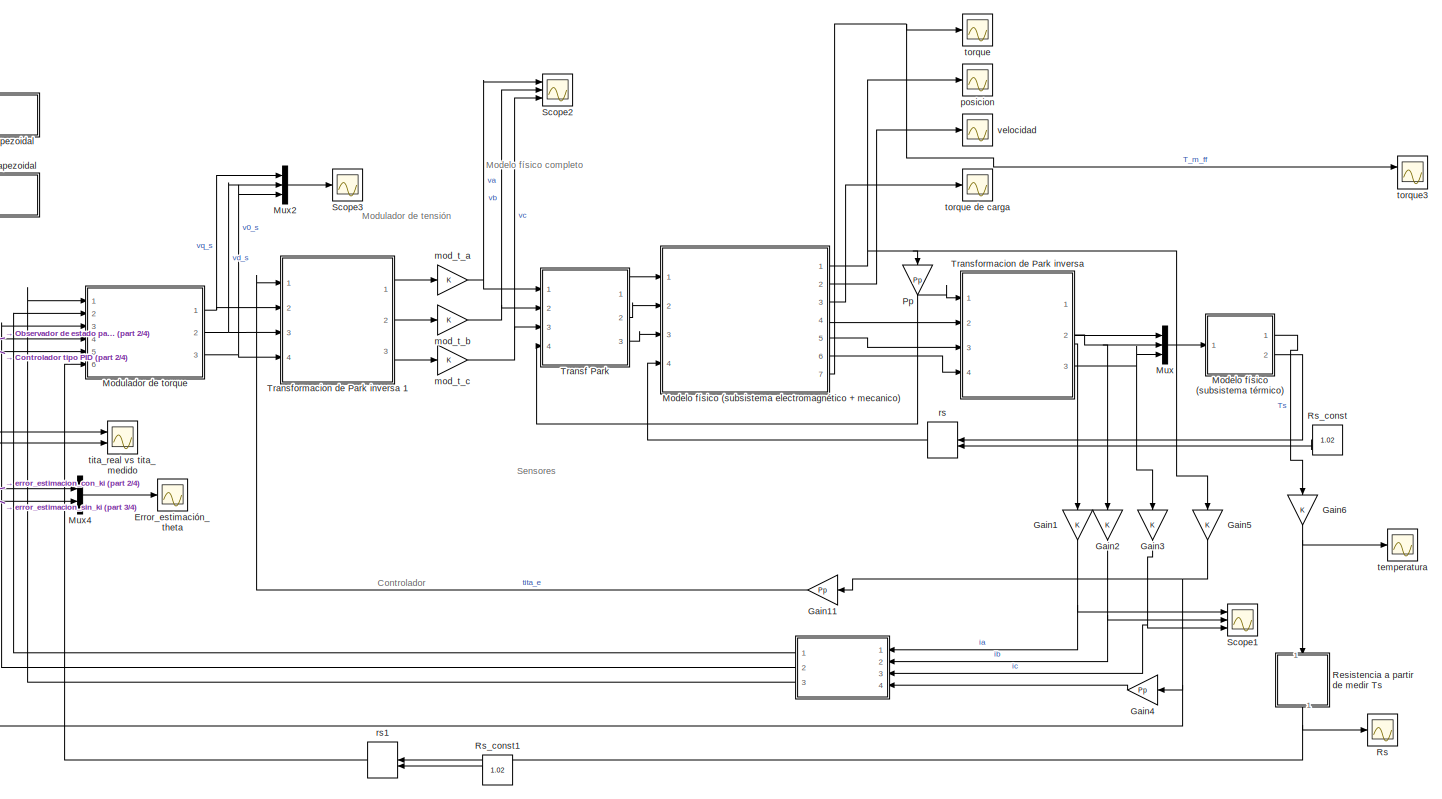
[diagram: root canvas - part 1/4, full width, top band]
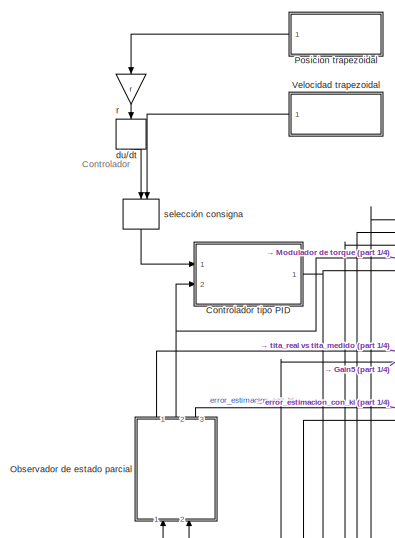
[diagram: root canvas - part 2/4, top left region]
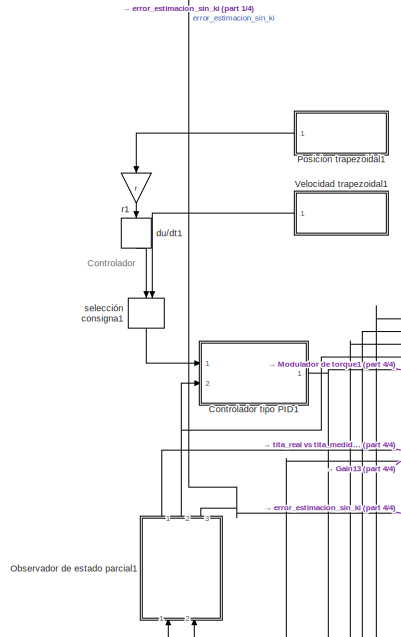
[diagram: root canvas - part 3/4, bottom left region]
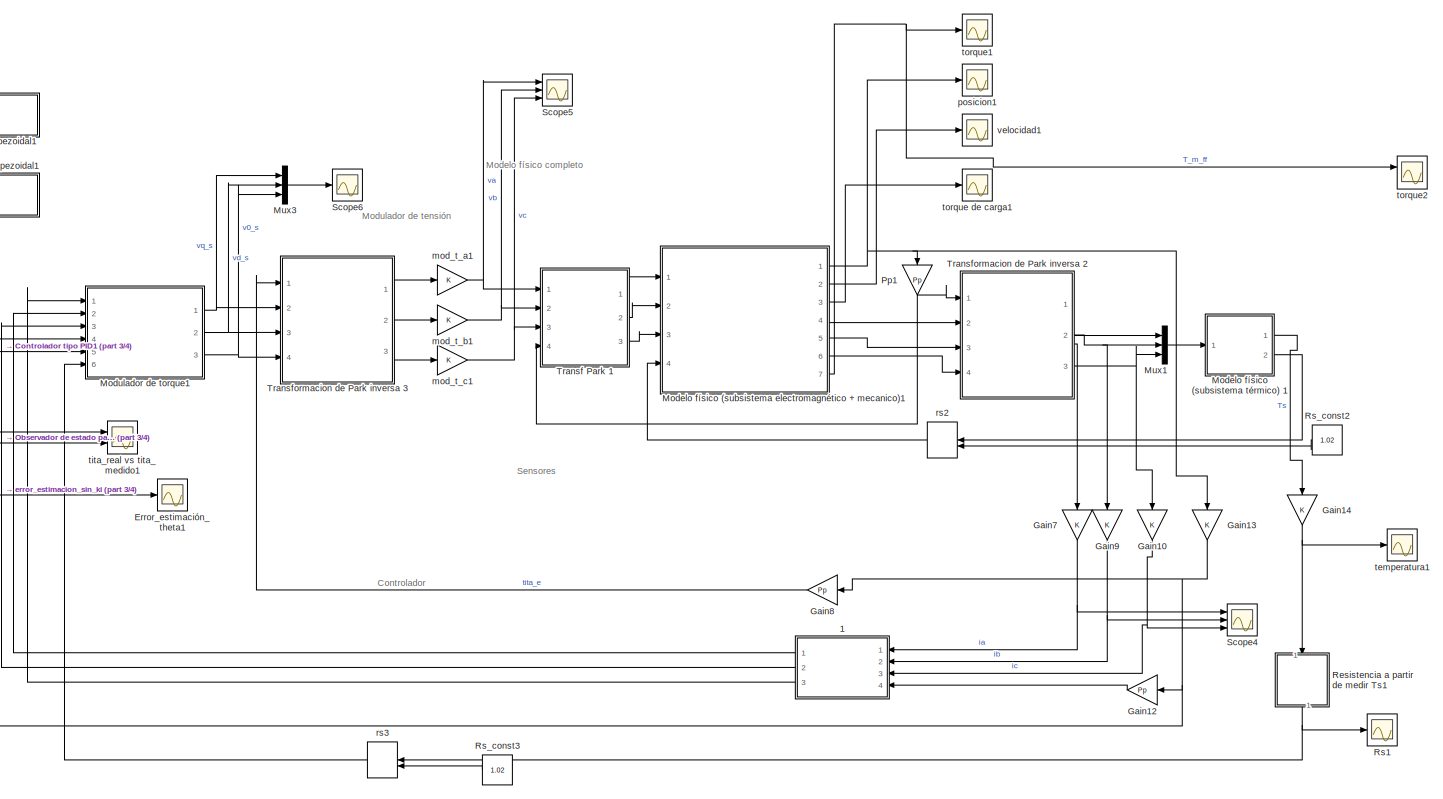
[diagram: root canvas - part 4/4, full width, bottom band]
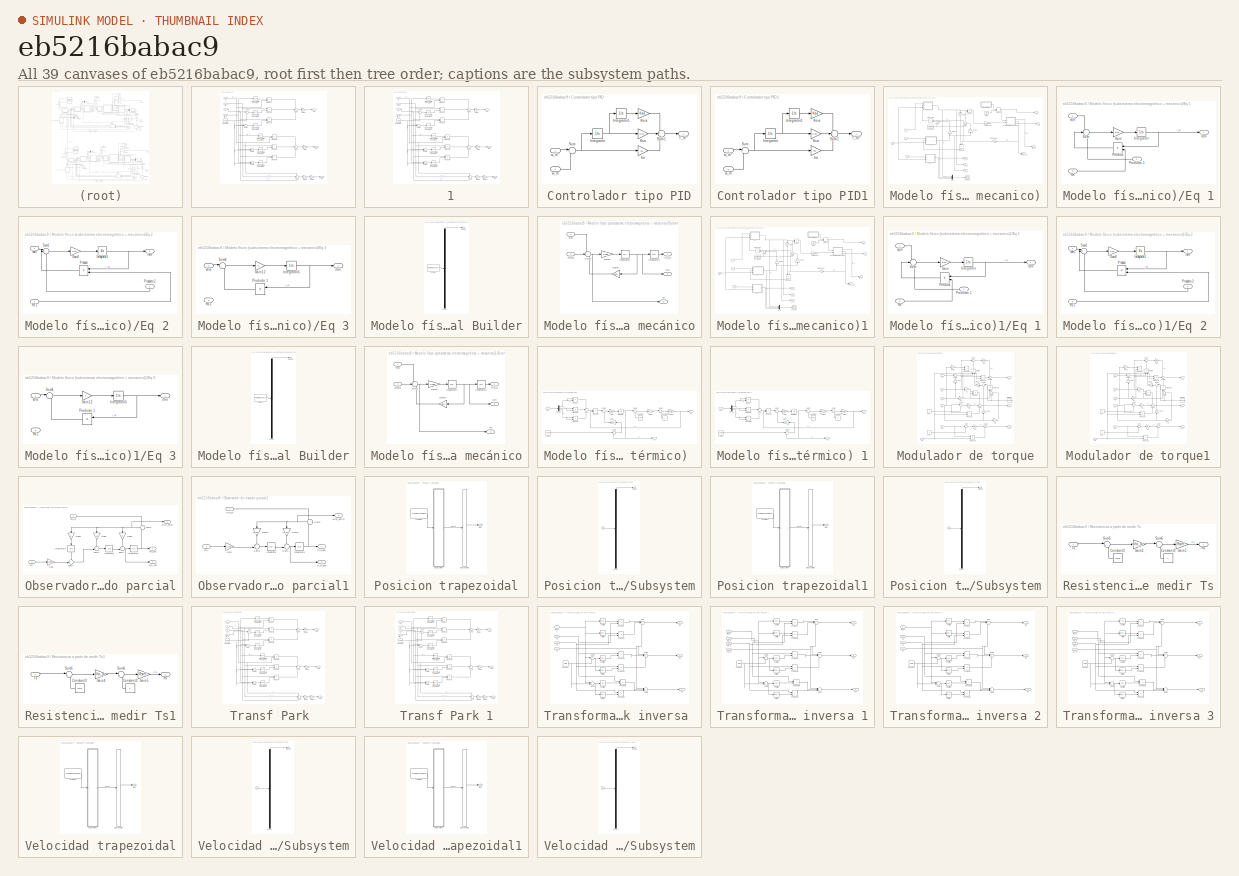
[diagram: thumbnail index - all 39 canvases of the model, root first then tree order]
MODEL slx_eb5216babac9
KIND model
CONFIG AbsTol = auto
CONFIG EnableMultiTasking = off
CONFIG FixedStep = auto
CONFIG MaxStep = 1e-4
CONFIG MinStep = auto
CONFIG RelTol = 1e-3
CONFIG SampleTimeConstraint = Unconstrained
CONFIG Solver = VariableStepAuto
CONFIG SolverName = VariableStepAuto
CONFIG StartTime = 0.0
CONFIG StopTime = 25
BLOCK [SubSystem]  
  Ports = [4, 3]
  RequestExecContextInheritance = off
  Variant = off
BLOCK [Constant]  /Constant
  Value = 2*pi/3
BLOCK [Gain]  /Gain
  Gain = 2/3
  OutDataTypeStr = Inherit: Inherit via internal rule
  ParamDataTypeStr = Inherit: Inherit via internal rule
  SaturateOnIntegerOverflow = off
BLOCK [Gain]  /Gain1
  Gain = 2/3
  OutDataTypeStr = Inherit: Inherit via internal rule
  ParamDataTypeStr = Inherit: Inherit via internal rule
  SaturateOnIntegerOverflow = off
BLOCK [Gain]  /Gain2
  Gain = 1/2
  OutDataTypeStr = Inherit: Inherit via internal rule
  ParamDataTypeStr = Inherit: Inherit via internal rule
  SaturateOnIntegerOverflow = off
BLOCK [Gain]  /Gain3
  Gain = 2/3
  OutDataTypeStr = Inherit: Inherit via internal rule
  ParamDataTypeStr = Inherit: Inherit via internal rule
  SaturateOnIntegerOverflow = off
BLOCK [Product]  /Product
  InputSameDT = off
  OutDataTypeStr = Inherit: Inherit via internal rule
  Ports = [2, 1]
  RndMeth = Floor
  SaturateOnIntegerOverflow = off
BLOCK [Product]  /Product1
  InputSameDT = off
  OutDataTypeStr = Inherit: Inherit via internal rule
  Ports = [2, 1]
  RndMeth = Floor
  SaturateOnIntegerOverflow = off
BLOCK [Product]  /Product2
  InputSameDT = off
  OutDataTypeStr = Inherit: Inherit via internal rule
  Ports = [2, 1]
  RndMeth = Floor
  SaturateOnIntegerOverflow = off
BLOCK [Product]  /Product3
  InputSameDT = off
  OutDataTypeStr = Inherit: Inherit via internal rule
  Ports = [2, 1]
  RndMeth = Floor
  SaturateOnIntegerOverflow = off
BLOCK [Product]  /Product4
  InputSameDT = off
  OutDataTypeStr = Inherit: Inherit via internal rule
  Ports = [2, 1]
  RndMeth = Floor
  SaturateOnIntegerOverflow = off
BLOCK [Product]  /Product5
  InputSameDT = off
  OutDataTypeStr = Inherit: Inherit via internal rule
  Ports = [2, 1]
  RndMeth = Floor
  SaturateOnIntegerOverflow = off
BLOCK [Sum]  /Sum
  IconShape = round
  InputSameDT = off
  Inputs = |+-
  OutDataTypeStr = Inherit: Inherit via internal rule
  Ports = [2, 1]
  SaturateOnIntegerOverflow = off
BLOCK [Sum]  /Sum1
  IconShape = round
  InputSameDT = off
  Inputs = |++
  OutDataTypeStr = Inherit: Inherit via internal rule
  Ports = [2, 1]
  SaturateOnIntegerOverflow = off
BLOCK [Sum]  /Sum2
  IconShape = round
  InputSameDT = off
  Inputs = +++
  OutDataTypeStr = Inherit: Inherit via internal rule
  Ports = [3, 1]
  SaturateOnIntegerOverflow = off
BLOCK [Sum]  /Sum3
  IconShape = round
  InputSameDT = off
  Inputs = |+-
  OutDataTypeStr = Inherit: Inherit via internal rule
  Ports = [2, 1]
  SaturateOnIntegerOverflow = off
BLOCK [Sum]  /Sum4
  IconShape = round
  InputSameDT = off
  Inputs = |++
  OutDataTypeStr = Inherit: Inherit via internal rule
  Ports = [2, 1]
  SaturateOnIntegerOverflow = off
BLOCK [Sum]  /Sum5
  IconShape = round
  InputSameDT = off
  Inputs = +++
  OutDataTypeStr = Inherit: Inherit via internal rule
  Ports = [3, 1]
  SaturateOnIntegerOverflow = off
BLOCK [Sum]  /Sum6
  IconShape = round
  InputSameDT = off
  Inputs = +++
  OutDataTypeStr = Inherit: Inherit via internal rule
  Ports = [3, 1]
  SaturateOnIntegerOverflow = off
BLOCK [Trigonometry]  /Trigonometric Function
  Operator = cos
  Ports = [1, 1]
BLOCK [Trigonometry]  /Trigonometric Function1
  Operator = cos
  Ports = [1, 1]
BLOCK [Trigonometry]  /Trigonometric Function2
  Operator = cos
  Ports = [1, 1]
BLOCK [Trigonometry]  /Trigonometric Function3
  Ports = [1, 1]
BLOCK [Trigonometry]  /Trigonometric Function4
  Ports = [1, 1]
BLOCK [Trigonometry]  /Trigonometric Function5
  Ports = [1, 1]
BLOCK [Outport]  /i0s 
  IconDisplay = Port number
  Port = 3
BLOCK [Inport]  /ia 
  IconDisplay = Port number
BLOCK [Inport]  /ib 
  IconDisplay = Port number
  Port = 2
BLOCK [Inport]  /ic 
  IconDisplay = Port number
  Port = 3
BLOCK [Outport]  /ids 
  IconDisplay = Port number
  Port = 2
BLOCK [Outport]  /iqs
  IconDisplay = Port number
BLOCK [Inport]  /tita_e 
  IconDisplay = Port number
  Port = 4
BLOCK [SubSystem]  1
  Ports = [4, 3]
  RequestExecContextInheritance = off
  Variant = off
BLOCK [Constant]  1/Constant
  Value = 2*pi/3
BLOCK [Gain]  1/Gain
  Gain = 2/3
  OutDataTypeStr = Inherit: Inherit via internal rule
  ParamDataTypeStr = Inherit: Inherit via internal rule
  SaturateOnIntegerOverflow = off
BLOCK [Gain]  1/Gain1
  Gain = 2/3
  OutDataTypeStr = Inherit: Inherit via internal rule
  ParamDataTypeStr = Inherit: Inherit via internal rule
  SaturateOnIntegerOverflow = off
BLOCK [Gain]  1/Gain2
  Gain = 1/2
  OutDataTypeStr = Inherit: Inherit via internal rule
  ParamDataTypeStr = Inherit: Inherit via internal rule
  SaturateOnIntegerOverflow = off
BLOCK [Gain]  1/Gain3
  Gain = 2/3
  OutDataTypeStr = Inherit: Inherit via internal rule
  ParamDataTypeStr = Inherit: Inherit via internal rule
  SaturateOnIntegerOverflow = off
BLOCK [Product]  1/Product
  InputSameDT = off
  OutDataTypeStr = Inherit: Inherit via internal rule
  Ports = [2, 1]
  RndMeth = Floor
  SaturateOnIntegerOverflow = off
BLOCK [Product]  1/Product1
  InputSameDT = off
  OutDataTypeStr = Inherit: Inherit via internal rule
  Ports = [2, 1]
  RndMeth = Floor
  SaturateOnIntegerOverflow = off
BLOCK [Product]  1/Product2
  InputSameDT = off
  OutDataTypeStr = Inherit: Inherit via internal rule
  Ports = [2, 1]
  RndMeth = Floor
  SaturateOnIntegerOverflow = off
BLOCK [Product]  1/Product3
  InputSameDT = off
  OutDataTypeStr = Inherit: Inherit via internal rule
  Ports = [2, 1]
  RndMeth = Floor
  SaturateOnIntegerOverflow = off
BLOCK [Product]  1/Product4
  InputSameDT = off
  OutDataTypeStr = Inherit: Inherit via internal rule
  Ports = [2, 1]
  RndMeth = Floor
  SaturateOnIntegerOverflow = off
BLOCK [Product]  1/Product5
  InputSameDT = off
  OutDataTypeStr = Inherit: Inherit via internal rule
  Ports = [2, 1]
  RndMeth = Floor
  SaturateOnIntegerOverflow = off
BLOCK [Sum]  1/Sum
  IconShape = round
  InputSameDT = off
  Inputs = |+-
  OutDataTypeStr = Inherit: Inherit via internal rule
  Ports = [2, 1]
  SaturateOnIntegerOverflow = off
BLOCK [Sum]  1/Sum1
  IconShape = round
  InputSameDT = off
  Inputs = |++
  OutDataTypeStr = Inherit: Inherit via internal rule
  Ports = [2, 1]
  SaturateOnIntegerOverflow = off
BLOCK [Sum]  1/Sum2
  IconShape = round
  InputSameDT = off
  Inputs = +++
  OutDataTypeStr = Inherit: Inherit via internal rule
  Ports = [3, 1]
  SaturateOnIntegerOverflow = off
BLOCK [Sum]  1/Sum3
  IconShape = round
  InputSameDT = off
  Inputs = |+-
  OutDataTypeStr = Inherit: Inherit via internal rule
  Ports = [2, 1]
  SaturateOnIntegerOverflow = off
BLOCK [Sum]  1/Sum4
  IconShape = round
  InputSameDT = off
  Inputs = |++
  OutDataTypeStr = Inherit: Inherit via internal rule
  Ports = [2, 1]
  SaturateOnIntegerOverflow = off
BLOCK [Sum]  1/Sum5
  IconShape = round
  InputSameDT = off
  Inputs = +++
  OutDataTypeStr = Inherit: Inherit via internal rule
  Ports = [3, 1]
  SaturateOnIntegerOverflow = off
BLOCK [Sum]  1/Sum6
  IconShape = round
  InputSameDT = off
  Inputs = +++
  OutDataTypeStr = Inherit: Inherit via internal rule
  Ports = [3, 1]
  SaturateOnIntegerOverflow = off
BLOCK [Trigonometry]  1/Trigonometric Function
  Operator = cos
  Ports = [1, 1]
BLOCK [Trigonometry]  1/Trigonometric Function1
  Operator = cos
  Ports = [1, 1]
BLOCK [Trigonometry]  1/Trigonometric Function2
  Operator = cos
  Ports = [1, 1]
BLOCK [Trigonometry]  1/Trigonometric Function3
  Ports = [1, 1]
BLOCK [Trigonometry]  1/Trigonometric Function4
  Ports = [1, 1]
BLOCK [Trigonometry]  1/Trigonometric Function5
  Ports = [1, 1]
BLOCK [Outport]  1/i0s 
  IconDisplay = Port number
  Port = 3
BLOCK [Inport]  1/ia 
  IconDisplay = Port number
BLOCK [Inport]  1/ib 
  IconDisplay = Port number
  Port = 2
BLOCK [Inport]  1/ic 
  IconDisplay = Port number
  Port = 3
BLOCK [Outport]  1/ids 
  IconDisplay = Port number
  Port = 2
BLOCK [Outport]  1/iqs
  IconDisplay = Port number
BLOCK [Inport]  1/tita_e 
  IconDisplay = Port number
  Port = 4
BLOCK [SubSystem] Controlador tipo PID
  Ports = [2, 1]
  RequestExecContextInheritance = off
  Variant = off
BLOCK [Integrator] Controlador tipo PID/Integrator
  Ports = [1, 1]
BLOCK [Integrator] Controlador tipo PID/Integrator1
  Ports = [1, 1]
BLOCK [Gain] Controlador tipo PID/Ksa
  Gain = Ksa
  OutDataTypeStr = Inherit: Inherit via internal rule
  ParamDataTypeStr = Inherit: Inherit via internal rule
  SaturateOnIntegerOverflow = off
BLOCK [Gain] Controlador tipo PID/Ksia
  Gain = Ksia
  OutDataTypeStr = Inherit: Inherit via internal rule
  ParamDataTypeStr = Inherit: Inherit via internal rule
  SaturateOnIntegerOverflow = off
BLOCK [Sum] Controlador tipo PID/Sum
  IconShape = round
  InputSameDT = off
  Inputs = |+-
  OutDataTypeStr = Inherit: Inherit via internal rule
  Ports = [2, 1]
  SaturateOnIntegerOverflow = off
BLOCK [Sum] Controlador tipo PID/Sum1
  IconShape = round
  InputSameDT = off
  Inputs = +++
  OutDataTypeStr = Inherit: Inherit via internal rule
  Ports = [3, 1]
  SaturateOnIntegerOverflow = off
BLOCK [Outport] Controlador tipo PID/T_m*'
  IconDisplay = Port number
BLOCK [Gain] Controlador tipo PID/ba
  Gain = ba
  OutDataTypeStr = Inherit: Inherit via internal rule
  ParamDataTypeStr = Inherit: Inherit via internal rule
  SaturateOnIntegerOverflow = off
BLOCK [Inport] Controlador tipo PID/w_m
  IconDisplay = Port number
  Port = 2
BLOCK [Inport] Controlador tipo PID/w_m*
  IconDisplay = Port number
BLOCK [SubSystem] Controlador tipo PID1
  Ports = [2, 1]
  RequestExecContextInheritance = off
  Variant = off
BLOCK [Integrator] Controlador tipo PID1/Integrator
  Ports = [1, 1]
BLOCK [Integrator] Controlador tipo PID1/Integrator1
  Ports = [1, 1]
BLOCK [Gain] Controlador tipo PID1/Ksa
  Gain = Ksa
  OutDataTypeStr = Inherit: Inherit via internal rule
  ParamDataTypeStr = Inherit: Inherit via internal rule
  SaturateOnIntegerOverflow = off
BLOCK [Gain] Controlador tipo PID1/Ksia
  Gain = Ksia
  OutDataTypeStr = Inherit: Inherit via internal rule
  ParamDataTypeStr = Inherit: Inherit via internal rule
  SaturateOnIntegerOverflow = off
BLOCK [Sum] Controlador tipo PID1/Sum
  IconShape = round
  InputSameDT = off
  Inputs = |+-
  OutDataTypeStr = Inherit: Inherit via internal rule
  Ports = [2, 1]
  SaturateOnIntegerOverflow = off
BLOCK [Sum] Controlador tipo PID1/Sum1
  IconShape = round
  InputSameDT = off
  Inputs = +++
  OutDataTypeStr = Inherit: Inherit via internal rule
  Ports = [3, 1]
  SaturateOnIntegerOverflow = off
BLOCK [Outport] Controlador tipo PID1/T_m*'
  IconDisplay = Port number
BLOCK [Gain] Controlador tipo PID1/ba
  Gain = ba
  OutDataTypeStr = Inherit: Inherit via internal rule
  ParamDataTypeStr = Inherit: Inherit via internal rule
  SaturateOnIntegerOverflow = off
BLOCK [Inport] Controlador tipo PID1/w_m
  IconDisplay = Port number
  Port = 2
BLOCK [Inport] Controlador tipo PID1/w_m*
  IconDisplay = Port number
BLOCK [Scope] Error_estimación_theta
  NumInputPorts = 1
  Ports = [1]
  ScopeSpecificationString = Simulink.scopes.TimeScopeBlockCfg('CurrentConfiguration', extmgr.ConfigurationSet(extmgr.Configuration('Core','General UI',true,'FigureColor',[0.247058823529412 0.247058823529412 0.247058823529412],'DisplayFullSourceName',true),extmgr.Configuration('Core','Source UI',true),extmgr.Configuration('Sources','WiredSimulink',true,'DataLoggingVariableName','ScopeData2'),extmgr.Configuration('Visuals','Ti...<+1705ch>
BLOCK [Scope] Error_estimación_theta1
  NumInputPorts = 1
  Ports = [1]
  ScopeSpecificationString = Simulink.scopes.TimeScopeBlockCfg('CurrentConfiguration', extmgr.ConfigurationSet(extmgr.Configuration('Core','General UI',true,'FigureColor',[0.247058823529412 0.247058823529412 0.247058823529412],'DisplayFullSourceName',true),extmgr.Configuration('Core','Source UI',true),extmgr.Configuration('Sources','WiredSimulink',true,'DataLoggingVariableName','ScopeData1'),extmgr.Configuration('Visuals','Ti...<+1698ch>
BLOCK [Gain] Gain1
  OutDataTypeStr = Inherit: Inherit via internal rule
  ParamDataTypeStr = Inherit: Inherit via internal rule
  SaturateOnIntegerOverflow = off
BLOCK [Gain] Gain10
  OutDataTypeStr = Inherit: Inherit via internal rule
  ParamDataTypeStr = Inherit: Inherit via internal rule
  SaturateOnIntegerOverflow = off
BLOCK [Gain] Gain11
  Gain = Pp
  OutDataTypeStr = Inherit: Inherit via internal rule
  ParamDataTypeStr = Inherit: Inherit via internal rule
  SaturateOnIntegerOverflow = off
BLOCK [Gain] Gain12
  Gain = Pp
  OutDataTypeStr = Inherit: Inherit via internal rule
  ParamDataTypeStr = Inherit: Inherit via internal rule
  SaturateOnIntegerOverflow = off
BLOCK [Gain] Gain13
  OutDataTypeStr = Inherit: Inherit via internal rule
  ParamDataTypeStr = Inherit: Inherit via internal rule
  SaturateOnIntegerOverflow = off
BLOCK [Gain] Gain14
  OutDataTypeStr = Inherit: Inherit via internal rule
  ParamDataTypeStr = Inherit: Inherit via internal rule
  SaturateOnIntegerOverflow = off
BLOCK [Gain] Gain2
  OutDataTypeStr = Inherit: Inherit via internal rule
  ParamDataTypeStr = Inherit: Inherit via internal rule
  SaturateOnIntegerOverflow = off
BLOCK [Gain] Gain3
  OutDataTypeStr = Inherit: Inherit via internal rule
  ParamDataTypeStr = Inherit: Inherit via internal rule
  SaturateOnIntegerOverflow = off
BLOCK [Gain] Gain4
  Gain = Pp
  OutDataTypeStr = Inherit: Inherit via internal rule
  ParamDataTypeStr = Inherit: Inherit via internal rule
  SaturateOnIntegerOverflow = off
BLOCK [Gain] Gain5
  OutDataTypeStr = Inherit: Inherit via internal rule
  ParamDataTypeStr = Inherit: Inherit via internal rule
  SaturateOnIntegerOverflow = off
BLOCK [Gain] Gain6
  OutDataTypeStr = Inherit: Inherit via internal rule
  ParamDataTypeStr = Inherit: Inherit via internal rule
  SaturateOnIntegerOverflow = off
BLOCK [Gain] Gain7
  OutDataTypeStr = Inherit: Inherit via internal rule
  ParamDataTypeStr = Inherit: Inherit via internal rule
  SaturateOnIntegerOverflow = off
BLOCK [Gain] Gain8
  Gain = Pp
  OutDataTypeStr = Inherit: Inherit via internal rule
  ParamDataTypeStr = Inherit: Inherit via internal rule
  SaturateOnIntegerOverflow = off
BLOCK [Gain] Gain9
  OutDataTypeStr = Inherit: Inherit via internal rule
  ParamDataTypeStr = Inherit: Inherit via internal rule
  SaturateOnIntegerOverflow = off
BLOCK [SubSystem] Modelo físico (subsistema electromagnético + mecanico)
  Ports = [4, 7]
  RequestExecContextInheritance = off
  Variant = off
BLOCK [Constant] Modelo físico (subsistema electromagnético + mecanico)/Constant
  Value = LambdaM
BLOCK [SubSystem] Modelo físico (subsistema electromagnético + mecanico)/Eq 1
  Ports = [3, 1]
  RequestExecContextInheritance = off
  Variant = off
BLOCK [Gain] Modelo físico (subsistema electromagnético + mecanico)/Eq 1/Gain
  Gain = 1/Lq
  OutDataTypeStr = Inherit: Inherit via internal rule
  ParamDataTypeStr = Inherit: Inherit via internal rule
  SaturateOnIntegerOverflow = off
BLOCK [Integrator] Modelo físico (subsistema electromagnético + mecanico)/Eq 1/Integrator
  Ports = [1, 1]
BLOCK [Product] Modelo físico (subsistema electromagnético + mecanico)/Eq 1/Product
  InputSameDT = off
  OutDataTypeStr = Inherit: Inherit via internal rule
  Ports = [2, 1]
  RndMeth = Floor
  SaturateOnIntegerOverflow = off
BLOCK [Inport] Modelo físico (subsistema electromagnético + mecanico)/Eq 1/Producto 1 
  IconDisplay = Port number
  Port = 2
BLOCK [Inport] Modelo físico (subsistema electromagnético + mecanico)/Eq 1/Rs
  IconDisplay = Port number
  Port = 3
BLOCK [Sum] Modelo físico (subsistema electromagnético + mecanico)/Eq 1/Sum
  IconShape = round
  InputSameDT = off
  Inputs = +--
  OutDataTypeStr = Inherit: Inherit via internal rule
  Ports = [3, 1]
  SaturateOnIntegerOverflow = off
BLOCK [Outport] Modelo físico (subsistema electromagnético + mecanico)/Eq 1/iqrs 
  IconDisplay = Port number
BLOCK [Inport] Modelo físico (subsistema electromagnético + mecanico)/Eq 1/vqrs
  IconDisplay = Port number
BLOCK [SubSystem] Modelo físico (subsistema electromagnético + mecanico)/Eq 2 
  Ports = [3, 1]
  RequestExecContextInheritance = off
  Variant = off
BLOCK [Gain] Modelo físico (subsistema electromagnético + mecanico)/Eq 2 /Gain2
  Gain = 1/Ld
  OutDataTypeStr = Inherit: Inherit via internal rule
  ParamDataTypeStr = Inherit: Inherit via internal rule
  SaturateOnIntegerOverflow = off
BLOCK [Integrator] Modelo físico (subsistema electromagnético + mecanico)/Eq 2 /Integrator1
  Ports = [1, 1]
BLOCK [Product] Modelo físico (subsistema electromagnético + mecanico)/Eq 2 /Product
  InputSameDT = off
  OutDataTypeStr = Inherit: Inherit via internal rule
  Ports = [2, 1]
  RndMeth = Floor
  SaturateOnIntegerOverflow = off
BLOCK [Inport] Modelo físico (subsistema electromagnético + mecanico)/Eq 2 /Producto 2 
  IconDisplay = Port number
  Port = 2
BLOCK [Inport] Modelo físico (subsistema electromagnético + mecanico)/Eq 2 /Rs 1
  IconDisplay = Port number
  Port = 3
BLOCK [Sum] Modelo físico (subsistema electromagnético + mecanico)/Eq 2 /Sum1
  IconShape = round
  InputSameDT = off
  Inputs = |+-+
  OutDataTypeStr = Inherit: Inherit via internal rule
  Ports = [3, 1]
  SaturateOnIntegerOverflow = off
BLOCK [Outport] Modelo físico (subsistema electromagnético + mecanico)/Eq 2 /idrs 
  IconDisplay = Port number
BLOCK [Inport] Modelo físico (subsistema electromagnético + mecanico)/Eq 2 /vdrs 
  IconDisplay = Port number
BLOCK [SubSystem] Modelo físico (subsistema electromagnético + mecanico)/Eq 3
  Ports = [2, 1]
  RequestExecContextInheritance = off
  Variant = off
BLOCK [Gain] Modelo físico (subsistema electromagnético + mecanico)/Eq 3/Gain12
  OutDataTypeStr = Inherit: Inherit via internal rule
  ParamDataTypeStr = Inherit: Inherit via internal rule
  SaturateOnIntegerOverflow = off
BLOCK [Integrator] Modelo físico (subsistema electromagnético + mecanico)/Eq 3/Integrator5
  Ports = [1, 1]
BLOCK [Product] Modelo físico (subsistema electromagnético + mecanico)/Eq 3/Producto 1
  InputSameDT = off
  OutDataTypeStr = Inherit: Inherit via internal rule
  Ports = [2, 1]
  RndMeth = Floor
  SaturateOnIntegerOverflow = off
BLOCK [Inport] Modelo físico (subsistema electromagnético + mecanico)/Eq 3/Rs 1
  IconDisplay = Port number
  Port = 2
BLOCK [Sum] Modelo físico (subsistema electromagnético + mecanico)/Eq 3/Sum4
  IconShape = round
  InputSameDT = off
  Inputs = |++
  OutDataTypeStr = Inherit: Inherit via internal rule
  Ports = [2, 1]
  SaturateOnIntegerOverflow = off
BLOCK [Outport] Modelo físico (subsistema electromagnético + mecanico)/Eq 3/i0rs 
  IconDisplay = Port number
BLOCK [Inport] Modelo físico (subsistema electromagnético + mecanico)/Eq 3/v0rs 
  IconDisplay = Port number
BLOCK [Gain] Modelo físico (subsistema electromagnético + mecanico)/Gain10
  Gain = Ld
  OutDataTypeStr = Inherit: Inherit via internal rule
  ParamDataTypeStr = Inherit: Inherit via internal rule
  SaturateOnIntegerOverflow = off
BLOCK [Gain] Modelo físico (subsistema electromagnético + mecanico)/Gain3
  Gain = Ld-Lq
  OutDataTypeStr = Inherit: Inherit via internal rule
  ParamDataTypeStr = Inherit: Inherit via internal rule
  SaturateOnIntegerOverflow = off
BLOCK [Gain] Modelo físico (subsistema electromagnético + mecanico)/Gain4
  Gain = Lq
  OutDataTypeStr = Inherit: Inherit via internal rule
  ParamDataTypeStr = Inherit: Inherit via internal rule
  SaturateOnIntegerOverflow = off
BLOCK [Mux] Modelo físico (subsistema electromagnético + mecanico)/Mux
  DisplayOption = bar
  Inputs = 3
  Ports = [3, 1]
BLOCK [Gain] Modelo físico (subsistema electromagnético + mecanico)/Par de polos
  Gain = Pp
  OutDataTypeStr = Inherit: Inherit via internal rule
  ParamDataTypeStr = Inherit: Inherit via internal rule
  SaturateOnIntegerOverflow = off
BLOCK [Product] Modelo físico (subsistema electromagnético + mecanico)/Product
  InputSameDT = off
  OutDataTypeStr = Inherit: Inherit via internal rule
  Ports = [2, 1]
  RndMeth = Floor
  SaturateOnIntegerOverflow = off
BLOCK [Product] Modelo físico (subsistema electromagnético + mecanico)/Product2
  InputSameDT = off
  OutDataTypeStr = Inherit: Inherit via internal rule
  Ports = [2, 1]
  RndMeth = Floor
  SaturateOnIntegerOverflow = off
BLOCK [Product] Modelo físico (subsistema electromagnético + mecanico)/Producto 1
  InputSameDT = off
  OutDataTypeStr = Inherit: Inherit via internal rule
  Ports = [2, 1]
  RndMeth = Floor
  SaturateOnIntegerOverflow = off
BLOCK [Inport] Modelo físico (subsistema electromagnético + mecanico)/Rs
  IconDisplay = Port number
  Port = 4
BLOCK [Scope] Modelo físico (subsistema electromagnético + mecanico)/Scope1
  NumInputPorts = 1
  Ports = [1]
  ScopeSpecificationString = Simulink.scopes.TimeScopeBlockCfg('CurrentConfiguration', extmgr.ConfigurationSet(extmgr.Configuration('Core','General UI',true),extmgr.Configuration('Core','Source UI',true),extmgr.Configuration('Sources','WiredSimulink',true,'DataLoggingVariableName','ScopeData5'),extmgr.Configuration('Visuals','Time Domain',true,'SerializedDisplays',{struct('MinYLimReal','-0.05395','MaxYLimReal','0.48552','YLab...<+1831ch>
BLOCK [SubSystem] Modelo físico (subsistema electromagnético + mecanico)/Signal Builder
  ClipboardFcn = sigbuilder_block('clipboard');
  CloseFcn = sigbuilder_block('close');
  ContinueFcn = sigbuilder_block('continue');
  CopyFcn = sigbuilder_block('copy');
  DeleteFcn = sigbuilder_block('delete');
  LoadFcn = sigbuilder_block('load');
  MaskHideContents = on
  ModelCloseFcn = sigbuilder_block('modelClose');
  NameChangeFcn = sigbuilder_block('namechange');
  OpenFcn = sigbuilder_block('open',[6 30 1012.5 447.75 ]);
  PauseFcn = sigbuilder_block('pause');
  Ports = [0, 1]
  PreSaveFcn = sigbuilder_block('preSave');
  RequestExecContextInheritance = off
  StartFcn = sigbuilder_block('start');
  StopFcn = sigbuilder_block('stop');
  Tag = STV Subsys
  Variant = off
BLOCK [Demux] Modelo físico (subsistema electromagnético + mecanico)/Signal Builder/Demux
  Outputs = 1
  Ports = [1, 1]
  Tag = STV Demux
BLOCK [FromWorkspace] Modelo físico (subsistema electromagnético + mecanico)/Signal Builder/FromWs
  SampleTime = 0
  Tag = STV FromWs
  VariableName = tuvar
  ZeroCross = on
BLOCK [Outport] Modelo físico (subsistema electromagnético + mecanico)/Signal Builder/Signal 2
  IconDisplay = Port number
  Tag = STV Outport
BLOCK [Step] Modelo físico (subsistema electromagnético + mecanico)/Step
  After = Tleq
  SampleTime = 0
  Time = 0.3
BLOCK [SubSystem] Modelo físico (subsistema electromagnético + mecanico)/Subsistema mecánico
  Ports = [2, 3]
  RequestExecContextInheritance = off
  Variant = off
BLOCK [Gain] Modelo físico (subsistema electromagnético + mecanico)/Subsistema mecánico/Gain6
  Gain = 1/Jeq
  OutDataTypeStr = Inherit: Inherit via internal rule
  ParamDataTypeStr = Inherit: Inherit via internal rule
  SaturateOnIntegerOverflow = off
BLOCK [Gain] Modelo físico (subsistema electromagnético + mecanico)/Subsistema mecánico/Gain8
  Gain = beq
  OutDataTypeStr = Inherit: Inherit via internal rule
  ParamDataTypeStr = Inherit: Inherit via internal rule
  SaturateOnIntegerOverflow = off
BLOCK [Integrator] Modelo físico (subsistema electromagnético + mecanico)/Subsistema mecánico/Integrator3
  Ports = [1, 1]
BLOCK [Integrator] Modelo físico (subsistema electromagnético + mecanico)/Subsistema mecánico/Integrator4
  Ports = [1, 1]
BLOCK [Sum] Modelo físico (subsistema electromagnético + mecanico)/Subsistema mecánico/Sum3
  IconShape = round
  InputSameDT = off
  Inputs = -+-
  OutDataTypeStr = Inherit: Inherit via internal rule
  Ports = [3, 1]
  SaturateOnIntegerOverflow = off
BLOCK [Inport] Modelo físico (subsistema electromagnético + mecanico)/Subsistema mecánico/Tleq 
  IconDisplay = Port number
BLOCK [Outport] Modelo físico (subsistema electromagnético + mecanico)/Subsistema mecánico/Tm
  IconDisplay = Port number
  Port = 3
BLOCK [Inport] Modelo físico (subsistema electromagnético + mecanico)/Subsistema mecánico/Tmotor 
  IconDisplay = Port number
  Port = 2
BLOCK [Outport] Modelo físico (subsistema electromagnético + mecanico)/Subsistema mecánico/tita_m 
  IconDisplay = Port number
BLOCK [Outport] Modelo físico (subsistema electromagnético + mecanico)/Subsistema mecánico/wm 
  IconDisplay = Port number
  Port = 2
BLOCK [Sum] Modelo físico (subsistema electromagnético + mecanico)/Sum2
  IconShape = round
  InputSameDT = off
  Inputs = |++
  OutDataTypeStr = Inherit: Inherit via internal rule
  Ports = [2, 1]
  SaturateOnIntegerOverflow = off
BLOCK [Sum] Modelo físico (subsistema electromagnético + mecanico)/Sum5
  IconShape = round
  InputSameDT = off
  Inputs = |++
  OutDataTypeStr = Inherit: Inherit via internal rule
  Ports = [2, 1]
  SaturateOnIntegerOverflow = off
BLOCK [Outport] Modelo físico (subsistema electromagnético + mecanico)/Tleq
  IconDisplay = Port number
  Port = 3
BLOCK [Outport] Modelo físico (subsistema electromagnético + mecanico)/Tm
  IconDisplay = Port number
  Port = 7
BLOCK [Gain] Modelo físico (subsistema electromagnético + mecanico)/Torque em 
  Gain = 3*Pp/2
  OutDataTypeStr = Inherit: Inherit via internal rule
  ParamDataTypeStr = Inherit: Inherit via internal rule
  SaturateOnIntegerOverflow = off
BLOCK [Inport] Modelo físico (subsistema electromagnético + mecanico)/V_0
  IconDisplay = Port number
  Port = 3
BLOCK [Inport] Modelo físico (subsistema electromagnético + mecanico)/V_d
  IconDisplay = Port number
  Port = 2
BLOCK [Inport] Modelo físico (subsistema electromagnético + mecanico)/V_q
  IconDisplay = Port number
BLOCK [Outport] Modelo físico (subsistema electromagnético + mecanico)/i_0_s 
  IconDisplay = Port number
  Port = 6
BLOCK [Outport] Modelo físico (subsistema electromagnético + mecanico)/i_d_s 
  IconDisplay = Port number
  Port = 5
BLOCK [Outport] Modelo físico (subsistema electromagnético + mecanico)/i_q_s 
  IconDisplay = Port number
  Port = 4
BLOCK [Outport] Modelo físico (subsistema electromagnético + mecanico)/omega_m 
  IconDisplay = Port number
  Port = 2
BLOCK [ManualSwitch] Modelo físico (subsistema electromagnético + mecanico)/switch 0
  CurrentSetting = 0
BLOCK [Outport] Modelo físico (subsistema electromagnético + mecanico)/tita_m 
  IconDisplay = Port number
BLOCK [SubSystem] Modelo físico (subsistema electromagnético + mecanico)1
  Ports = [4, 7]
  RequestExecContextInheritance = off
  Variant = off
BLOCK [Constant] Modelo físico (subsistema electromagnético + mecanico)1/Constant
  Value = LambdaM
BLOCK [SubSystem] Modelo físico (subsistema electromagnético + mecanico)1/Eq 1
  Ports = [3, 1]
  RequestExecContextInheritance = off
  Variant = off
BLOCK [Gain] Modelo físico (subsistema electromagnético + mecanico)1/Eq 1/Gain
  Gain = 1/Lq
  OutDataTypeStr = Inherit: Inherit via internal rule
  ParamDataTypeStr = Inherit: Inherit via internal rule
  SaturateOnIntegerOverflow = off
BLOCK [Integrator] Modelo físico (subsistema electromagnético + mecanico)1/Eq 1/Integrator
  Ports = [1, 1]
BLOCK [Product] Modelo físico (subsistema electromagnético + mecanico)1/Eq 1/Product
  InputSameDT = off
  OutDataTypeStr = Inherit: Inherit via internal rule
  Ports = [2, 1]
  RndMeth = Floor
  SaturateOnIntegerOverflow = off
BLOCK [Inport] Modelo físico (subsistema electromagnético + mecanico)1/Eq 1/Producto 1 
  IconDisplay = Port number
  Port = 2
BLOCK [Inport] Modelo físico (subsistema electromagnético + mecanico)1/Eq 1/Rs
  IconDisplay = Port number
  Port = 3
BLOCK [Sum] Modelo físico (subsistema electromagnético + mecanico)1/Eq 1/Sum
  IconShape = round
  InputSameDT = off
  Inputs = +--
  OutDataTypeStr = Inherit: Inherit via internal rule
  Ports = [3, 1]
  SaturateOnIntegerOverflow = off
BLOCK [Outport] Modelo físico (subsistema electromagnético + mecanico)1/Eq 1/iqrs 
  IconDisplay = Port number
BLOCK [Inport] Modelo físico (subsistema electromagnético + mecanico)1/Eq 1/vqrs
  IconDisplay = Port number
BLOCK [SubSystem] Modelo físico (subsistema electromagnético + mecanico)1/Eq 2 
  Ports = [3, 1]
  RequestExecContextInheritance = off
  Variant = off
BLOCK [Gain] Modelo físico (subsistema electromagnético + mecanico)1/Eq 2 /Gain2
  Gain = 1/Ld
  OutDataTypeStr = Inherit: Inherit via internal rule
  ParamDataTypeStr = Inherit: Inherit via internal rule
  SaturateOnIntegerOverflow = off
BLOCK [Integrator] Modelo físico (subsistema electromagnético + mecanico)1/Eq 2 /Integrator1
  Ports = [1, 1]
BLOCK [Product] Modelo físico (subsistema electromagnético + mecanico)1/Eq 2 /Product
  InputSameDT = off
  OutDataTypeStr = Inherit: Inherit via internal rule
  Ports = [2, 1]
  RndMeth = Floor
  SaturateOnIntegerOverflow = off
BLOCK [Inport] Modelo físico (subsistema electromagnético + mecanico)1/Eq 2 /Producto 2 
  IconDisplay = Port number
  Port = 2
BLOCK [Inport] Modelo físico (subsistema electromagnético + mecanico)1/Eq 2 /Rs 1
  IconDisplay = Port number
  Port = 3
BLOCK [Sum] Modelo físico (subsistema electromagnético + mecanico)1/Eq 2 /Sum1
  IconShape = round
  InputSameDT = off
  Inputs = |+-+
  OutDataTypeStr = Inherit: Inherit via internal rule
  Ports = [3, 1]
  SaturateOnIntegerOverflow = off
BLOCK [Outport] Modelo físico (subsistema electromagnético + mecanico)1/Eq 2 /idrs 
  IconDisplay = Port number
BLOCK [Inport] Modelo físico (subsistema electromagnético + mecanico)1/Eq 2 /vdrs 
  IconDisplay = Port number
BLOCK [SubSystem] Modelo físico (subsistema electromagnético + mecanico)1/Eq 3
  Ports = [2, 1]
  RequestExecContextInheritance = off
  Variant = off
BLOCK [Gain] Modelo físico (subsistema electromagnético + mecanico)1/Eq 3/Gain12
  OutDataTypeStr = Inherit: Inherit via internal rule
  ParamDataTypeStr = Inherit: Inherit via internal rule
  SaturateOnIntegerOverflow = off
BLOCK [Integrator] Modelo físico (subsistema electromagnético + mecanico)1/Eq 3/Integrator5
  Ports = [1, 1]
BLOCK [Product] Modelo físico (subsistema electromagnético + mecanico)1/Eq 3/Producto 1
  InputSameDT = off
  OutDataTypeStr = Inherit: Inherit via internal rule
  Ports = [2, 1]
  RndMeth = Floor
  SaturateOnIntegerOverflow = off
BLOCK [Inport] Modelo físico (subsistema electromagnético + mecanico)1/Eq 3/Rs 1
  IconDisplay = Port number
  Port = 2
BLOCK [Sum] Modelo físico (subsistema electromagnético + mecanico)1/Eq 3/Sum4
  IconShape = round
  InputSameDT = off
  Inputs = |++
  OutDataTypeStr = Inherit: Inherit via internal rule
  Ports = [2, 1]
  SaturateOnIntegerOverflow = off
BLOCK [Outport] Modelo físico (subsistema electromagnético + mecanico)1/Eq 3/i0rs 
  IconDisplay = Port number
BLOCK [Inport] Modelo físico (subsistema electromagnético + mecanico)1/Eq 3/v0rs 
  IconDisplay = Port number
BLOCK [Gain] Modelo físico (subsistema electromagnético + mecanico)1/Gain10
  Gain = Ld
  OutDataTypeStr = Inherit: Inherit via internal rule
  ParamDataTypeStr = Inherit: Inherit via internal rule
  SaturateOnIntegerOverflow = off
BLOCK [Gain] Modelo físico (subsistema electromagnético + mecanico)1/Gain3
  Gain = Ld-Lq
  OutDataTypeStr = Inherit: Inherit via internal rule
  ParamDataTypeStr = Inherit: Inherit via internal rule
  SaturateOnIntegerOverflow = off
BLOCK [Gain] Modelo físico (subsistema electromagnético + mecanico)1/Gain4
  Gain = Lq
  OutDataTypeStr = Inherit: Inherit via internal rule
  ParamDataTypeStr = Inherit: Inherit via internal rule
  SaturateOnIntegerOverflow = off
BLOCK [Mux] Modelo físico (subsistema electromagnético + mecanico)1/Mux
  DisplayOption = bar
  Inputs = 3
  Ports = [3, 1]
BLOCK [Gain] Modelo físico (subsistema electromagnético + mecanico)1/Par de polos
  Gain = Pp
  OutDataTypeStr = Inherit: Inherit via internal rule
  ParamDataTypeStr = Inherit: Inherit via internal rule
  SaturateOnIntegerOverflow = off
BLOCK [Product] Modelo físico (subsistema electromagnético + mecanico)1/Product
  InputSameDT = off
  OutDataTypeStr = Inherit: Inherit via internal rule
  Ports = [2, 1]
  RndMeth = Floor
  SaturateOnIntegerOverflow = off
BLOCK [Product] Modelo físico (subsistema electromagnético + mecanico)1/Product2
  InputSameDT = off
  OutDataTypeStr = Inherit: Inherit via internal rule
  Ports = [2, 1]
  RndMeth = Floor
  SaturateOnIntegerOverflow = off
BLOCK [Product] Modelo físico (subsistema electromagnético + mecanico)1/Producto 1
  InputSameDT = off
  OutDataTypeStr = Inherit: Inherit via internal rule
  Ports = [2, 1]
  RndMeth = Floor
  SaturateOnIntegerOverflow = off
BLOCK [Inport] Modelo físico (subsistema electromagnético + mecanico)1/Rs
  IconDisplay = Port number
  Port = 4
BLOCK [Scope] Modelo físico (subsistema electromagnético + mecanico)1/Scope1
  NumInputPorts = 1
  Ports = [1]
  ScopeSpecificationString = Simulink.scopes.TimeScopeBlockCfg('CurrentConfiguration', extmgr.ConfigurationSet(extmgr.Configuration('Core','General UI',true),extmgr.Configuration('Core','Source UI',true),extmgr.Configuration('Sources','WiredSimulink',true,'DataLoggingVariableName','ScopeData5'),extmgr.Configuration('Visuals','Time Domain',true,'SerializedDisplays',{struct('MinYLimReal','-0.05395','MaxYLimReal','0.48552','YLab...<+1831ch>
BLOCK [SubSystem] Modelo físico (subsistema electromagnético + mecanico)1/Signal Builder
  ClipboardFcn = sigbuilder_block('clipboard');
  CloseFcn = sigbuilder_block('close');
  ContinueFcn = sigbuilder_block('continue');
  CopyFcn = sigbuilder_block('copy');
  DeleteFcn = sigbuilder_block('delete');
  LoadFcn = sigbuilder_block('load');
  MaskHideContents = on
  ModelCloseFcn = sigbuilder_block('modelClose');
  NameChangeFcn = sigbuilder_block('namechange');
  OpenFcn = sigbuilder_block('open',[6 30 1012.5 447.75 ]);
  PauseFcn = sigbuilder_block('pause');
  Ports = [0, 1]
  PreSaveFcn = sigbuilder_block('preSave');
  RequestExecContextInheritance = off
  StartFcn = sigbuilder_block('start');
  StopFcn = sigbuilder_block('stop');
  Tag = STV Subsys
  Variant = off
BLOCK [Demux] Modelo físico (subsistema electromagnético + mecanico)1/Signal Builder/Demux
  Outputs = 1
  Ports = [1, 1]
  Tag = STV Demux
BLOCK [FromWorkspace] Modelo físico (subsistema electromagnético + mecanico)1/Signal Builder/FromWs
  SampleTime = 0
  Tag = STV FromWs
  VariableName = tuvar
  ZeroCross = on
BLOCK [Outport] Modelo físico (subsistema electromagnético + mecanico)1/Signal Builder/Signal 2
  IconDisplay = Port number
  Tag = STV Outport
BLOCK [Step] Modelo físico (subsistema electromagnético + mecanico)1/Step
  After = Tleq
  SampleTime = 0
  Time = 0.3
BLOCK [SubSystem] Modelo físico (subsistema electromagnético + mecanico)1/Subsistema mecánico
  Ports = [2, 3]
  RequestExecContextInheritance = off
  Variant = off
BLOCK [Gain] Modelo físico (subsistema electromagnético + mecanico)1/Subsistema mecánico/Gain6
  Gain = 1/Jeq
  OutDataTypeStr = Inherit: Inherit via internal rule
  ParamDataTypeStr = Inherit: Inherit via internal rule
  SaturateOnIntegerOverflow = off
BLOCK [Gain] Modelo físico (subsistema electromagnético + mecanico)1/Subsistema mecánico/Gain8
  Gain = beq
  OutDataTypeStr = Inherit: Inherit via internal rule
  ParamDataTypeStr = Inherit: Inherit via internal rule
  SaturateOnIntegerOverflow = off
BLOCK [Integrator] Modelo físico (subsistema electromagnético + mecanico)1/Subsistema mecánico/Integrator3
  Ports = [1, 1]
BLOCK [Integrator] Modelo físico (subsistema electromagnético + mecanico)1/Subsistema mecánico/Integrator4
  Ports = [1, 1]
BLOCK [Sum] Modelo físico (subsistema electromagnético + mecanico)1/Subsistema mecánico/Sum3
  IconShape = round
  InputSameDT = off
  Inputs = -+-
  OutDataTypeStr = Inherit: Inherit via internal rule
  Ports = [3, 1]
  SaturateOnIntegerOverflow = off
BLOCK [Inport] Modelo físico (subsistema electromagnético + mecanico)1/Subsistema mecánico/Tleq 
  IconDisplay = Port number
BLOCK [Outport] Modelo físico (subsistema electromagnético + mecanico)1/Subsistema mecánico/Tm
  IconDisplay = Port number
  Port = 3
BLOCK [Inport] Modelo físico (subsistema electromagnético + mecanico)1/Subsistema mecánico/Tmotor 
  IconDisplay = Port number
  Port = 2
BLOCK [Outport] Modelo físico (subsistema electromagnético + mecanico)1/Subsistema mecánico/tita_m 
  IconDisplay = Port number
BLOCK [Outport] Modelo físico (subsistema electromagnético + mecanico)1/Subsistema mecánico/wm 
  IconDisplay = Port number
  Port = 2
BLOCK [Sum] Modelo físico (subsistema electromagnético + mecanico)1/Sum2
  IconShape = round
  InputSameDT = off
  Inputs = |++
  OutDataTypeStr = Inherit: Inherit via internal rule
  Ports = [2, 1]
  SaturateOnIntegerOverflow = off
BLOCK [Sum] Modelo físico (subsistema electromagnético + mecanico)1/Sum5
  IconShape = round
  InputSameDT = off
  Inputs = |++
  OutDataTypeStr = Inherit: Inherit via internal rule
  Ports = [2, 1]
  SaturateOnIntegerOverflow = off
BLOCK [Outport] Modelo físico (subsistema electromagnético + mecanico)1/Tleq
  IconDisplay = Port number
  Port = 3
BLOCK [Outport] Modelo físico (subsistema electromagnético + mecanico)1/Tm
  IconDisplay = Port number
  Port = 7
BLOCK [Gain] Modelo físico (subsistema electromagnético + mecanico)1/Torque em 
  Gain = 3*Pp/2
  OutDataTypeStr = Inherit: Inherit via internal rule
  ParamDataTypeStr = Inherit: Inherit via internal rule
  SaturateOnIntegerOverflow = off
BLOCK [Inport] Modelo físico (subsistema electromagnético + mecanico)1/V_0
  IconDisplay = Port number
  Port = 3
BLOCK [Inport] Modelo físico (subsistema electromagnético + mecanico)1/V_d
  IconDisplay = Port number
  Port = 2
BLOCK [Inport] Modelo físico (subsistema electromagnético + mecanico)1/V_q
  IconDisplay = Port number
BLOCK [Outport] Modelo físico (subsistema electromagnético + mecanico)1/i_0_s 
  IconDisplay = Port number
  Port = 6
BLOCK [Outport] Modelo físico (subsistema electromagnético + mecanico)1/i_d_s 
  IconDisplay = Port number
  Port = 5
BLOCK [Outport] Modelo físico (subsistema electromagnético + mecanico)1/i_q_s 
  IconDisplay = Port number
  Port = 4
BLOCK [Outport] Modelo físico (subsistema electromagnético + mecanico)1/omega_m 
  IconDisplay = Port number
  Port = 2
BLOCK [ManualSwitch] Modelo físico (subsistema electromagnético + mecanico)1/switch 0
  CurrentSetting = 0
BLOCK [Outport] Modelo físico (subsistema electromagnético + mecanico)1/tita_m 
  IconDisplay = Port number
BLOCK [SubSystem] Modelo físico (subsistema térmico) 
  Ports = [1, 2]
  RequestExecContextInheritance = off
  Variant = off
BLOCK [Constant] Modelo físico (subsistema térmico) /Constant
  Value = Tsref
BLOCK [Constant] Modelo físico (subsistema térmico) /Constant1
BLOCK [Demux] Modelo físico (subsistema térmico) /Demux
  DisplayOption = bar
  Outputs = 3
  Ports = [1, 3]
BLOCK [Gain] Modelo físico (subsistema térmico) /Gain
  Gain = 1/Cts
  OutDataTypeStr = Inherit: Inherit via internal rule
  ParamDataTypeStr = Inherit: Inherit via internal rule
  SaturateOnIntegerOverflow = off
BLOCK [Gain] Modelo físico (subsistema térmico) /Gain1
  Gain = 1/Rts_amb
  OutDataTypeStr = Inherit: Inherit via internal rule
  ParamDataTypeStr = Inherit: Inherit via internal rule
  SaturateOnIntegerOverflow = off
BLOCK [Gain] Modelo físico (subsistema térmico) /Gain2
  Gain = alfa_cu
  OutDataTypeStr = Inherit: Inherit via internal rule
  ParamDataTypeStr = Inherit: Inherit via internal rule
  SaturateOnIntegerOverflow = off
BLOCK [Gain] Modelo físico (subsistema térmico) /Gain3
  Gain = Rsref
  OutDataTypeStr = Inherit: Inherit via internal rule
  ParamDataTypeStr = Inherit: Inherit via internal rule
  SaturateOnIntegerOverflow = off
BLOCK [Integrator] Modelo físico (subsistema térmico) /Integrator
  InitialCondition = 40
  Ports = [1, 1]
BLOCK [Product] Modelo físico (subsistema térmico) /Product
  InputSameDT = off
  OutDataTypeStr = Inherit: Inherit via internal rule
  Ports = [2, 1]
  RndMeth = Floor
  SaturateOnIntegerOverflow = off
BLOCK [Product] Modelo físico (subsistema térmico) /Product1
  InputSameDT = off
  OutDataTypeStr = Inherit: Inherit via internal rule
  Ports = [2, 1]
  RndMeth = Floor
  SaturateOnIntegerOverflow = off
BLOCK [Product] Modelo físico (subsistema térmico) /Product2
  InputSameDT = off
  OutDataTypeStr = Inherit: Inherit via internal rule
  Ports = [2, 1]
  RndMeth = Floor
  SaturateOnIntegerOverflow = off
BLOCK [Product] Modelo físico (subsistema térmico) /Product3
  InputSameDT = off
  OutDataTypeStr = Inherit: Inherit via internal rule
  Ports = [2, 1]
  RndMeth = Floor
  SaturateOnIntegerOverflow = off
BLOCK [Outport] Modelo físico (subsistema térmico) /Rs
  IconDisplay = Port number
  Port = 2
BLOCK [Sum] Modelo físico (subsistema térmico) /Sum
  IconShape = round
  InputSameDT = off
  Inputs = +++
  OutDataTypeStr = Inherit: Inherit via internal rule
  Ports = [3, 1]
  SaturateOnIntegerOverflow = off
BLOCK [Sum] Modelo físico (subsistema térmico) /Sum1
  IconShape = round
  InputSameDT = off
  Inputs = |+-
  OutDataTypeStr = Inherit: Inherit via internal rule
  Ports = [2, 1]
  SaturateOnIntegerOverflow = off
BLOCK [Sum] Modelo físico (subsistema térmico) /Sum2
  IconShape = round
  InputSameDT = off
  Inputs = |+-
  OutDataTypeStr = Inherit: Inherit via internal rule
  Ports = [2, 1]
  SaturateOnIntegerOverflow = off
BLOCK [Sum] Modelo físico (subsistema térmico) /Sum3
  IconShape = round
  InputSameDT = off
  Inputs = |++
  OutDataTypeStr = Inherit: Inherit via internal rule
  Ports = [2, 1]
  SaturateOnIntegerOverflow = off
BLOCK [Sum] Modelo físico (subsistema térmico) /Sum4
  IconShape = round
  InputSameDT = off
  Inputs = |-+
  OutDataTypeStr = Inherit: Inherit via internal rule
  Ports = [2, 1]
  SaturateOnIntegerOverflow = off
BLOCK [Constant] Modelo físico (subsistema térmico) /Tamb 1
  Value = Tamb
BLOCK [Outport] Modelo físico (subsistema térmico) /Ts
  IconDisplay = Port number
BLOCK [Inport] Modelo físico (subsistema térmico) /iabc
  IconDisplay = Port number
BLOCK [SubSystem] Modelo físico (subsistema térmico) 1
  Ports = [1, 2]
  RequestExecContextInheritance = off
  Variant = off
BLOCK [Constant] Modelo físico (subsistema térmico) 1/Constant
  Value = Tsref
BLOCK [Constant] Modelo físico (subsistema térmico) 1/Constant1
BLOCK [Demux] Modelo físico (subsistema térmico) 1/Demux
  DisplayOption = bar
  Outputs = 3
  Ports = [1, 3]
BLOCK [Gain] Modelo físico (subsistema térmico) 1/Gain
  Gain = 1/Cts
  OutDataTypeStr = Inherit: Inherit via internal rule
  ParamDataTypeStr = Inherit: Inherit via internal rule
  SaturateOnIntegerOverflow = off
BLOCK [Gain] Modelo físico (subsistema térmico) 1/Gain1
  Gain = 1/Rts_amb
  OutDataTypeStr = Inherit: Inherit via internal rule
  ParamDataTypeStr = Inherit: Inherit via internal rule
  SaturateOnIntegerOverflow = off
BLOCK [Gain] Modelo físico (subsistema térmico) 1/Gain2
  Gain = alfa_cu
  OutDataTypeStr = Inherit: Inherit via internal rule
  ParamDataTypeStr = Inherit: Inherit via internal rule
  SaturateOnIntegerOverflow = off
BLOCK [Gain] Modelo físico (subsistema térmico) 1/Gain3
  Gain = Rsref
  OutDataTypeStr = Inherit: Inherit via internal rule
  ParamDataTypeStr = Inherit: Inherit via internal rule
  SaturateOnIntegerOverflow = off
BLOCK [Integrator] Modelo físico (subsistema térmico) 1/Integrator
  InitialCondition = 40
  Ports = [1, 1]
BLOCK [Product] Modelo físico (subsistema térmico) 1/Product
  InputSameDT = off
  OutDataTypeStr = Inherit: Inherit via internal rule
  Ports = [2, 1]
  RndMeth = Floor
  SaturateOnIntegerOverflow = off
BLOCK [Product] Modelo físico (subsistema térmico) 1/Product1
  InputSameDT = off
  OutDataTypeStr = Inherit: Inherit via internal rule
  Ports = [2, 1]
  RndMeth = Floor
  SaturateOnIntegerOverflow = off
BLOCK [Product] Modelo físico (subsistema térmico) 1/Product2
  InputSameDT = off
  OutDataTypeStr = Inherit: Inherit via internal rule
  Ports = [2, 1]
  RndMeth = Floor
  SaturateOnIntegerOverflow = off
BLOCK [Product] Modelo físico (subsistema térmico) 1/Product3
  InputSameDT = off
  OutDataTypeStr = Inherit: Inherit via internal rule
  Ports = [2, 1]
  RndMeth = Floor
  SaturateOnIntegerOverflow = off
BLOCK [Outport] Modelo físico (subsistema térmico) 1/Rs
  IconDisplay = Port number
  Port = 2
BLOCK [Sum] Modelo físico (subsistema térmico) 1/Sum
  IconShape = round
  InputSameDT = off
  Inputs = +++
  OutDataTypeStr = Inherit: Inherit via internal rule
  Ports = [3, 1]
  SaturateOnIntegerOverflow = off
BLOCK [Sum] Modelo físico (subsistema térmico) 1/Sum1
  IconShape = round
  InputSameDT = off
  Inputs = |+-
  OutDataTypeStr = Inherit: Inherit via internal rule
  Ports = [2, 1]
  SaturateOnIntegerOverflow = off
BLOCK [Sum] Modelo físico (subsistema térmico) 1/Sum2
  IconShape = round
  InputSameDT = off
  Inputs = |+-
  OutDataTypeStr = Inherit: Inherit via internal rule
  Ports = [2, 1]
  SaturateOnIntegerOverflow = off
BLOCK [Sum] Modelo físico (subsistema térmico) 1/Sum3
  IconShape = round
  InputSameDT = off
  Inputs = |++
  OutDataTypeStr = Inherit: Inherit via internal rule
  Ports = [2, 1]
  SaturateOnIntegerOverflow = off
BLOCK [Sum] Modelo físico (subsistema térmico) 1/Sum4
  IconShape = round
  InputSameDT = off
  Inputs = |-+
  OutDataTypeStr = Inherit: Inherit via internal rule
  Ports = [2, 1]
  SaturateOnIntegerOverflow = off
BLOCK [Constant] Modelo físico (subsistema térmico) 1/Tamb 1
  Value = Tamb
BLOCK [Outport] Modelo físico (subsistema térmico) 1/Ts
  IconDisplay = Port number
BLOCK [Inport] Modelo físico (subsistema térmico) 1/iabc
  IconDisplay = Port number
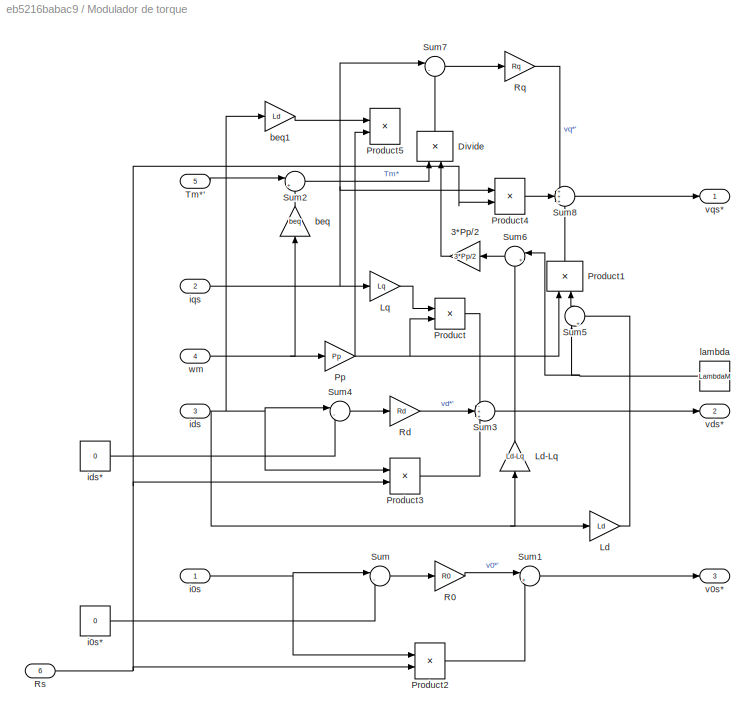
BLOCK [SubSystem] Modulador de torque
  Ports = [6, 3]
  RequestExecContextInheritance = off
  Variant = off
BLOCK [Gain] Modulador de torque/3*Pp//2
  Gain = 3*Pp/2
  OutDataTypeStr = Inherit: Inherit via internal rule
  ParamDataTypeStr = Inherit: Inherit via internal rule
  SaturateOnIntegerOverflow = off
BLOCK [Product] Modulador de torque/Divide
  InputSameDT = off
  Inputs = */
  OutDataTypeStr = Inherit: Inherit via internal rule
  Ports = [2, 1]
  RndMeth = Floor
  SaturateOnIntegerOverflow = off
BLOCK [Gain] Modulador de torque/Ld
  Gain = Ld
  OutDataTypeStr = Inherit: Inherit via internal rule
  ParamDataTypeStr = Inherit: Inherit via internal rule
  SaturateOnIntegerOverflow = off
BLOCK [Gain] Modulador de torque/Ld-Lq
  Gain = Ld-Lq
  OutDataTypeStr = Inherit: Inherit via internal rule
  ParamDataTypeStr = Inherit: Inherit via internal rule
  SaturateOnIntegerOverflow = off
BLOCK [Gain] Modulador de torque/Lq
  Gain = Lq
  OutDataTypeStr = Inherit: Inherit via internal rule
  ParamDataTypeStr = Inherit: Inherit via internal rule
  SaturateOnIntegerOverflow = off
BLOCK [Gain] Modulador de torque/Pp
  Gain = Pp
  OutDataTypeStr = Inherit: Inherit via internal rule
  ParamDataTypeStr = Inherit: Inherit via internal rule
  SaturateOnIntegerOverflow = off
BLOCK [Product] Modulador de torque/Product
  InputSameDT = off
  OutDataTypeStr = Inherit: Inherit via internal rule
  Ports = [2, 1]
  RndMeth = Floor
  SaturateOnIntegerOverflow = off
BLOCK [Product] Modulador de torque/Product1
  InputSameDT = off
  OutDataTypeStr = Inherit: Inherit via internal rule
  Ports = [2, 1]
  RndMeth = Floor
  SaturateOnIntegerOverflow = off
BLOCK [Product] Modulador de torque/Product2
  InputSameDT = off
  OutDataTypeStr = Inherit: Inherit via internal rule
  Ports = [2, 1]
  RndMeth = Floor
  SaturateOnIntegerOverflow = off
BLOCK [Product] Modulador de torque/Product3
  InputSameDT = off
  OutDataTypeStr = Inherit: Inherit via internal rule
  Ports = [2, 1]
  RndMeth = Floor
  SaturateOnIntegerOverflow = off
BLOCK [Product] Modulador de torque/Product4
  InputSameDT = off
  OutDataTypeStr = Inherit: Inherit via internal rule
  Ports = [2, 1]
  RndMeth = Floor
  SaturateOnIntegerOverflow = off
BLOCK [Product] Modulador de torque/Product5
  InputSameDT = off
  OutDataTypeStr = Inherit: Inherit via internal rule
  Ports = [2, 1]
  RndMeth = Floor
  SaturateOnIntegerOverflow = off
BLOCK [Gain] Modulador de torque/R0
  Gain = R0
  OutDataTypeStr = Inherit: Inherit via internal rule
  ParamDataTypeStr = Inherit: Inherit via internal rule
  SaturateOnIntegerOverflow = off
BLOCK [Gain] Modulador de torque/Rd
  Gain = Rd
  OutDataTypeStr = Inherit: Inherit via internal rule
  ParamDataTypeStr = Inherit: Inherit via internal rule
  SaturateOnIntegerOverflow = off
BLOCK [Gain] Modulador de torque/Rq
  Gain = Rq
  OutDataTypeStr = Inherit: Inherit via internal rule
  ParamDataTypeStr = Inherit: Inherit via internal rule
  SaturateOnIntegerOverflow = off
BLOCK [Inport] Modulador de torque/Rs
  IconDisplay = Port number
  Port = 6
BLOCK [Sum] Modulador de torque/Sum
  IconShape = round
  InputSameDT = off
  Inputs = |-+
  OutDataTypeStr = Inherit: Inherit via internal rule
  Ports = [2, 1]
  SaturateOnIntegerOverflow = off
BLOCK [Sum] Modulador de torque/Sum1
  IconShape = round
  InputSameDT = off
  Inputs = |++
  OutDataTypeStr = Inherit: Inherit via internal rule
  Ports = [2, 1]
  SaturateOnIntegerOverflow = off
BLOCK [Sum] Modulador de torque/Sum2
  IconShape = round
  InputSameDT = off
  Inputs = |++
  OutDataTypeStr = Inherit: Inherit via internal rule
  Ports = [2, 1]
  SaturateOnIntegerOverflow = off
BLOCK [Sum] Modulador de torque/Sum3
  IconShape = round
  InputSameDT = off
  Inputs = -++
  OutDataTypeStr = Inherit: Inherit via internal rule
  Ports = [3, 1]
  SaturateOnIntegerOverflow = off
BLOCK [Sum] Modulador de torque/Sum4
  IconShape = round
  InputSameDT = off
  Inputs = |-+
  OutDataTypeStr = Inherit: Inherit via internal rule
  Ports = [2, 1]
  SaturateOnIntegerOverflow = off
BLOCK [Sum] Modulador de torque/Sum5
  IconShape = round
  InputSameDT = off
  Inputs = |++
  OutDataTypeStr = Inherit: Inherit via internal rule
  Ports = [2, 1]
  SaturateOnIntegerOverflow = off
BLOCK [Sum] Modulador de torque/Sum6
  IconShape = round
  InputSameDT = off
  Inputs = |++
  OutDataTypeStr = Inherit: Inherit via internal rule
  Ports = [2, 1]
  SaturateOnIntegerOverflow = off
BLOCK [Sum] Modulador de torque/Sum7
  IconShape = round
  InputSameDT = off
  Inputs = |-+
  OutDataTypeStr = Inherit: Inherit via internal rule
  Ports = [2, 1]
  SaturateOnIntegerOverflow = off
BLOCK [Sum] Modulador de torque/Sum8
  IconShape = round
  InputSameDT = off
  Inputs = +++
  OutDataTypeStr = Inherit: Inherit via internal rule
  Ports = [3, 1]
  SaturateOnIntegerOverflow = off
BLOCK [Inport] Modulador de torque/Tm*'
  IconDisplay = Port number
  Port = 5
BLOCK [Gain] Modulador de torque/beq
  Gain = beq
  OutDataTypeStr = Inherit: Inherit via internal rule
  ParamDataTypeStr = Inherit: Inherit via internal rule
  SaturateOnIntegerOverflow = off
BLOCK [Gain] Modulador de torque/beq1
  Gain = Ld
  OutDataTypeStr = Inherit: Inherit via internal rule
  ParamDataTypeStr = Inherit: Inherit via internal rule
  SaturateOnIntegerOverflow = off
BLOCK [Inport] Modulador de torque/i0s
  IconDisplay = Port number
BLOCK [Constant] Modulador de torque/i0s*
  Value = 0
BLOCK [Inport] Modulador de torque/ids
  IconDisplay = Port number
  Port = 3
BLOCK [Constant] Modulador de torque/ids*
  Value = 0
BLOCK [Inport] Modulador de torque/iqs
  IconDisplay = Port number
  Port = 2
BLOCK [Constant] Modulador de torque/lambda
  Value = LambdaM
BLOCK [Outport] Modulador de torque/v0s*
  IconDisplay = Port number
  Port = 3
BLOCK [Outport] Modulador de torque/vds*
  IconDisplay = Port number
  Port = 2
BLOCK [Outport] Modulador de torque/vqs*
  IconDisplay = Port number
BLOCK [Inport] Modulador de torque/wm
  IconDisplay = Port number
  Port = 4
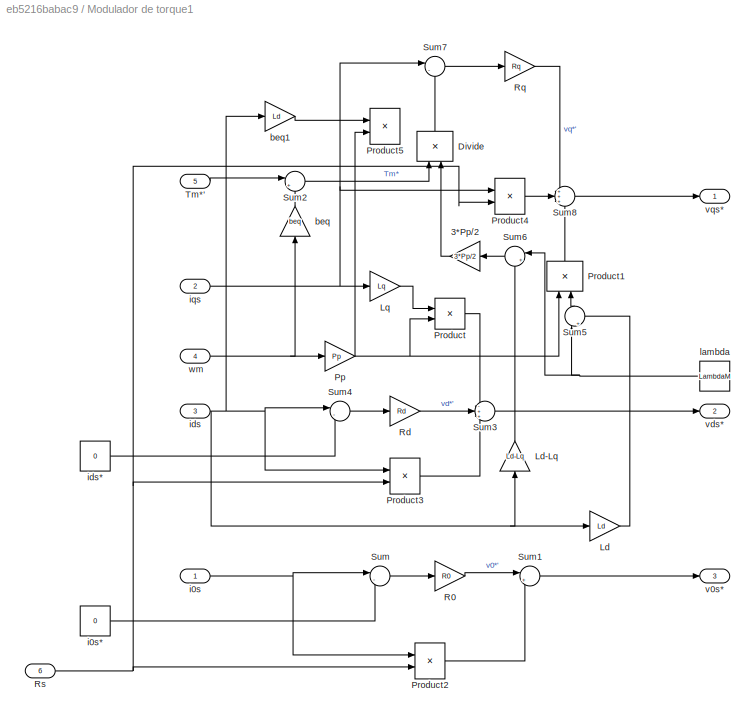
BLOCK [SubSystem] Modulador de torque1
  Ports = [6, 3]
  RequestExecContextInheritance = off
  Variant = off
BLOCK [Gain] Modulador de torque1/3*Pp//2
  Gain = 3*Pp/2
  OutDataTypeStr = Inherit: Inherit via internal rule
  ParamDataTypeStr = Inherit: Inherit via internal rule
  SaturateOnIntegerOverflow = off
BLOCK [Product] Modulador de torque1/Divide
  InputSameDT = off
  Inputs = */
  OutDataTypeStr = Inherit: Inherit via internal rule
  Ports = [2, 1]
  RndMeth = Floor
  SaturateOnIntegerOverflow = off
BLOCK [Gain] Modulador de torque1/Ld
  Gain = Ld
  OutDataTypeStr = Inherit: Inherit via internal rule
  ParamDataTypeStr = Inherit: Inherit via internal rule
  SaturateOnIntegerOverflow = off
BLOCK [Gain] Modulador de torque1/Ld-Lq
  Gain = Ld-Lq
  OutDataTypeStr = Inherit: Inherit via internal rule
  ParamDataTypeStr = Inherit: Inherit via internal rule
  SaturateOnIntegerOverflow = off
BLOCK [Gain] Modulador de torque1/Lq
  Gain = Lq
  OutDataTypeStr = Inherit: Inherit via internal rule
  ParamDataTypeStr = Inherit: Inherit via internal rule
  SaturateOnIntegerOverflow = off
BLOCK [Gain] Modulador de torque1/Pp
  Gain = Pp
  OutDataTypeStr = Inherit: Inherit via internal rule
  ParamDataTypeStr = Inherit: Inherit via internal rule
  SaturateOnIntegerOverflow = off
BLOCK [Product] Modulador de torque1/Product
  InputSameDT = off
  OutDataTypeStr = Inherit: Inherit via internal rule
  Ports = [2, 1]
  RndMeth = Floor
  SaturateOnIntegerOverflow = off
BLOCK [Product] Modulador de torque1/Product1
  InputSameDT = off
  OutDataTypeStr = Inherit: Inherit via internal rule
  Ports = [2, 1]
  RndMeth = Floor
  SaturateOnIntegerOverflow = off
BLOCK [Product] Modulador de torque1/Product2
  InputSameDT = off
  OutDataTypeStr = Inherit: Inherit via internal rule
  Ports = [2, 1]
  RndMeth = Floor
  SaturateOnIntegerOverflow = off
BLOCK [Product] Modulador de torque1/Product3
  InputSameDT = off
  OutDataTypeStr = Inherit: Inherit via internal rule
  Ports = [2, 1]
  RndMeth = Floor
  SaturateOnIntegerOverflow = off
BLOCK [Product] Modulador de torque1/Product4
  InputSameDT = off
  OutDataTypeStr = Inherit: Inherit via internal rule
  Ports = [2, 1]
  RndMeth = Floor
  SaturateOnIntegerOverflow = off
BLOCK [Product] Modulador de torque1/Product5
  InputSameDT = off
  OutDataTypeStr = Inherit: Inherit via internal rule
  Ports = [2, 1]
  RndMeth = Floor
  SaturateOnIntegerOverflow = off
BLOCK [Gain] Modulador de torque1/R0
  Gain = R0
  OutDataTypeStr = Inherit: Inherit via internal rule
  ParamDataTypeStr = Inherit: Inherit via internal rule
  SaturateOnIntegerOverflow = off
BLOCK [Gain] Modulador de torque1/Rd
  Gain = Rd
  OutDataTypeStr = Inherit: Inherit via internal rule
  ParamDataTypeStr = Inherit: Inherit via internal rule
  SaturateOnIntegerOverflow = off
BLOCK [Gain] Modulador de torque1/Rq
  Gain = Rq
  OutDataTypeStr = Inherit: Inherit via internal rule
  ParamDataTypeStr = Inherit: Inherit via internal rule
  SaturateOnIntegerOverflow = off
BLOCK [Inport] Modulador de torque1/Rs
  IconDisplay = Port number
  Port = 6
BLOCK [Sum] Modulador de torque1/Sum
  IconShape = round
  InputSameDT = off
  Inputs = |-+
  OutDataTypeStr = Inherit: Inherit via internal rule
  Ports = [2, 1]
  SaturateOnIntegerOverflow = off
BLOCK [Sum] Modulador de torque1/Sum1
  IconShape = round
  InputSameDT = off
  Inputs = |++
  OutDataTypeStr = Inherit: Inherit via internal rule
  Ports = [2, 1]
  SaturateOnIntegerOverflow = off
BLOCK [Sum] Modulador de torque1/Sum2
  IconShape = round
  InputSameDT = off
  Inputs = |++
  OutDataTypeStr = Inherit: Inherit via internal rule
  Ports = [2, 1]
  SaturateOnIntegerOverflow = off
BLOCK [Sum] Modulador de torque1/Sum3
  IconShape = round
  InputSameDT = off
  Inputs = -++
  OutDataTypeStr = Inherit: Inherit via internal rule
  Ports = [3, 1]
  SaturateOnIntegerOverflow = off
BLOCK [Sum] Modulador de torque1/Sum4
  IconShape = round
  InputSameDT = off
  Inputs = |-+
  OutDataTypeStr = Inherit: Inherit via internal rule
  Ports = [2, 1]
  SaturateOnIntegerOverflow = off
BLOCK [Sum] Modulador de torque1/Sum5
  IconShape = round
  InputSameDT = off
  Inputs = |++
  OutDataTypeStr = Inherit: Inherit via internal rule
  Ports = [2, 1]
  SaturateOnIntegerOverflow = off
BLOCK [Sum] Modulador de torque1/Sum6
  IconShape = round
  InputSameDT = off
  Inputs = |++
  OutDataTypeStr = Inherit: Inherit via internal rule
  Ports = [2, 1]
  SaturateOnIntegerOverflow = off
BLOCK [Sum] Modulador de torque1/Sum7
  IconShape = round
  InputSameDT = off
  Inputs = |-+
  OutDataTypeStr = Inherit: Inherit via internal rule
  Ports = [2, 1]
  SaturateOnIntegerOverflow = off
BLOCK [Sum] Modulador de torque1/Sum8
  IconShape = round
  InputSameDT = off
  Inputs = +++
  OutDataTypeStr = Inherit: Inherit via internal rule
  Ports = [3, 1]
  SaturateOnIntegerOverflow = off
BLOCK [Inport] Modulador de torque1/Tm*'
  IconDisplay = Port number
  Port = 5
BLOCK [Gain] Modulador de torque1/beq
  Gain = beq
  OutDataTypeStr = Inherit: Inherit via internal rule
  ParamDataTypeStr = Inherit: Inherit via internal rule
  SaturateOnIntegerOverflow = off
BLOCK [Gain] Modulador de torque1/beq1
  Gain = Ld
  OutDataTypeStr = Inherit: Inherit via internal rule
  ParamDataTypeStr = Inherit: Inherit via internal rule
  SaturateOnIntegerOverflow = off
BLOCK [Inport] Modulador de torque1/i0s
  IconDisplay = Port number
BLOCK [Constant] Modulador de torque1/i0s*
  Value = 0
BLOCK [Inport] Modulador de torque1/ids
  IconDisplay = Port number
  Port = 3
BLOCK [Constant] Modulador de torque1/ids*
  Value = 0
BLOCK [Inport] Modulador de torque1/iqs
  IconDisplay = Port number
  Port = 2
BLOCK [Constant] Modulador de torque1/lambda
  Value = LambdaM
BLOCK [Outport] Modulador de torque1/v0s*
  IconDisplay = Port number
  Port = 3
BLOCK [Outport] Modulador de torque1/vds*
  IconDisplay = Port number
  Port = 2
BLOCK [Outport] Modulador de torque1/vqs*
  IconDisplay = Port number
BLOCK [Inport] Modulador de torque1/wm
  IconDisplay = Port number
  Port = 4
BLOCK [Mux] Mux
  DisplayOption = bar
  Inputs = 3
  Ports = [3, 1]
BLOCK [Mux] Mux1
  DisplayOption = bar
  Inputs = 3
  Ports = [3, 1]
BLOCK [Mux] Mux2
  DisplayOption = bar
  Inputs = 3
  Ports = [3, 1]
BLOCK [Mux] Mux3
  DisplayOption = bar
  Inputs = 3
  Ports = [3, 1]
BLOCK [Mux] Mux4
  DisplayOption = bar
  Inputs = 2
  Ports = [2, 1]
BLOCK [SubSystem] Observador de estado parcial
  Ports = [2, 3]
  RequestExecContextInheritance = off
  Variant = off
BLOCK [Gain] Observador de estado parcial/Gain
  Gain = 1/Jeq
  OutDataTypeStr = Inherit: Inherit via internal rule
  ParamDataTypeStr = Inherit: Inherit via internal rule
  SaturateOnIntegerOverflow = off
BLOCK [Gain] Observador de estado parcial/Gain1
  Gain = kw
  OutDataTypeStr = Inherit: Inherit via internal rule
  ParamDataTypeStr = Inherit: Inherit via internal rule
  SaturateOnIntegerOverflow = off
BLOCK [Gain] Observador de estado parcial/Gain2
  Gain = kt
  OutDataTypeStr = Inherit: Inherit via internal rule
  ParamDataTypeStr = Inherit: Inherit via internal rule
  SaturateOnIntegerOverflow = off
BLOCK [Gain] Observador de estado parcial/Gain3
  Gain = ki
  OutDataTypeStr = Inherit: Inherit via internal rule
  ParamDataTypeStr = Inherit: Inherit via internal rule
  SaturateOnIntegerOverflow = off
BLOCK [Integrator] Observador de estado parcial/Integrator
  Ports = [1, 1]
BLOCK [Integrator] Observador de estado parcial/Integrator1
  Ports = [1, 1]
BLOCK [Integrator] Observador de estado parcial/Integrator2
  Ports = [1, 1]
BLOCK [Sum] Observador de estado parcial/Sum1
  IconShape = round
  InputSameDT = off
  Inputs = ++|
  OutDataTypeStr = Inherit: Inherit via internal rule
  Ports = [2, 1]
  SaturateOnIntegerOverflow = off
BLOCK [Sum] Observador de estado parcial/Sum2
  IconShape = round
  InputSameDT = off
  Inputs = +-
  OutDataTypeStr = Inherit: Inherit via internal rule
  Ports = [2, 1]
  SaturateOnIntegerOverflow = off
BLOCK [Sum] Observador de estado parcial/Sum3
  IconShape = round
  InputSameDT = off
  Inputs = ++|
  OutDataTypeStr = Inherit: Inherit via internal rule
  Ports = [2, 1]
  SaturateOnIntegerOverflow = off
BLOCK [Sum] Observador de estado parcial/Sum4
  IconShape = round
  InputSameDT = off
  Inputs = ++|
  OutDataTypeStr = Inherit: Inherit via internal rule
  Ports = [2, 1]
  SaturateOnIntegerOverflow = off
BLOCK [Inport] Observador de estado parcial/Tm*'
  IconDisplay = Port number
  Port = 2
BLOCK [Outport] Observador de estado parcial/error_estim
  IconDisplay = Port number
  Port = 3
BLOCK [Inport] Observador de estado parcial/tita_m
  IconDisplay = Port number
BLOCK [Outport] Observador de estado parcial/tita_obs 
  IconDisplay = Port number
BLOCK [Outport] Observador de estado parcial/w_m_obs
  IconDisplay = Port number
  Port = 2
BLOCK [SubSystem] Observador de estado parcial1
  Ports = [2, 3]
  RequestExecContextInheritance = off
  Variant = off
BLOCK [Gain] Observador de estado parcial1/Gain
  Gain = 1/Jeq
  OutDataTypeStr = Inherit: Inherit via internal rule
  ParamDataTypeStr = Inherit: Inherit via internal rule
  SaturateOnIntegerOverflow = off
BLOCK [Gain] Observador de estado parcial1/Gain1
  Gain = kw_sin_mejora
  OutDataTypeStr = Inherit: Inherit via internal rule
  ParamDataTypeStr = Inherit: Inherit via internal rule
  SaturateOnIntegerOverflow = off
BLOCK [Gain] Observador de estado parcial1/Gain2
  Gain = kt_sin_mejora
  OutDataTypeStr = Inherit: Inherit via internal rule
  ParamDataTypeStr = Inherit: Inherit via internal rule
  SaturateOnIntegerOverflow = off
BLOCK [Integrator] Observador de estado parcial1/Integrator
  Ports = [1, 1]
BLOCK [Integrator] Observador de estado parcial1/Integrator1
  Ports = [1, 1]
BLOCK [Sum] Observador de estado parcial1/Sum1
  IconShape = round
  InputSameDT = off
  Inputs = ++|
  OutDataTypeStr = Inherit: Inherit via internal rule
  Ports = [2, 1]
  SaturateOnIntegerOverflow = off
BLOCK [Sum] Observador de estado parcial1/Sum2
  IconShape = round
  InputSameDT = off
  Inputs = +-
  OutDataTypeStr = Inherit: Inherit via internal rule
  Ports = [2, 1]
  SaturateOnIntegerOverflow = off
BLOCK [Sum] Observador de estado parcial1/Sum3
  IconShape = round
  InputSameDT = off
  Inputs = ++|
  OutDataTypeStr = Inherit: Inherit via internal rule
  Ports = [2, 1]
  SaturateOnIntegerOverflow = off
BLOCK [Inport] Observador de estado parcial1/Tm*'
  IconDisplay = Port number
  Port = 2
BLOCK [Outport] Observador de estado parcial1/error_estim
  IconDisplay = Port number
  Port = 3
BLOCK [Inport] Observador de estado parcial1/tita_m
  IconDisplay = Port number
BLOCK [Outport] Observador de estado parcial1/tita_obs 
  IconDisplay = Port number
BLOCK [Outport] Observador de estado parcial1/w_m_obs
  IconDisplay = Port number
  Port = 2
BLOCK [SubSystem] Posicion trapezoidal
  ClipboardFcn = sigbuilder_block('clipboard');
  CloseFcn = sigbuilder_block('close');
  ContinueFcn = sigbuilder_block('continue');
  CopyFcn = sigbuilder_block('copy');
  DeleteFcn = sigbuilder_block('delete');
  LoadFcn = sigbuilder_block('load');
  MaskHideContents = on
  ModelCloseFcn = sigbuilder_block('modelClose');
  NameChangeFcn = sigbuilder_block('namechange');
  OpenFcn = sigbuilder_block('open',[6 30 1012.5 447.75 ]);
  PauseFcn = sigbuilder_block('pause');
  Ports = [0, 1]
  PreSaveFcn = sigbuilder_block('preSave');
  RequestExecContextInheritance = off
  StartFcn = sigbuilder_block('start');
  StopFcn = sigbuilder_block('stop');
  Tag = STV Subsys
  Variant = off
BLOCK [Outport] Posicion trapezoidal/Bus
  IconDisplay = Port number
BLOCK [BusCreator] Posicion trapezoidal/Bus Creator
  InheritFromInputs = on
  Inputs = 1
  Ports = [1, 1]
  Tag = Bus Creator
BLOCK [FromWorkspace] Posicion trapezoidal/FromWs
  SampleTime = 0
  Tag = STV FromWs
  VariableName = tuvar
  ZeroCross = on
BLOCK [SubSystem] Posicion trapezoidal/Subsystem
  Ports = [1, 1]
  RequestExecContextInheritance = off
  Variant = off
BLOCK [Demux] Posicion trapezoidal/Subsystem/Demux
  Outputs = 1
  Ports = [1, 1]
  Tag = STV Demux
BLOCK [Inport] Posicion trapezoidal/Subsystem/In1
  IconDisplay = Port number
BLOCK [Outport] Posicion trapezoidal/Subsystem/Signal 2
  IconDisplay = Port number
  Tag = STV Outport
BLOCK [SubSystem] Posicion trapezoidal1
  ClipboardFcn = sigbuilder_block('clipboard');
  CloseFcn = sigbuilder_block('close');
  ContinueFcn = sigbuilder_block('continue');
  CopyFcn = sigbuilder_block('copy');
  DeleteFcn = sigbuilder_block('delete');
  LoadFcn = sigbuilder_block('load');
  MaskHideContents = on
  ModelCloseFcn = sigbuilder_block('modelClose');
  NameChangeFcn = sigbuilder_block('namechange');
  OpenFcn = sigbuilder_block('open',[6 30 1012.5 447.75 ]);
  PauseFcn = sigbuilder_block('pause');
  Ports = [0, 1]
  PreSaveFcn = sigbuilder_block('preSave');
  RequestExecContextInheritance = off
  StartFcn = sigbuilder_block('start');
  StopFcn = sigbuilder_block('stop');
  Tag = STV Subsys
  Variant = off
BLOCK [Outport] Posicion trapezoidal1/Bus
  IconDisplay = Port number
BLOCK [BusCreator] Posicion trapezoidal1/Bus Creator
  InheritFromInputs = on
  Inputs = 1
  Ports = [1, 1]
  Tag = Bus Creator
BLOCK [FromWorkspace] Posicion trapezoidal1/FromWs
  SampleTime = 0
  Tag = STV FromWs
  VariableName = tuvar
  ZeroCross = on
BLOCK [SubSystem] Posicion trapezoidal1/Subsystem
  Ports = [1, 1]
  RequestExecContextInheritance = off
  Variant = off
BLOCK [Demux] Posicion trapezoidal1/Subsystem/Demux
  Outputs = 1
  Ports = [1, 1]
  Tag = STV Demux
BLOCK [Inport] Posicion trapezoidal1/Subsystem/In1
  IconDisplay = Port number
BLOCK [Outport] Posicion trapezoidal1/Subsystem/Signal 2
  IconDisplay = Port number
  Tag = STV Outport
BLOCK [Gain] Pp
  Gain = Pp
  OutDataTypeStr = Inherit: Inherit via internal rule
  ParamDataTypeStr = Inherit: Inherit via internal rule
  SaturateOnIntegerOverflow = off
BLOCK [Gain] Pp1
  Gain = Pp
  OutDataTypeStr = Inherit: Inherit via internal rule
  ParamDataTypeStr = Inherit: Inherit via internal rule
  SaturateOnIntegerOverflow = off
BLOCK [SubSystem] Resistencia a partir de medir Ts
  Ports = [1, 1]
  RequestExecContextInheritance = off
  Variant = off
BLOCK [Constant] Resistencia a partir de medir Ts/Constant2
  Value = Tsref
BLOCK [Constant] Resistencia a partir de medir Ts/Constant3
BLOCK [Gain] Resistencia a partir de medir Ts/Gain4
  Gain = alfa_cu
  OutDataTypeStr = Inherit: Inherit via internal rule
  ParamDataTypeStr = Inherit: Inherit via internal rule
  SaturateOnIntegerOverflow = off
BLOCK [Gain] Resistencia a partir de medir Ts/Gain5
  Gain = Rsref
  OutDataTypeStr = Inherit: Inherit via internal rule
  ParamDataTypeStr = Inherit: Inherit via internal rule
  SaturateOnIntegerOverflow = off
BLOCK [Outport] Resistencia a partir de medir Ts/Rs
  IconDisplay = Port number
BLOCK [Sum] Resistencia a partir de medir Ts/Sum5
  IconShape = round
  InputSameDT = off
  Inputs = |+-
  OutDataTypeStr = Inherit: Inherit via internal rule
  Ports = [2, 1]
  SaturateOnIntegerOverflow = off
BLOCK [Sum] Resistencia a partir de medir Ts/Sum6
  IconShape = round
  InputSameDT = off
  Inputs = |++
  OutDataTypeStr = Inherit: Inherit via internal rule
  Ports = [2, 1]
  SaturateOnIntegerOverflow = off
BLOCK [Inport] Resistencia a partir de medir Ts/Ts
  IconDisplay = Port number
BLOCK [SubSystem] Resistencia a partir de medir Ts1
  Ports = [1, 1]
  RequestExecContextInheritance = off
  Variant = off
BLOCK [Constant] Resistencia a partir de medir Ts1/Constant2
  Value = Tsref
BLOCK [Constant] Resistencia a partir de medir Ts1/Constant3
BLOCK [Gain] Resistencia a partir de medir Ts1/Gain4
  Gain = alfa_cu
  OutDataTypeStr = Inherit: Inherit via internal rule
  ParamDataTypeStr = Inherit: Inherit via internal rule
  SaturateOnIntegerOverflow = off
BLOCK [Gain] Resistencia a partir de medir Ts1/Gain5
  Gain = Rsref
  OutDataTypeStr = Inherit: Inherit via internal rule
  ParamDataTypeStr = Inherit: Inherit via internal rule
  SaturateOnIntegerOverflow = off
BLOCK [Outport] Resistencia a partir de medir Ts1/Rs
  IconDisplay = Port number
BLOCK [Sum] Resistencia a partir de medir Ts1/Sum5
  IconShape = round
  InputSameDT = off
  Inputs = |+-
  OutDataTypeStr = Inherit: Inherit via internal rule
  Ports = [2, 1]
  SaturateOnIntegerOverflow = off
BLOCK [Sum] Resistencia a partir de medir Ts1/Sum6
  IconShape = round
  InputSameDT = off
  Inputs = |++
  OutDataTypeStr = Inherit: Inherit via internal rule
  Ports = [2, 1]
  SaturateOnIntegerOverflow = off
BLOCK [Inport] Resistencia a partir de medir Ts1/Ts
  IconDisplay = Port number
BLOCK [Scope] Rs
  NumInputPorts = 1
  Ports = [1]
  ScopeSpecificationString = Simulink.scopes.TimeScopeBlockCfg('CurrentConfiguration', extmgr.ConfigurationSet(extmgr.Configuration('Core','General UI',true),extmgr.Configuration('Core','Source UI',true),extmgr.Configuration('Sources','WiredSimulink',true,'DataLoggingVariableName','ScopeData7'),extmgr.Configuration('Visuals','Time Domain',true,'SerializedDisplays',{struct('MinYLimReal','1.01823','MaxYLimReal','1.03592','YLabe...<+1543ch>
BLOCK [Scope] Rs1
  NumInputPorts = 1
  Ports = [1]
  ScopeSpecificationString = Simulink.scopes.TimeScopeBlockCfg('CurrentConfiguration', extmgr.ConfigurationSet(extmgr.Configuration('Core','General UI',true),extmgr.Configuration('Core','Source UI',true),extmgr.Configuration('Sources','WiredSimulink',true,'DataLoggingVariableName','ScopeData2'),extmgr.Configuration('Visuals','Time Domain',true,'SerializedDisplays',{struct('MinYLimReal','1.01823','MaxYLimReal','1.03592','YLabe...<+1543ch>
BLOCK [Constant] Rs_const
  Value = 1.02
BLOCK [Constant] Rs_const1
  Value = 1.02
BLOCK [Constant] Rs_const2
  Value = 1.02
BLOCK [Constant] Rs_const3
  Value = 1.02
BLOCK [Scope] Scope1
  NumInputPorts = 3
  Ports = [3]
  ScopeSpecificationString = Simulink.scopes.TimeScopeBlockCfg('CurrentConfiguration', extmgr.ConfigurationSet(extmgr.Configuration('Core','General UI',true),extmgr.Configuration('Core','Source UI',true),extmgr.Configuration('Sources','WiredSimulink',true,'DataLoggingVariableName','ScopeData2'),extmgr.Configuration('Visuals','Time Domain',true,'SerializedDisplays',{struct('MinYLimReal','-0.59636','MaxYLimReal','0.66037','YLab...<+1491ch>
BLOCK [Scope] Scope2
  NumInputPorts = 3
  Ports = [3]
  ScopeSpecificationString = Simulink.scopes.TimeScopeBlockCfg('CurrentConfiguration', extmgr.ConfigurationSet(extmgr.Configuration('Core','General UI',true),extmgr.Configuration('Core','Source UI',true),extmgr.Configuration('Sources','WiredSimulink',true,'DataLoggingVariableName','ScopeData3'),extmgr.Configuration('Visuals','Time Domain',true,'SerializedDisplays',{struct('MinYLimReal','-25.97669','MaxYLimReal','25.78935','YL...<+1493ch>
BLOCK [Scope] Scope3
  NumInputPorts = 1
  Ports = [1]
  ScopeSpecificationString = Simulink.scopes.TimeScopeBlockCfg('CurrentConfiguration', extmgr.ConfigurationSet(extmgr.Configuration('Core','General UI',true),extmgr.Configuration('Core','Source UI',true),extmgr.Configuration('Sources','WiredSimulink',true,'DataLoggingVariableName','ScopeData1'),extmgr.Configuration('Visuals','Time Domain',true,'SerializedDisplays',{struct('MinYLimReal','-32.24349','MaxYLimReal','40.24928','YL...<+1791ch>
BLOCK [Scope] Scope4
  NumInputPorts = 3
  Ports = [3]
  ScopeSpecificationString = Simulink.scopes.TimeScopeBlockCfg('CurrentConfiguration', extmgr.ConfigurationSet(extmgr.Configuration('Core','General UI',true),extmgr.Configuration('Core','Source UI',true),extmgr.Configuration('Sources','WiredSimulink',true,'DataLoggingVariableName','ScopeData3'),extmgr.Configuration('Visuals','Time Domain',true,'SerializedDisplays',{struct('MinYLimReal','-0.59636','MaxYLimReal','0.66037','YLab...<+1491ch>
BLOCK [Scope] Scope5
  NumInputPorts = 3
  Ports = [3]
  ScopeSpecificationString = Simulink.scopes.TimeScopeBlockCfg('CurrentConfiguration', extmgr.ConfigurationSet(extmgr.Configuration('Core','General UI',true),extmgr.Configuration('Core','Source UI',true),extmgr.Configuration('Sources','WiredSimulink',true,'DataLoggingVariableName','ScopeData4'),extmgr.Configuration('Visuals','Time Domain',true,'SerializedDisplays',{struct('MinYLimReal','-25.97669','MaxYLimReal','25.78935','YL...<+1493ch>
BLOCK [Scope] Scope6
  NumInputPorts = 1
  Ports = [1]
  ScopeSpecificationString = Simulink.scopes.TimeScopeBlockCfg('CurrentConfiguration', extmgr.ConfigurationSet(extmgr.Configuration('Core','General UI',true),extmgr.Configuration('Core','Source UI',true),extmgr.Configuration('Sources','WiredSimulink',true,'DataLoggingVariableName','ScopeData5'),extmgr.Configuration('Visuals','Time Domain',true,'SerializedDisplays',{struct('MinYLimReal','-32.24349','MaxYLimReal','40.24928','YL...<+1791ch>
BLOCK [SubSystem] Transf Park 
  Ports = [4, 3]
  RequestExecContextInheritance = off
  Variant = off
BLOCK [Constant] Transf Park /Constant
  Value = 2*pi/3
BLOCK [Gain] Transf Park /Gain
  Gain = 2/3
  OutDataTypeStr = Inherit: Inherit via internal rule
  ParamDataTypeStr = Inherit: Inherit via internal rule
  SaturateOnIntegerOverflow = off
BLOCK [Gain] Transf Park /Gain1
  Gain = 2/3
  OutDataTypeStr = Inherit: Inherit via internal rule
  ParamDataTypeStr = Inherit: Inherit via internal rule
  SaturateOnIntegerOverflow = off
BLOCK [Gain] Transf Park /Gain2
  Gain = 1/2
  OutDataTypeStr = Inherit: Inherit via internal rule
  ParamDataTypeStr = Inherit: Inherit via internal rule
  SaturateOnIntegerOverflow = off
BLOCK [Gain] Transf Park /Gain3
  Gain = 2/3
  OutDataTypeStr = Inherit: Inherit via internal rule
  ParamDataTypeStr = Inherit: Inherit via internal rule
  SaturateOnIntegerOverflow = off
BLOCK [Product] Transf Park /Product
  InputSameDT = off
  OutDataTypeStr = Inherit: Inherit via internal rule
  Ports = [2, 1]
  RndMeth = Floor
  SaturateOnIntegerOverflow = off
BLOCK [Product] Transf Park /Product1
  InputSameDT = off
  OutDataTypeStr = Inherit: Inherit via internal rule
  Ports = [2, 1]
  RndMeth = Floor
  SaturateOnIntegerOverflow = off
BLOCK [Product] Transf Park /Product2
  InputSameDT = off
  OutDataTypeStr = Inherit: Inherit via internal rule
  Ports = [2, 1]
  RndMeth = Floor
  SaturateOnIntegerOverflow = off
BLOCK [Product] Transf Park /Product3
  InputSameDT = off
  OutDataTypeStr = Inherit: Inherit via internal rule
  Ports = [2, 1]
  RndMeth = Floor
  SaturateOnIntegerOverflow = off
BLOCK [Product] Transf Park /Product4
  InputSameDT = off
  OutDataTypeStr = Inherit: Inherit via internal rule
  Ports = [2, 1]
  RndMeth = Floor
  SaturateOnIntegerOverflow = off
BLOCK [Product] Transf Park /Product5
  InputSameDT = off
  OutDataTypeStr = Inherit: Inherit via internal rule
  Ports = [2, 1]
  RndMeth = Floor
  SaturateOnIntegerOverflow = off
BLOCK [Sum] Transf Park /Sum
  IconShape = round
  InputSameDT = off
  Inputs = |+-
  OutDataTypeStr = Inherit: Inherit via internal rule
  Ports = [2, 1]
  SaturateOnIntegerOverflow = off
BLOCK [Sum] Transf Park /Sum1
  IconShape = round
  InputSameDT = off
  Inputs = |++
  OutDataTypeStr = Inherit: Inherit via internal rule
  Ports = [2, 1]
  SaturateOnIntegerOverflow = off
BLOCK [Sum] Transf Park /Sum2
  IconShape = round
  InputSameDT = off
  Inputs = +++
  OutDataTypeStr = Inherit: Inherit via internal rule
  Ports = [3, 1]
  SaturateOnIntegerOverflow = off
BLOCK [Sum] Transf Park /Sum3
  IconShape = round
  InputSameDT = off
  Inputs = |+-
  OutDataTypeStr = Inherit: Inherit via internal rule
  Ports = [2, 1]
  SaturateOnIntegerOverflow = off
BLOCK [Sum] Transf Park /Sum4
  IconShape = round
  InputSameDT = off
  Inputs = |++
  OutDataTypeStr = Inherit: Inherit via internal rule
  Ports = [2, 1]
  SaturateOnIntegerOverflow = off
BLOCK [Sum] Transf Park /Sum5
  IconShape = round
  InputSameDT = off
  Inputs = +++
  OutDataTypeStr = Inherit: Inherit via internal rule
  Ports = [3, 1]
  SaturateOnIntegerOverflow = off
BLOCK [Sum] Transf Park /Sum6
  IconShape = round
  InputSameDT = off
  Inputs = +++
  OutDataTypeStr = Inherit: Inherit via internal rule
  Ports = [3, 1]
  SaturateOnIntegerOverflow = off
BLOCK [Trigonometry] Transf Park /Trigonometric Function
  Operator = cos
  Ports = [1, 1]
BLOCK [Trigonometry] Transf Park /Trigonometric Function1
  Operator = cos
  Ports = [1, 1]
BLOCK [Trigonometry] Transf Park /Trigonometric Function2
  Operator = cos
  Ports = [1, 1]
BLOCK [Trigonometry] Transf Park /Trigonometric Function3
  Ports = [1, 1]
BLOCK [Trigonometry] Transf Park /Trigonometric Function4
  Ports = [1, 1]
BLOCK [Trigonometry] Transf Park /Trigonometric Function5
  Ports = [1, 1]
BLOCK [Inport] Transf Park /tita_e
  IconDisplay = Port number
  Port = 4
BLOCK [Outport] Transf Park /v0rs 
  IconDisplay = Port number
  Port = 3
BLOCK [Inport] Transf Park /va 
  IconDisplay = Port number
BLOCK [Inport] Transf Park /vb
  IconDisplay = Port number
  Port = 2
BLOCK [Inport] Transf Park /vc
  IconDisplay = Port number
  Port = 3
BLOCK [Outport] Transf Park /vdrs 
  IconDisplay = Port number
  Port = 2
BLOCK [Outport] Transf Park /vqrs
  IconDisplay = Port number
BLOCK [SubSystem] Transf Park 1
  Ports = [4, 3]
  RequestExecContextInheritance = off
  Variant = off
BLOCK [Constant] Transf Park 1/Constant
  Value = 2*pi/3
BLOCK [Gain] Transf Park 1/Gain
  Gain = 2/3
  OutDataTypeStr = Inherit: Inherit via internal rule
  ParamDataTypeStr = Inherit: Inherit via internal rule
  SaturateOnIntegerOverflow = off
BLOCK [Gain] Transf Park 1/Gain1
  Gain = 2/3
  OutDataTypeStr = Inherit: Inherit via internal rule
  ParamDataTypeStr = Inherit: Inherit via internal rule
  SaturateOnIntegerOverflow = off
BLOCK [Gain] Transf Park 1/Gain2
  Gain = 1/2
  OutDataTypeStr = Inherit: Inherit via internal rule
  ParamDataTypeStr = Inherit: Inherit via internal rule
  SaturateOnIntegerOverflow = off
BLOCK [Gain] Transf Park 1/Gain3
  Gain = 2/3
  OutDataTypeStr = Inherit: Inherit via internal rule
  ParamDataTypeStr = Inherit: Inherit via internal rule
  SaturateOnIntegerOverflow = off
BLOCK [Product] Transf Park 1/Product
  InputSameDT = off
  OutDataTypeStr = Inherit: Inherit via internal rule
  Ports = [2, 1]
  RndMeth = Floor
  SaturateOnIntegerOverflow = off
BLOCK [Product] Transf Park 1/Product1
  InputSameDT = off
  OutDataTypeStr = Inherit: Inherit via internal rule
  Ports = [2, 1]
  RndMeth = Floor
  SaturateOnIntegerOverflow = off
BLOCK [Product] Transf Park 1/Product2
  InputSameDT = off
  OutDataTypeStr = Inherit: Inherit via internal rule
  Ports = [2, 1]
  RndMeth = Floor
  SaturateOnIntegerOverflow = off
BLOCK [Product] Transf Park 1/Product3
  InputSameDT = off
  OutDataTypeStr = Inherit: Inherit via internal rule
  Ports = [2, 1]
  RndMeth = Floor
  SaturateOnIntegerOverflow = off
BLOCK [Product] Transf Park 1/Product4
  InputSameDT = off
  OutDataTypeStr = Inherit: Inherit via internal rule
  Ports = [2, 1]
  RndMeth = Floor
  SaturateOnIntegerOverflow = off
BLOCK [Product] Transf Park 1/Product5
  InputSameDT = off
  OutDataTypeStr = Inherit: Inherit via internal rule
  Ports = [2, 1]
  RndMeth = Floor
  SaturateOnIntegerOverflow = off
BLOCK [Sum] Transf Park 1/Sum
  IconShape = round
  InputSameDT = off
  Inputs = |+-
  OutDataTypeStr = Inherit: Inherit via internal rule
  Ports = [2, 1]
  SaturateOnIntegerOverflow = off
BLOCK [Sum] Transf Park 1/Sum1
  IconShape = round
  InputSameDT = off
  Inputs = |++
  OutDataTypeStr = Inherit: Inherit via internal rule
  Ports = [2, 1]
  SaturateOnIntegerOverflow = off
BLOCK [Sum] Transf Park 1/Sum2
  IconShape = round
  InputSameDT = off
  Inputs = +++
  OutDataTypeStr = Inherit: Inherit via internal rule
  Ports = [3, 1]
  SaturateOnIntegerOverflow = off
BLOCK [Sum] Transf Park 1/Sum3
  IconShape = round
  InputSameDT = off
  Inputs = |+-
  OutDataTypeStr = Inherit: Inherit via internal rule
  Ports = [2, 1]
  SaturateOnIntegerOverflow = off
BLOCK [Sum] Transf Park 1/Sum4
  IconShape = round
  InputSameDT = off
  Inputs = |++
  OutDataTypeStr = Inherit: Inherit via internal rule
  Ports = [2, 1]
  SaturateOnIntegerOverflow = off
BLOCK [Sum] Transf Park 1/Sum5
  IconShape = round
  InputSameDT = off
  Inputs = +++
  OutDataTypeStr = Inherit: Inherit via internal rule
  Ports = [3, 1]
  SaturateOnIntegerOverflow = off
BLOCK [Sum] Transf Park 1/Sum6
  IconShape = round
  InputSameDT = off
  Inputs = +++
  OutDataTypeStr = Inherit: Inherit via internal rule
  Ports = [3, 1]
  SaturateOnIntegerOverflow = off
BLOCK [Trigonometry] Transf Park 1/Trigonometric Function
  Operator = cos
  Ports = [1, 1]
BLOCK [Trigonometry] Transf Park 1/Trigonometric Function1
  Operator = cos
  Ports = [1, 1]
BLOCK [Trigonometry] Transf Park 1/Trigonometric Function2
  Operator = cos
  Ports = [1, 1]
BLOCK [Trigonometry] Transf Park 1/Trigonometric Function3
  Ports = [1, 1]
BLOCK [Trigonometry] Transf Park 1/Trigonometric Function4
  Ports = [1, 1]
BLOCK [Trigonometry] Transf Park 1/Trigonometric Function5
  Ports = [1, 1]
BLOCK [Inport] Transf Park 1/tita_e
  IconDisplay = Port number
  Port = 4
BLOCK [Outport] Transf Park 1/v0rs 
  IconDisplay = Port number
  Port = 3
BLOCK [Inport] Transf Park 1/va 
  IconDisplay = Port number
BLOCK [Inport] Transf Park 1/vb
  IconDisplay = Port number
  Port = 2
BLOCK [Inport] Transf Park 1/vc
  IconDisplay = Port number
  Port = 3
BLOCK [Outport] Transf Park 1/vdrs 
  IconDisplay = Port number
  Port = 2
BLOCK [Outport] Transf Park 1/vqrs
  IconDisplay = Port number
BLOCK [SubSystem] Transformacion de Park inversa 
  Ports = [4, 3]
  RequestExecContextInheritance = off
  Variant = off
BLOCK [Constant] Transformacion de Park inversa /Constant
  Value = 2*pi/3
BLOCK [Product] Transformacion de Park inversa /Product
  InputSameDT = off
  OutDataTypeStr = Inherit: Inherit via internal rule
  Ports = [2, 1]
  RndMeth = Floor
  SaturateOnIntegerOverflow = off
BLOCK [Product] Transformacion de Park inversa /Product1
  InputSameDT = off
  OutDataTypeStr = Inherit: Inherit via internal rule
  Ports = [2, 1]
  RndMeth = Floor
  SaturateOnIntegerOverflow = off
BLOCK [Product] Transformacion de Park inversa /Product2
  InputSameDT = off
  OutDataTypeStr = Inherit: Inherit via internal rule
  Ports = [2, 1]
  RndMeth = Floor
  SaturateOnIntegerOverflow = off
BLOCK [Product] Transformacion de Park inversa /Product3
  InputSameDT = off
  OutDataTypeStr = Inherit: Inherit via internal rule
  Ports = [2, 1]
  RndMeth = Floor
  SaturateOnIntegerOverflow = off
BLOCK [Product] Transformacion de Park inversa /Product4
  InputSameDT = off
  OutDataTypeStr = Inherit: Inherit via internal rule
  Ports = [2, 1]
  RndMeth = Floor
  SaturateOnIntegerOverflow = off
BLOCK [Product] Transformacion de Park inversa /Product5
  InputSameDT = off
  OutDataTypeStr = Inherit: Inherit via internal rule
  Ports = [2, 1]
  RndMeth = Floor
  SaturateOnIntegerOverflow = off
BLOCK [Sum] Transformacion de Park inversa /Sum
  IconShape = round
  InputSameDT = off
  Inputs = |+++
  OutDataTypeStr = Inherit: Inherit via internal rule
  Ports = [3, 1]
  SaturateOnIntegerOverflow = off
BLOCK [Sum] Transformacion de Park inversa /Sum1
  IconShape = round
  InputSameDT = off
  Inputs = |+++
  OutDataTypeStr = Inherit: Inherit via internal rule
  Ports = [3, 1]
  SaturateOnIntegerOverflow = off
BLOCK [Sum] Transformacion de Park inversa /Sum2
  IconShape = round
  InputSameDT = off
  Inputs = |+-
  OutDataTypeStr = Inherit: Inherit via internal rule
  Ports = [2, 1]
  SaturateOnIntegerOverflow = off
BLOCK [Sum] Transformacion de Park inversa /Sum3
  IconShape = round
  InputSameDT = off
  Inputs = |++
  OutDataTypeStr = Inherit: Inherit via internal rule
  Ports = [2, 1]
  SaturateOnIntegerOverflow = off
BLOCK [Sum] Transformacion de Park inversa /Sum4
  IconShape = round
  InputSameDT = off
  Inputs = |+++
  OutDataTypeStr = Inherit: Inherit via internal rule
  Ports = [3, 1]
  SaturateOnIntegerOverflow = off
BLOCK [Trigonometry] Transformacion de Park inversa /cos tita
  Operator = cos
  Ports = [1, 1]
BLOCK [Trigonometry] Transformacion de Park inversa /cos tita1
  Operator = cos
  Ports = [1, 1]
BLOCK [Trigonometry] Transformacion de Park inversa /cos tita2
  Operator = cos
  Ports = [1, 1]
BLOCK [Inport] Transformacion de Park inversa /i0
  IconDisplay = Port number
  Port = 4
BLOCK [Outport] Transformacion de Park inversa /ias
  IconDisplay = Port number
BLOCK [Outport] Transformacion de Park inversa /ibs
  IconDisplay = Port number
  Port = 2
BLOCK [Outport] Transformacion de Park inversa /ics 
  IconDisplay = Port number
  Port = 3
BLOCK [Inport] Transformacion de Park inversa /id
  IconDisplay = Port number
  Port = 3
BLOCK [Inport] Transformacion de Park inversa /iq
  IconDisplay = Port number
  Port = 2
BLOCK [Trigonometry] Transformacion de Park inversa /sin tita 
  Ports = [1, 1]
BLOCK [Trigonometry] Transformacion de Park inversa /sin tita 1
  Ports = [1, 1]
BLOCK [Trigonometry] Transformacion de Park inversa /sin tita 2
  Ports = [1, 1]
BLOCK [Inport] Transformacion de Park inversa /tita_e
  IconDisplay = Port number
BLOCK [SubSystem] Transformacion de Park inversa 1
  Ports = [4, 3]
  RequestExecContextInheritance = off
  Variant = off
BLOCK [Constant] Transformacion de Park inversa 1/Constant
  Value = 2*pi/3
BLOCK [Product] Transformacion de Park inversa 1/Product
  InputSameDT = off
  OutDataTypeStr = Inherit: Inherit via internal rule
  Ports = [2, 1]
  RndMeth = Floor
  SaturateOnIntegerOverflow = off
BLOCK [Product] Transformacion de Park inversa 1/Product1
  InputSameDT = off
  OutDataTypeStr = Inherit: Inherit via internal rule
  Ports = [2, 1]
  RndMeth = Floor
  SaturateOnIntegerOverflow = off
BLOCK [Product] Transformacion de Park inversa 1/Product2
  InputSameDT = off
  OutDataTypeStr = Inherit: Inherit via internal rule
  Ports = [2, 1]
  RndMeth = Floor
  SaturateOnIntegerOverflow = off
BLOCK [Product] Transformacion de Park inversa 1/Product3
  InputSameDT = off
  OutDataTypeStr = Inherit: Inherit via internal rule
  Ports = [2, 1]
  RndMeth = Floor
  SaturateOnIntegerOverflow = off
BLOCK [Product] Transformacion de Park inversa 1/Product4
  InputSameDT = off
  OutDataTypeStr = Inherit: Inherit via internal rule
  Ports = [2, 1]
  RndMeth = Floor
  SaturateOnIntegerOverflow = off
BLOCK [Product] Transformacion de Park inversa 1/Product5
  InputSameDT = off
  OutDataTypeStr = Inherit: Inherit via internal rule
  Ports = [2, 1]
  RndMeth = Floor
  SaturateOnIntegerOverflow = off
BLOCK [Sum] Transformacion de Park inversa 1/Sum
  IconShape = round
  InputSameDT = off
  Inputs = |+++
  OutDataTypeStr = Inherit: Inherit via internal rule
  Ports = [3, 1]
  SaturateOnIntegerOverflow = off
BLOCK [Sum] Transformacion de Park inversa 1/Sum1
  IconShape = round
  InputSameDT = off
  Inputs = |+++
  OutDataTypeStr = Inherit: Inherit via internal rule
  Ports = [3, 1]
  SaturateOnIntegerOverflow = off
BLOCK [Sum] Transformacion de Park inversa 1/Sum2
  IconShape = round
  InputSameDT = off
  Inputs = |+-
  OutDataTypeStr = Inherit: Inherit via internal rule
  Ports = [2, 1]
  SaturateOnIntegerOverflow = off
BLOCK [Sum] Transformacion de Park inversa 1/Sum3
  IconShape = round
  InputSameDT = off
  Inputs = |++
  OutDataTypeStr = Inherit: Inherit via internal rule
  Ports = [2, 1]
  SaturateOnIntegerOverflow = off
BLOCK [Sum] Transformacion de Park inversa 1/Sum4
  IconShape = round
  InputSameDT = off
  Inputs = |+++
  OutDataTypeStr = Inherit: Inherit via internal rule
  Ports = [3, 1]
  SaturateOnIntegerOverflow = off
BLOCK [Trigonometry] Transformacion de Park inversa 1/cos tita
  Operator = cos
  Ports = [1, 1]
BLOCK [Trigonometry] Transformacion de Park inversa 1/cos tita1
  Operator = cos
  Ports = [1, 1]
BLOCK [Trigonometry] Transformacion de Park inversa 1/cos tita2
  Operator = cos
  Ports = [1, 1]
BLOCK [Trigonometry] Transformacion de Park inversa 1/sin tita 
  Ports = [1, 1]
BLOCK [Trigonometry] Transformacion de Park inversa 1/sin tita 1
  Ports = [1, 1]
BLOCK [Trigonometry] Transformacion de Park inversa 1/sin tita 2
  Ports = [1, 1]
BLOCK [Inport] Transformacion de Park inversa 1/tita_e
  IconDisplay = Port number
BLOCK [Inport] Transformacion de Park inversa 1/v0_S 
  IconDisplay = Port number
  Port = 4
BLOCK [Outport] Transformacion de Park inversa 1/vas
  IconDisplay = Port number
BLOCK [Outport] Transformacion de Park inversa 1/vbs
  IconDisplay = Port number
  Port = 2
BLOCK [Outport] Transformacion de Park inversa 1/vcs 
  IconDisplay = Port number
  Port = 3
BLOCK [Inport] Transformacion de Park inversa 1/vd_s
  IconDisplay = Port number
  Port = 3
BLOCK [Inport] Transformacion de Park inversa 1/vq_s
  IconDisplay = Port number
  Port = 2
BLOCK [SubSystem] Transformacion de Park inversa 2
  Ports = [4, 3]
  RequestExecContextInheritance = off
  Variant = off
BLOCK [Constant] Transformacion de Park inversa 2/Constant
  Value = 2*pi/3
BLOCK [Product] Transformacion de Park inversa 2/Product
  InputSameDT = off
  OutDataTypeStr = Inherit: Inherit via internal rule
  Ports = [2, 1]
  RndMeth = Floor
  SaturateOnIntegerOverflow = off
BLOCK [Product] Transformacion de Park inversa 2/Product1
  InputSameDT = off
  OutDataTypeStr = Inherit: Inherit via internal rule
  Ports = [2, 1]
  RndMeth = Floor
  SaturateOnIntegerOverflow = off
BLOCK [Product] Transformacion de Park inversa 2/Product2
  InputSameDT = off
  OutDataTypeStr = Inherit: Inherit via internal rule
  Ports = [2, 1]
  RndMeth = Floor
  SaturateOnIntegerOverflow = off
BLOCK [Product] Transformacion de Park inversa 2/Product3
  InputSameDT = off
  OutDataTypeStr = Inherit: Inherit via internal rule
  Ports = [2, 1]
  RndMeth = Floor
  SaturateOnIntegerOverflow = off
BLOCK [Product] Transformacion de Park inversa 2/Product4
  InputSameDT = off
  OutDataTypeStr = Inherit: Inherit via internal rule
  Ports = [2, 1]
  RndMeth = Floor
  SaturateOnIntegerOverflow = off
BLOCK [Product] Transformacion de Park inversa 2/Product5
  InputSameDT = off
  OutDataTypeStr = Inherit: Inherit via internal rule
  Ports = [2, 1]
  RndMeth = Floor
  SaturateOnIntegerOverflow = off
BLOCK [Sum] Transformacion de Park inversa 2/Sum
  IconShape = round
  InputSameDT = off
  Inputs = |+++
  OutDataTypeStr = Inherit: Inherit via internal rule
  Ports = [3, 1]
  SaturateOnIntegerOverflow = off
BLOCK [Sum] Transformacion de Park inversa 2/Sum1
  IconShape = round
  InputSameDT = off
  Inputs = |+++
  OutDataTypeStr = Inherit: Inherit via internal rule
  Ports = [3, 1]
  SaturateOnIntegerOverflow = off
BLOCK [Sum] Transformacion de Park inversa 2/Sum2
  IconShape = round
  InputSameDT = off
  Inputs = |+-
  OutDataTypeStr = Inherit: Inherit via internal rule
  Ports = [2, 1]
  SaturateOnIntegerOverflow = off
BLOCK [Sum] Transformacion de Park inversa 2/Sum3
  IconShape = round
  InputSameDT = off
  Inputs = |++
  OutDataTypeStr = Inherit: Inherit via internal rule
  Ports = [2, 1]
  SaturateOnIntegerOverflow = off
BLOCK [Sum] Transformacion de Park inversa 2/Sum4
  IconShape = round
  InputSameDT = off
  Inputs = |+++
  OutDataTypeStr = Inherit: Inherit via internal rule
  Ports = [3, 1]
  SaturateOnIntegerOverflow = off
BLOCK [Trigonometry] Transformacion de Park inversa 2/cos tita
  Operator = cos
  Ports = [1, 1]
BLOCK [Trigonometry] Transformacion de Park inversa 2/cos tita1
  Operator = cos
  Ports = [1, 1]
BLOCK [Trigonometry] Transformacion de Park inversa 2/cos tita2
  Operator = cos
  Ports = [1, 1]
BLOCK [Inport] Transformacion de Park inversa 2/i0
  IconDisplay = Port number
  Port = 4
BLOCK [Outport] Transformacion de Park inversa 2/ias
  IconDisplay = Port number
BLOCK [Outport] Transformacion de Park inversa 2/ibs
  IconDisplay = Port number
  Port = 2
BLOCK [Outport] Transformacion de Park inversa 2/ics 
  IconDisplay = Port number
  Port = 3
BLOCK [Inport] Transformacion de Park inversa 2/id
  IconDisplay = Port number
  Port = 3
BLOCK [Inport] Transformacion de Park inversa 2/iq
  IconDisplay = Port number
  Port = 2
BLOCK [Trigonometry] Transformacion de Park inversa 2/sin tita 
  Ports = [1, 1]
BLOCK [Trigonometry] Transformacion de Park inversa 2/sin tita 1
  Ports = [1, 1]
BLOCK [Trigonometry] Transformacion de Park inversa 2/sin tita 2
  Ports = [1, 1]
BLOCK [Inport] Transformacion de Park inversa 2/tita_e
  IconDisplay = Port number
BLOCK [SubSystem] Transformacion de Park inversa 3
  Ports = [4, 3]
  RequestExecContextInheritance = off
  Variant = off
BLOCK [Constant] Transformacion de Park inversa 3/Constant
  Value = 2*pi/3
BLOCK [Product] Transformacion de Park inversa 3/Product
  InputSameDT = off
  OutDataTypeStr = Inherit: Inherit via internal rule
  Ports = [2, 1]
  RndMeth = Floor
  SaturateOnIntegerOverflow = off
BLOCK [Product] Transformacion de Park inversa 3/Product1
  InputSameDT = off
  OutDataTypeStr = Inherit: Inherit via internal rule
  Ports = [2, 1]
  RndMeth = Floor
  SaturateOnIntegerOverflow = off
BLOCK [Product] Transformacion de Park inversa 3/Product2
  InputSameDT = off
  OutDataTypeStr = Inherit: Inherit via internal rule
  Ports = [2, 1]
  RndMeth = Floor
  SaturateOnIntegerOverflow = off
BLOCK [Product] Transformacion de Park inversa 3/Product3
  InputSameDT = off
  OutDataTypeStr = Inherit: Inherit via internal rule
  Ports = [2, 1]
  RndMeth = Floor
  SaturateOnIntegerOverflow = off
BLOCK [Product] Transformacion de Park inversa 3/Product4
  InputSameDT = off
  OutDataTypeStr = Inherit: Inherit via internal rule
  Ports = [2, 1]
  RndMeth = Floor
  SaturateOnIntegerOverflow = off
BLOCK [Product] Transformacion de Park inversa 3/Product5
  InputSameDT = off
  OutDataTypeStr = Inherit: Inherit via internal rule
  Ports = [2, 1]
  RndMeth = Floor
  SaturateOnIntegerOverflow = off
BLOCK [Sum] Transformacion de Park inversa 3/Sum
  IconShape = round
  InputSameDT = off
  Inputs = |+++
  OutDataTypeStr = Inherit: Inherit via internal rule
  Ports = [3, 1]
  SaturateOnIntegerOverflow = off
BLOCK [Sum] Transformacion de Park inversa 3/Sum1
  IconShape = round
  InputSameDT = off
  Inputs = |+++
  OutDataTypeStr = Inherit: Inherit via internal rule
  Ports = [3, 1]
  SaturateOnIntegerOverflow = off
BLOCK [Sum] Transformacion de Park inversa 3/Sum2
  IconShape = round
  InputSameDT = off
  Inputs = |+-
  OutDataTypeStr = Inherit: Inherit via internal rule
  Ports = [2, 1]
  SaturateOnIntegerOverflow = off
BLOCK [Sum] Transformacion de Park inversa 3/Sum3
  IconShape = round
  InputSameDT = off
  Inputs = |++
  OutDataTypeStr = Inherit: Inherit via internal rule
  Ports = [2, 1]
  SaturateOnIntegerOverflow = off
BLOCK [Sum] Transformacion de Park inversa 3/Sum4
  IconShape = round
  InputSameDT = off
  Inputs = |+++
  OutDataTypeStr = Inherit: Inherit via internal rule
  Ports = [3, 1]
  SaturateOnIntegerOverflow = off
BLOCK [Trigonometry] Transformacion de Park inversa 3/cos tita
  Operator = cos
  Ports = [1, 1]
BLOCK [Trigonometry] Transformacion de Park inversa 3/cos tita1
  Operator = cos
  Ports = [1, 1]
BLOCK [Trigonometry] Transformacion de Park inversa 3/cos tita2
  Operator = cos
  Ports = [1, 1]
BLOCK [Trigonometry] Transformacion de Park inversa 3/sin tita 
  Ports = [1, 1]
BLOCK [Trigonometry] Transformacion de Park inversa 3/sin tita 1
  Ports = [1, 1]
BLOCK [Trigonometry] Transformacion de Park inversa 3/sin tita 2
  Ports = [1, 1]
BLOCK [Inport] Transformacion de Park inversa 3/tita_e
  IconDisplay = Port number
BLOCK [Inport] Transformacion de Park inversa 3/v0_S 
  IconDisplay = Port number
  Port = 4
BLOCK [Outport] Transformacion de Park inversa 3/vas
  IconDisplay = Port number
BLOCK [Outport] Transformacion de Park inversa 3/vbs
  IconDisplay = Port number
  Port = 2
BLOCK [Outport] Transformacion de Park inversa 3/vcs 
  IconDisplay = Port number
  Port = 3
BLOCK [Inport] Transformacion de Park inversa 3/vd_s
  IconDisplay = Port number
  Port = 3
BLOCK [Inport] Transformacion de Park inversa 3/vq_s
  IconDisplay = Port number
  Port = 2
BLOCK [SubSystem] Velocidad trapezoidal
  ClipboardFcn = sigbuilder_block('clipboard');
  CloseFcn = sigbuilder_block('close');
  ContinueFcn = sigbuilder_block('continue');
  CopyFcn = sigbuilder_block('copy');
  DeleteFcn = sigbuilder_block('delete');
  LoadFcn = sigbuilder_block('load');
  MaskHideContents = on
  ModelCloseFcn = sigbuilder_block('modelClose');
  NameChangeFcn = sigbuilder_block('namechange');
  OpenFcn = sigbuilder_block('open',[6 30 1012.5 447.75 ]);
  PauseFcn = sigbuilder_block('pause');
  Ports = [0, 1]
  PreSaveFcn = sigbuilder_block('preSave');
  RequestExecContextInheritance = off
  StartFcn = sigbuilder_block('start');
  StopFcn = sigbuilder_block('stop');
  Tag = STV Subsys
  Variant = off
BLOCK [Outport] Velocidad trapezoidal/Bus
  IconDisplay = Port number
BLOCK [BusCreator] Velocidad trapezoidal/Bus Creator
  InheritFromInputs = on
  Inputs = 1
  Ports = [1, 1]
  Tag = Bus Creator
BLOCK [FromWorkspace] Velocidad trapezoidal/FromWs
  SampleTime = 0
  Tag = STV FromWs
  VariableName = tuvar
  ZeroCross = on
BLOCK [SubSystem] Velocidad trapezoidal/Subsystem
  Ports = [1, 1]
  RequestExecContextInheritance = off
  Variant = off
BLOCK [Demux] Velocidad trapezoidal/Subsystem/Demux
  Outputs = 1
  Ports = [1, 1]
  Tag = STV Demux
BLOCK [Inport] Velocidad trapezoidal/Subsystem/In1
  IconDisplay = Port number
BLOCK [Outport] Velocidad trapezoidal/Subsystem/Signal 1
  IconDisplay = Port number
  Tag = STV Outport
BLOCK [SubSystem] Velocidad trapezoidal1
  ClipboardFcn = sigbuilder_block('clipboard');
  CloseFcn = sigbuilder_block('close');
  ContinueFcn = sigbuilder_block('continue');
  CopyFcn = sigbuilder_block('copy');
  DeleteFcn = sigbuilder_block('delete');
  LoadFcn = sigbuilder_block('load');
  MaskHideContents = on
  ModelCloseFcn = sigbuilder_block('modelClose');
  NameChangeFcn = sigbuilder_block('namechange');
  OpenFcn = sigbuilder_block('open',[6 30 1012.5 447.75 ]);
  PauseFcn = sigbuilder_block('pause');
  Ports = [0, 1]
  PreSaveFcn = sigbuilder_block('preSave');
  RequestExecContextInheritance = off
  StartFcn = sigbuilder_block('start');
  StopFcn = sigbuilder_block('stop');
  Tag = STV Subsys
  Variant = off
BLOCK [Outport] Velocidad trapezoidal1/Bus
  IconDisplay = Port number
BLOCK [BusCreator] Velocidad trapezoidal1/Bus Creator
  InheritFromInputs = on
  Inputs = 1
  Ports = [1, 1]
  Tag = Bus Creator
BLOCK [FromWorkspace] Velocidad trapezoidal1/FromWs
  SampleTime = 0
  Tag = STV FromWs
  VariableName = tuvar
  ZeroCross = on
BLOCK [SubSystem] Velocidad trapezoidal1/Subsystem
  Ports = [1, 1]
  RequestExecContextInheritance = off
  Variant = off
BLOCK [Demux] Velocidad trapezoidal1/Subsystem/Demux
  Outputs = 1
  Ports = [1, 1]
  Tag = STV Demux
BLOCK [Inport] Velocidad trapezoidal1/Subsystem/In1
  IconDisplay = Port number
BLOCK [Outport] Velocidad trapezoidal1/Subsystem/Signal 1
  IconDisplay = Port number
  Tag = STV Outport
BLOCK [Derivative] du//dt
BLOCK [Derivative] du//dt1
BLOCK [Gain] mod_t_a
  OutDataTypeStr = Inherit: Inherit via internal rule
  ParamDataTypeStr = Inherit: Inherit via internal rule
  SaturateOnIntegerOverflow = off
BLOCK [Gain] mod_t_a1
  OutDataTypeStr = Inherit: Inherit via internal rule
  ParamDataTypeStr = Inherit: Inherit via internal rule
  SaturateOnIntegerOverflow = off
BLOCK [Gain] mod_t_b
  OutDataTypeStr = Inherit: Inherit via internal rule
  ParamDataTypeStr = Inherit: Inherit via internal rule
  SaturateOnIntegerOverflow = off
BLOCK [Gain] mod_t_b1
  OutDataTypeStr = Inherit: Inherit via internal rule
  ParamDataTypeStr = Inherit: Inherit via internal rule
  SaturateOnIntegerOverflow = off
BLOCK [Gain] mod_t_c
  OutDataTypeStr = Inherit: Inherit via internal rule
  ParamDataTypeStr = Inherit: Inherit via internal rule
  SaturateOnIntegerOverflow = off
BLOCK [Gain] mod_t_c1
  OutDataTypeStr = Inherit: Inherit via internal rule
  ParamDataTypeStr = Inherit: Inherit via internal rule
  SaturateOnIntegerOverflow = off
BLOCK [Scope] posicion
  NumInputPorts = 1
  Ports = [1]
  ScopeSpecificationString = Simulink.scopes.TimeScopeBlockCfg('CurrentConfiguration', extmgr.ConfigurationSet(extmgr.Configuration('Core','General UI',true),extmgr.Configuration('Core','Source UI',true),extmgr.Configuration('Sources','WiredSimulink',true,'DataLoggingVariableName','ScopeData1'),extmgr.Configuration('Visuals','Time Domain',true,'SerializedDisplays',{struct('MinYLimReal','-214.29673','MaxYLimReal','1924.86673',...<+1592ch>
BLOCK [Scope] posicion1
  NumInputPorts = 1
  Ports = [1]
  ScopeSpecificationString = Simulink.scopes.TimeScopeBlockCfg('CurrentConfiguration', extmgr.ConfigurationSet(extmgr.Configuration('Core','General UI',true),extmgr.Configuration('Core','Source UI',true),extmgr.Configuration('Sources','WiredSimulink',true,'DataLoggingVariableName','ScopeData6'),extmgr.Configuration('Visuals','Time Domain',true,'SerializedDisplays',{struct('MinYLimReal','-214.29673','MaxYLimReal','1924.86673',...<+1592ch>
BLOCK [Gain] r
  Gain = r
  OutDataTypeStr = Inherit: Inherit via internal rule
  ParamDataTypeStr = Inherit: Inherit via internal rule
  SaturateOnIntegerOverflow = off
BLOCK [Gain] r1
  Gain = r
  OutDataTypeStr = Inherit: Inherit via internal rule
  ParamDataTypeStr = Inherit: Inherit via internal rule
  SaturateOnIntegerOverflow = off
BLOCK [ManualSwitch] rs
BLOCK [ManualSwitch] rs1
BLOCK [ManualSwitch] rs2
BLOCK [ManualSwitch] rs3
BLOCK [ManualSwitch] selección consigna
  CurrentSetting = 0
BLOCK [ManualSwitch] selección consigna1
  CurrentSetting = 0
BLOCK [Scope] temperatura
  NumInputPorts = 1
  Ports = [1]
  ScopeSpecificationString = Simulink.scopes.TimeScopeBlockCfg('CurrentConfiguration', extmgr.ConfigurationSet(extmgr.Configuration('Core','General UI',true),extmgr.Configuration('Core','Source UI',true),extmgr.Configuration('Sources','WiredSimulink',true,'DataLoggingVariableName','ScopeData6'),extmgr.Configuration('Visuals','Time Domain',true,'SerializedDisplays',{struct('MinYLimReal','-3.8064','MaxYLimReal','34.25758','YLab...<+1526ch>
BLOCK [Scope] temperatura1
  NumInputPorts = 1
  Ports = [1]
  ScopeSpecificationString = Simulink.scopes.TimeScopeBlockCfg('CurrentConfiguration', extmgr.ConfigurationSet(extmgr.Configuration('Core','General UI',true),extmgr.Configuration('Core','Source UI',true),extmgr.Configuration('Sources','WiredSimulink',true,'DataLoggingVariableName','ScopeData7'),extmgr.Configuration('Visuals','Time Domain',true,'SerializedDisplays',{struct('MinYLimReal','-3.8064','MaxYLimReal','34.25758','YLab...<+1526ch>
BLOCK [Scope] tita_real vs tita_medido
  NumInputPorts = 2
  Ports = [2]
  ScopeSpecificationString = Simulink.scopes.TimeScopeBlockCfg('CurrentConfiguration', extmgr.ConfigurationSet(extmgr.Configuration('Core','General UI',true),extmgr.Configuration('Core','Source UI',true),extmgr.Configuration('Sources','WiredSimulink',true,'DataLoggingVariableName','ScopeData1'),extmgr.Configuration('Visuals','Time Domain',true,'SerializedDisplays',{struct('MinYLimReal','-247.08922','MaxYLimReal','2219.42144',...<+1536ch>
BLOCK [Scope] tita_real vs tita_medido1
  NumInputPorts = 2
  Ports = [2]
  ScopeSpecificationString = Simulink.scopes.TimeScopeBlockCfg('CurrentConfiguration', extmgr.ConfigurationSet(extmgr.Configuration('Core','General UI',true),extmgr.Configuration('Core','Source UI',true),extmgr.Configuration('Sources','WiredSimulink',true,'DataLoggingVariableName','ScopeData8'),extmgr.Configuration('Visuals','Time Domain',true,'SerializedDisplays',{struct('MinYLimReal','-247.08922','MaxYLimReal','2219.42144',...<+1538ch>
BLOCK [Scope] torque
  NumInputPorts = 1
  Ports = [1]
  ScopeSpecificationString = Simulink.scopes.TimeScopeBlockCfg('CurrentConfiguration', extmgr.ConfigurationSet(extmgr.Configuration('Core','General UI',true),extmgr.Configuration('Core','Source UI',true),extmgr.Configuration('Sources','WiredSimulink',true,'DataLoggingVariableName','ScopeData4'),extmgr.Configuration('Visuals','Time Domain',true,'SerializedDisplays',{struct('MinYLimReal','-0.02352','MaxYLimReal','0.01172','YLab...<+1518ch>
BLOCK [Scope] torque de carga
  NumInputPorts = 1
  Ports = [1]
  ScopeSpecificationString = Simulink.scopes.TimeScopeBlockCfg('CurrentConfiguration', extmgr.ConfigurationSet(extmgr.Configuration('Core','General UI',true),extmgr.Configuration('Core','Source UI',true),extmgr.Configuration('Sources','WiredSimulink',true,'DataLoggingVariableName','ScopeData3'),extmgr.Configuration('Visuals','Time Domain',true,'SerializedDisplays',{struct('MinYLimReal','-0.0025','MaxYLimReal','0.0225','YLabel...<+1563ch>
BLOCK [Scope] torque de carga1
  NumInputPorts = 1
  Ports = [1]
  ScopeSpecificationString = Simulink.scopes.TimeScopeBlockCfg('CurrentConfiguration', extmgr.ConfigurationSet(extmgr.Configuration('Core','General UI',true),extmgr.Configuration('Core','Source UI',true),extmgr.Configuration('Sources','WiredSimulink',true,'DataLoggingVariableName','ScopeData9'),extmgr.Configuration('Visuals','Time Domain',true,'SerializedDisplays',{struct('MinYLimReal','-0.0025','MaxYLimReal','0.0225','YLabel...<+1563ch>
BLOCK [Scope] torque1
  NumInputPorts = 1
  Ports = [1]
  ScopeSpecificationString = Simulink.scopes.TimeScopeBlockCfg('CurrentConfiguration', extmgr.ConfigurationSet(extmgr.Configuration('Core','General UI',true),extmgr.Configuration('Core','Source UI',true),extmgr.Configuration('Sources','WiredSimulink',true,'DataLoggingVariableName','ScopeData10'),extmgr.Configuration('Visuals','Time Domain',true,'SerializedDisplays',{struct('MinYLimReal','-0.02352','MaxYLimReal','0.01172','YLa...<+1519ch>
BLOCK [Scope] torque2
  NumInputPorts = 2
  Ports = [2]
  ScopeSpecificationString = Simulink.scopes.TimeScopeBlockCfg('CurrentConfiguration', extmgr.ConfigurationSet(extmgr.Configuration('Core','General UI',true),extmgr.Configuration('Core','Source UI',true),extmgr.Configuration('Sources','WiredSimulink',true,'DataLoggingVariableName','ScopeData11'),extmgr.Configuration('Visuals','Time Domain',true,'SerializedDisplays',{struct('MinYLimReal','0.0043244188315','MaxYLimReal','0.0043...<+1561ch>
BLOCK [Scope] torque3
  NumInputPorts = 2
  Ports = [2]
  ScopeSpecificationString = Simulink.scopes.TimeScopeBlockCfg('CurrentConfiguration', extmgr.ConfigurationSet(extmgr.Configuration('Core','General UI',true),extmgr.Configuration('Core','Source UI',true),extmgr.Configuration('Sources','WiredSimulink',true,'DataLoggingVariableName','ScopeData20'),extmgr.Configuration('Visuals','Time Domain',true,'SerializedDisplays',{struct('MinYLimReal','0.0043244188315','MaxYLimReal','0.0043...<+1561ch>
BLOCK [Scope] velocidad
  NumInputPorts = 1
  Ports = [1]
  ScopeSpecificationString = Simulink.scopes.TimeScopeBlockCfg('CurrentConfiguration', extmgr.ConfigurationSet(extmgr.Configuration('Core','General UI',true),extmgr.Configuration('Core','Source UI',true),extmgr.Configuration('Sources','WiredSimulink',true,'DataLoggingVariableName','ScopeData2'),extmgr.Configuration('Visuals','Time Domain',true,'SerializedDisplays',{struct('MinYLimReal','-475.60223','MaxYLimReal','475.59383','...<+1836ch>
BLOCK [Scope] velocidad1
  NumInputPorts = 1
  Ports = [1]
  ScopeSpecificationString = Simulink.scopes.TimeScopeBlockCfg('CurrentConfiguration', extmgr.ConfigurationSet(extmgr.Configuration('Core','General UI',true),extmgr.Configuration('Core','Source UI',true),extmgr.Configuration('Sources','WiredSimulink',true,'DataLoggingVariableName','ScopeData12'),extmgr.Configuration('Visuals','Time Domain',true,'SerializedDisplays',{struct('MinYLimReal','-475.60223','MaxYLimReal','475.59383',...<+1837ch>
ANNOTATION (root): Controlador
ANNOTATION (root): Modulador de tensión
ANNOTATION (root): Modelo físico completo
ANNOTATION (root): Sensores
ANNOTATION  : ia_s
ANNOTATION  1: ia_s
ANNOTATION Modelo físico (subsistema térmico) : ib
ANNOTATION Modelo físico (subsistema térmico) 1: ib
ANNOTATION Transf Park : vb
ANNOTATION Transf Park 1: vb
NET  /Constant:1 ->  /Sum1:2,  /Sum3:2,  /Sum4:2,  /Sum:2
LINE  /Gain1:1 ->  /iqs:1
LINE  /Gain2:1 ->  /Gain3:1
LINE  /Gain3:1 ->  /i0s :1
LINE  /Gain:1 ->  /ids :1
LINE  /Product1:1 ->  /Sum2:3
LINE  /Product2:1 ->  /Sum2:2
LINE  /Product3:1 ->  /Sum5:1
LINE  /Product4:1 ->  /Sum5:3
LINE  /Product5:1 ->  /Sum5:2
LINE  /Product:1 ->  /Sum2:1
LINE  /Sum1:1 ->  /Trigonometric Function2:1
LINE  /Sum2:1 ->  /Gain1:1
LINE  /Sum3:1 ->  /Trigonometric Function4:1
LINE  /Sum4:1 ->  /Trigonometric Function5:1
LINE  /Sum5:1 ->  /Gain:1
LINE  /Sum6:1 ->  /Gain2:1
LINE  /Sum:1 ->  /Trigonometric Function1:1
LINE  /Trigonometric Function1:1 ->  /Product2:2
LINE  /Trigonometric Function2:1 ->  /Product1:2
LINE  /Trigonometric Function3:1 ->  /Product3:1
LINE  /Trigonometric Function4:1 ->  /Product5:2
LINE  /Trigonometric Function5:1 ->  /Product4:2
LINE  /Trigonometric Function:1 ->  /Product:1
NET  /ia :1 ->  /Product3:2,  /Product:2,  /Sum6:1
NET  /ib :1 ->  /Product2:1,  /Product5:1,  /Sum6:2
NET  /ic :1 ->  /Product1:1,  /Product4:1,  /Sum6:3
NET  /tita_e :1 ->  /Sum1:1,  /Sum3:1,  /Sum4:1,  /Sum:1,  /Trigonometric Function3:1,  /Trigonometric Function:1
NET  1/Constant:1 ->  1/Sum1:2,  1/Sum3:2,  1/Sum4:2,  1/Sum:2
LINE  1/Gain1:1 ->  1/iqs:1
LINE  1/Gain2:1 ->  1/Gain3:1
LINE  1/Gain3:1 ->  1/i0s :1
LINE  1/Gain:1 ->  1/ids :1
LINE  1/Product1:1 ->  1/Sum2:3
LINE  1/Product2:1 ->  1/Sum2:2
LINE  1/Product3:1 ->  1/Sum5:1
LINE  1/Product4:1 ->  1/Sum5:3
LINE  1/Product5:1 ->  1/Sum5:2
LINE  1/Product:1 ->  1/Sum2:1
LINE  1/Sum1:1 ->  1/Trigonometric Function2:1
LINE  1/Sum2:1 ->  1/Gain1:1
LINE  1/Sum3:1 ->  1/Trigonometric Function4:1
LINE  1/Sum4:1 ->  1/Trigonometric Function5:1
LINE  1/Sum5:1 ->  1/Gain:1
LINE  1/Sum6:1 ->  1/Gain2:1
LINE  1/Sum:1 ->  1/Trigonometric Function1:1
LINE  1/Trigonometric Function1:1 ->  1/Product2:2
LINE  1/Trigonometric Function2:1 ->  1/Product1:2
LINE  1/Trigonometric Function3:1 ->  1/Product3:1
LINE  1/Trigonometric Function4:1 ->  1/Product5:2
LINE  1/Trigonometric Function5:1 ->  1/Product4:2
LINE  1/Trigonometric Function:1 ->  1/Product:1
NET  1/ia :1 ->  1/Product3:2,  1/Product:2,  1/Sum6:1
NET  1/ib :1 ->  1/Product2:1,  1/Product5:1,  1/Sum6:2
NET  1/ic :1 ->  1/Product1:1,  1/Product4:1,  1/Sum6:3
NET  1/tita_e :1 ->  1/Sum1:1,  1/Sum3:1,  1/Sum4:1,  1/Sum:1,  1/Trigonometric Function3:1,  1/Trigonometric Function:1
LINE  1:1 -> Modulador de torque1:2
LINE  1:2 -> Modulador de torque1:3
LINE  1:3 -> Modulador de torque1:1
LINE  :1 -> Modulador de torque:2
LINE  :2 -> Modulador de torque:3
LINE  :3 -> Modulador de torque:1
LINE Controlador tipo PID/Integrator1:1 -> Controlador tipo PID/Ksia:1
NET Controlador tipo PID/Integrator:1 -> Controlador tipo PID/Integrator1:1, Controlador tipo PID/Ksa:1
LINE Controlador tipo PID/Ksa:1 -> Controlador tipo PID/Sum1:2
LINE Controlador tipo PID/Ksia:1 -> Controlador tipo PID/Sum1:1
LINE Controlador tipo PID/Sum1:1 -> Controlador tipo PID/T_m*':1
NET Controlador tipo PID/Sum:1 -> Controlador tipo PID/Integrator:1, Controlador tipo PID/ba:1
LINE Controlador tipo PID/ba:1 -> Controlador tipo PID/Sum1:3
LINE Controlador tipo PID/w_m*:1 -> Controlador tipo PID/Sum:1
LINE Controlador tipo PID/w_m:1 -> Controlador tipo PID/Sum:2
LINE Controlador tipo PID1/Integrator1:1 -> Controlador tipo PID1/Ksia:1
NET Controlador tipo PID1/Integrator:1 -> Controlador tipo PID1/Integrator1:1, Controlador tipo PID1/Ksa:1
LINE Controlador tipo PID1/Ksa:1 -> Controlador tipo PID1/Sum1:2
LINE Controlador tipo PID1/Ksia:1 -> Controlador tipo PID1/Sum1:1
LINE Controlador tipo PID1/Sum1:1 -> Controlador tipo PID1/T_m*':1
NET Controlador tipo PID1/Sum:1 -> Controlador tipo PID1/Integrator:1, Controlador tipo PID1/ba:1
LINE Controlador tipo PID1/ba:1 -> Controlador tipo PID1/Sum1:3
LINE Controlador tipo PID1/w_m*:1 -> Controlador tipo PID1/Sum:1
LINE Controlador tipo PID1/w_m:1 -> Controlador tipo PID1/Sum:2
NET Controlador tipo PID1:1 -> Modulador de torque1:5, Observador de estado parcial1:2
NET Controlador tipo PID:1 -> Modulador de torque:5, Observador de estado parcial:2
NET Gain10:1 ->  1:3, Scope4:3
LINE Gain11:1 -> Transformacion de Park inversa 1:1
LINE Gain12:1 ->  1:4
NET Gain13:1 -> Gain12:1, Gain8:1, Observador de estado parcial1:1, tita_real vs tita_medido1:2
NET Gain14:1 -> Resistencia a partir de medir Ts1:1, temperatura1:1
NET Gain1:1 ->  :1, Scope1:1
NET Gain2:1 ->  :2, Scope1:2
NET Gain3:1 ->  :3, Scope1:3
LINE Gain4:1 ->  :4
NET Gain5:1 -> Gain11:1, Gain4:1, Observador de estado parcial:1, tita_real vs tita_medido:2
NET Gain6:1 -> Resistencia a partir de medir Ts:1, temperatura:1
NET Gain7:1 ->  1:1, Scope4:1
LINE Gain8:1 -> Transformacion de Park inversa 3:1
NET Gain9:1 ->  1:2, Scope4:2
NET Modelo físico (subsistema electromagnético + mecanico)/Constant:1 -> Modelo físico (subsistema electromagnético + mecanico)/Sum2:2, Modelo físico (subsistema electromagnético + mecanico)/Sum5:1
LINE Modelo físico (subsistema electromagnético + mecanico)/Eq 1/Gain:1 -> Modelo físico (subsistema electromagnético + mecanico)/Eq 1/Integrator:1
NET Modelo físico (subsistema electromagnético + mecanico)/Eq 1/Integrator:1 -> Modelo físico (subsistema electromagnético + mecanico)/Eq 1/Product:1, Modelo físico (subsistema electromagnético + mecanico)/Eq 1/iqrs :1
LINE Modelo físico (subsistema electromagnético + mecanico)/Eq 1/Product:1 -> Modelo físico (subsistema electromagnético + mecanico)/Eq 1/Sum:2
LINE Modelo físico (subsistema electromagnético + mecanico)/Eq 1/Producto 1 :1 -> Modelo físico (subsistema electromagnético + mecanico)/Eq 1/Sum:3
LINE Modelo físico (subsistema electromagnético + mecanico)/Eq 1/Rs:1 -> Modelo físico (subsistema electromagnético + mecanico)/Eq 1/Product:2
LINE Modelo físico (subsistema electromagnético + mecanico)/Eq 1/Sum:1 -> Modelo físico (subsistema electromagnético + mecanico)/Eq 1/Gain:1
LINE Modelo físico (subsistema electromagnético + mecanico)/Eq 1/vqrs:1 -> Modelo físico (subsistema electromagnético + mecanico)/Eq 1/Sum:1
NET Modelo físico (subsistema electromagnético + mecanico)/Eq 1:1 -> Modelo físico (subsistema electromagnético + mecanico)/Gain4:1, Modelo físico (subsistema electromagnético + mecanico)/Mux:1, Modelo físico (subsistema electromagnético + mecanico)/Product:1, Modelo físico (subsistema electromagnético + mecanico)/i_q_s :1
LINE Modelo físico (subsistema electromagnético + mecanico)/Eq 2 /Gain2:1 -> Modelo físico (subsistema electromagnético + mecanico)/Eq 2 /Integrator1:1
NET Modelo físico (subsistema electromagnético + mecanico)/Eq 2 /Integrator1:1 -> Modelo físico (subsistema electromagnético + mecanico)/Eq 2 /Product:1, Modelo físico (subsistema electromagnético + mecanico)/Eq 2 /idrs :1
LINE Modelo físico (subsistema electromagnético + mecanico)/Eq 2 /Product:1 -> Modelo físico (subsistema electromagnético + mecanico)/Eq 2 /Sum1:2
LINE Modelo físico (subsistema electromagnético + mecanico)/Eq 2 /Producto 2 :1 -> Modelo físico (subsistema electromagnético + mecanico)/Eq 2 /Sum1:3
LINE Modelo físico (subsistema electromagnético + mecanico)/Eq 2 /Rs 1:1 -> Modelo físico (subsistema electromagnético + mecanico)/Eq 2 /Product:2
LINE Modelo físico (subsistema electromagnético + mecanico)/Eq 2 /Sum1:1 -> Modelo físico (subsistema electromagnético + mecanico)/Eq 2 /Gain2:1
LINE Modelo físico (subsistema electromagnético + mecanico)/Eq 2 /vdrs :1 -> Modelo físico (subsistema electromagnético + mecanico)/Eq 2 /Sum1:1
NET Modelo físico (subsistema electromagnético + mecanico)/Eq 2 :1 -> Modelo físico (subsistema electromagnético + mecanico)/Gain10:1, Modelo físico (subsistema electromagnético + mecanico)/Gain3:1, Modelo físico (subsistema electromagnético + mecanico)/Mux:2, Modelo físico (subsistema electromagnético + mecanico)/i_d_s :1
LINE Modelo físico (subsistema electromagnético + mecanico)/Eq 3/Gain12:1 -> Modelo físico (subsistema electromagnético + mecanico)/Eq 3/Integrator5:1
NET Modelo físico (subsistema electromagnético + mecanico)/Eq 3/Integrator5:1 -> Modelo físico (subsistema electromagnético + mecanico)/Eq 3/Producto 1:1, Modelo físico (subsistema electromagnético + mecanico)/Eq 3/i0rs :1
LINE Modelo físico (subsistema electromagnético + mecanico)/Eq 3/Producto 1:1 -> Modelo físico (subsistema electromagnético + mecanico)/Eq 3/Sum4:2
LINE Modelo físico (subsistema electromagnético + mecanico)/Eq 3/Sum4:1 -> Modelo físico (subsistema electromagnético + mecanico)/Eq 3/Gain12:1
LINE Modelo físico (subsistema electromagnético + mecanico)/Eq 3/v0rs :1 -> Modelo físico (subsistema electromagnético + mecanico)/Eq 3/Sum4:1
NET Modelo físico (subsistema electromagnético + mecanico)/Eq 3:1 -> Modelo físico (subsistema electromagnético + mecanico)/Mux:3, Modelo físico (subsistema electromagnético + mecanico)/i_0_s :1
LINE Modelo físico (subsistema electromagnético + mecanico)/Gain10:1 -> Modelo físico (subsistema electromagnético + mecanico)/Sum2:1
LINE Modelo físico (subsistema electromagnético + mecanico)/Gain3:1 -> Modelo físico (subsistema electromagnético + mecanico)/Sum5:2
LINE Modelo físico (subsistema electromagnético + mecanico)/Gain4:1 -> Modelo físico (subsistema electromagnético + mecanico)/Product2:1
LINE Modelo físico (subsistema electromagnético + mecanico)/Mux:1 -> Modelo físico (subsistema electromagnético + mecanico)/Scope1:1
NET Modelo físico (subsistema electromagnético + mecanico)/Par de polos:1 -> Modelo físico (subsistema electromagnético + mecanico)/Product2:2, Modelo físico (subsistema electromagnético + mecanico)/Producto 1:1
LINE Modelo físico (subsistema electromagnético + mecanico)/Product2:1 -> Modelo físico (subsistema electromagnético + mecanico)/Eq 2 :2
LINE Modelo físico (subsistema electromagnético + mecanico)/Product:1 -> Modelo físico (subsistema electromagnético + mecanico)/Torque em :1
LINE Modelo físico (subsistema electromagnético + mecanico)/Producto 1:1 -> Modelo físico (subsistema electromagnético + mecanico)/Eq 1:2
NET Modelo físico (subsistema electromagnético + mecanico)/Rs:1 -> Modelo físico (subsistema electromagnético + mecanico)/Eq 1:3, Modelo físico (subsistema electromagnético + mecanico)/Eq 2 :3, Modelo físico (subsistema electromagnético + mecanico)/Eq 3:2
LINE Modelo físico (subsistema electromagnético + mecanico)/Signal Builder:1 -> Modelo físico (subsistema electromagnético + mecanico)/switch 0:1
LINE Modelo físico (subsistema electromagnético + mecanico)/Step:1 -> Modelo físico (subsistema electromagnético + mecanico)/switch 0:2
LINE Modelo físico (subsistema electromagnético + mecanico)/Subsistema mecánico/Gain6:1 -> Modelo físico (subsistema electromagnético + mecanico)/Subsistema mecánico/Integrator4:1
LINE Modelo físico (subsistema electromagnético + mecanico)/Subsistema mecánico/Gain8:1 -> Modelo físico (subsistema electromagnético + mecanico)/Subsistema mecánico/Sum3:3
LINE Modelo físico (subsistema electromagnético + mecanico)/Subsistema mecánico/Integrator3:1 -> Modelo físico (subsistema electromagnético + mecanico)/Subsistema mecánico/tita_m :1
NET Modelo físico (subsistema electromagnético + mecanico)/Subsistema mecánico/Integrator4:1 -> Modelo físico (subsistema electromagnético + mecanico)/Subsistema mecánico/Gain8:1, Modelo físico (subsistema electromagnético + mecanico)/Subsistema mecánico/Integrator3:1, Modelo físico (subsistema electromagnético + mecanico)/Subsistema mecánico/wm :1
NET Modelo físico (subsistema electromagnético + mecanico)/Subsistema mecánico/Sum3:1 -> Modelo físico (subsistema electromagnético + mecanico)/Subsistema mecánico/Gain6:1, Modelo físico (subsistema electromagnético + mecanico)/Subsistema mecánico/Tm:1
LINE Modelo físico (subsistema electromagnético + mecanico)/Subsistema mecánico/Tleq :1 -> Modelo físico (subsistema electromagnético + mecanico)/Subsistema mecánico/Sum3:1
LINE Modelo físico (subsistema electromagnético + mecanico)/Subsistema mecánico/Tmotor :1 -> Modelo físico (subsistema electromagnético + mecanico)/Subsistema mecánico/Sum3:2
LINE Modelo físico (subsistema electromagnético + mecanico)/Subsistema mecánico:1 -> Modelo físico (subsistema electromagnético + mecanico)/tita_m :1
NET Modelo físico (subsistema electromagnético + mecanico)/Subsistema mecánico:2 -> Modelo físico (subsistema electromagnético + mecanico)/Par de polos:1, Modelo físico (subsistema electromagnético + mecanico)/omega_m :1
LINE Modelo físico (subsistema electromagnético + mecanico)/Subsistema mecánico:3 -> Modelo físico (subsistema electromagnético + mecanico)/Tm:1
LINE Modelo físico (subsistema electromagnético + mecanico)/Sum2:1 -> Modelo físico (subsistema electromagnético + mecanico)/Producto 1:2
LINE Modelo físico (subsistema electromagnético + mecanico)/Sum5:1 -> Modelo físico (subsistema electromagnético + mecanico)/Product:2
LINE Modelo físico (subsistema electromagnético + mecanico)/Torque em :1 -> Modelo físico (subsistema electromagnético + mecanico)/Subsistema mecánico:2
LINE Modelo físico (subsistema electromagnético + mecanico)/V_0:1 -> Modelo físico (subsistema electromagnético + mecanico)/Eq 3:1
LINE Modelo físico (subsistema electromagnético + mecanico)/V_d:1 -> Modelo físico (subsistema electromagnético + mecanico)/Eq 2 :1
LINE Modelo físico (subsistema electromagnético + mecanico)/V_q:1 -> Modelo físico (subsistema electromagnético + mecanico)/Eq 1:1
NET Modelo físico (subsistema electromagnético + mecanico)/switch 0:1 -> Modelo físico (subsistema electromagnético + mecanico)/Subsistema mecánico:1, Modelo físico (subsistema electromagnético + mecanico)/Tleq:1
NET Modelo físico (subsistema electromagnético + mecanico)1/Constant:1 -> Modelo físico (subsistema electromagnético + mecanico)1/Sum2:2, Modelo físico (subsistema electromagnético + mecanico)1/Sum5:1
LINE Modelo físico (subsistema electromagnético + mecanico)1/Eq 1/Gain:1 -> Modelo físico (subsistema electromagnético + mecanico)1/Eq 1/Integrator:1
NET Modelo físico (subsistema electromagnético + mecanico)1/Eq 1/Integrator:1 -> Modelo físico (subsistema electromagnético + mecanico)1/Eq 1/Product:1, Modelo físico (subsistema electromagnético + mecanico)1/Eq 1/iqrs :1
LINE Modelo físico (subsistema electromagnético + mecanico)1/Eq 1/Product:1 -> Modelo físico (subsistema electromagnético + mecanico)1/Eq 1/Sum:2
LINE Modelo físico (subsistema electromagnético + mecanico)1/Eq 1/Producto 1 :1 -> Modelo físico (subsistema electromagnético + mecanico)1/Eq 1/Sum:3
LINE Modelo físico (subsistema electromagnético + mecanico)1/Eq 1/Rs:1 -> Modelo físico (subsistema electromagnético + mecanico)1/Eq 1/Product:2
LINE Modelo físico (subsistema electromagnético + mecanico)1/Eq 1/Sum:1 -> Modelo físico (subsistema electromagnético + mecanico)1/Eq 1/Gain:1
LINE Modelo físico (subsistema electromagnético + mecanico)1/Eq 1/vqrs:1 -> Modelo físico (subsistema electromagnético + mecanico)1/Eq 1/Sum:1
NET Modelo físico (subsistema electromagnético + mecanico)1/Eq 1:1 -> Modelo físico (subsistema electromagnético + mecanico)1/Gain4:1, Modelo físico (subsistema electromagnético + mecanico)1/Mux:1, Modelo físico (subsistema electromagnético + mecanico)1/Product:1, Modelo físico (subsistema electromagnético + mecanico)1/i_q_s :1
LINE Modelo físico (subsistema electromagnético + mecanico)1/Eq 2 /Gain2:1 -> Modelo físico (subsistema electromagnético + mecanico)1/Eq 2 /Integrator1:1
NET Modelo físico (subsistema electromagnético + mecanico)1/Eq 2 /Integrator1:1 -> Modelo físico (subsistema electromagnético + mecanico)1/Eq 2 /Product:1, Modelo físico (subsistema electromagnético + mecanico)1/Eq 2 /idrs :1
LINE Modelo físico (subsistema electromagnético + mecanico)1/Eq 2 /Product:1 -> Modelo físico (subsistema electromagnético + mecanico)1/Eq 2 /Sum1:2
LINE Modelo físico (subsistema electromagnético + mecanico)1/Eq 2 /Producto 2 :1 -> Modelo físico (subsistema electromagnético + mecanico)1/Eq 2 /Sum1:3
LINE Modelo físico (subsistema electromagnético + mecanico)1/Eq 2 /Rs 1:1 -> Modelo físico (subsistema electromagnético + mecanico)1/Eq 2 /Product:2
LINE Modelo físico (subsistema electromagnético + mecanico)1/Eq 2 /Sum1:1 -> Modelo físico (subsistema electromagnético + mecanico)1/Eq 2 /Gain2:1
LINE Modelo físico (subsistema electromagnético + mecanico)1/Eq 2 /vdrs :1 -> Modelo físico (subsistema electromagnético + mecanico)1/Eq 2 /Sum1:1
NET Modelo físico (subsistema electromagnético + mecanico)1/Eq 2 :1 -> Modelo físico (subsistema electromagnético + mecanico)1/Gain10:1, Modelo físico (subsistema electromagnético + mecanico)1/Gain3:1, Modelo físico (subsistema electromagnético + mecanico)1/Mux:2, Modelo físico (subsistema electromagnético + mecanico)1/i_d_s :1
LINE Modelo físico (subsistema electromagnético + mecanico)1/Eq 3/Gain12:1 -> Modelo físico (subsistema electromagnético + mecanico)1/Eq 3/Integrator5:1
NET Modelo físico (subsistema electromagnético + mecanico)1/Eq 3/Integrator5:1 -> Modelo físico (subsistema electromagnético + mecanico)1/Eq 3/Producto 1:1, Modelo físico (subsistema electromagnético + mecanico)1/Eq 3/i0rs :1
LINE Modelo físico (subsistema electromagnético + mecanico)1/Eq 3/Producto 1:1 -> Modelo físico (subsistema electromagnético + mecanico)1/Eq 3/Sum4:2
LINE Modelo físico (subsistema electromagnético + mecanico)1/Eq 3/Sum4:1 -> Modelo físico (subsistema electromagnético + mecanico)1/Eq 3/Gain12:1
LINE Modelo físico (subsistema electromagnético + mecanico)1/Eq 3/v0rs :1 -> Modelo físico (subsistema electromagnético + mecanico)1/Eq 3/Sum4:1
NET Modelo físico (subsistema electromagnético + mecanico)1/Eq 3:1 -> Modelo físico (subsistema electromagnético + mecanico)1/Mux:3, Modelo físico (subsistema electromagnético + mecanico)1/i_0_s :1
LINE Modelo físico (subsistema electromagnético + mecanico)1/Gain10:1 -> Modelo físico (subsistema electromagnético + mecanico)1/Sum2:1
LINE Modelo físico (subsistema electromagnético + mecanico)1/Gain3:1 -> Modelo físico (subsistema electromagnético + mecanico)1/Sum5:2
LINE Modelo físico (subsistema electromagnético + mecanico)1/Gain4:1 -> Modelo físico (subsistema electromagnético + mecanico)1/Product2:1
LINE Modelo físico (subsistema electromagnético + mecanico)1/Mux:1 -> Modelo físico (subsistema electromagnético + mecanico)1/Scope1:1
NET Modelo físico (subsistema electromagnético + mecanico)1/Par de polos:1 -> Modelo físico (subsistema electromagnético + mecanico)1/Product2:2, Modelo físico (subsistema electromagnético + mecanico)1/Producto 1:1
LINE Modelo físico (subsistema electromagnético + mecanico)1/Product2:1 -> Modelo físico (subsistema electromagnético + mecanico)1/Eq 2 :2
LINE Modelo físico (subsistema electromagnético + mecanico)1/Product:1 -> Modelo físico (subsistema electromagnético + mecanico)1/Torque em :1
LINE Modelo físico (subsistema electromagnético + mecanico)1/Producto 1:1 -> Modelo físico (subsistema electromagnético + mecanico)1/Eq 1:2
NET Modelo físico (subsistema electromagnético + mecanico)1/Rs:1 -> Modelo físico (subsistema electromagnético + mecanico)1/Eq 1:3, Modelo físico (subsistema electromagnético + mecanico)1/Eq 2 :3, Modelo físico (subsistema electromagnético + mecanico)1/Eq 3:2
LINE Modelo físico (subsistema electromagnético + mecanico)1/Signal Builder:1 -> Modelo físico (subsistema electromagnético + mecanico)1/switch 0:1
LINE Modelo físico (subsistema electromagnético + mecanico)1/Step:1 -> Modelo físico (subsistema electromagnético + mecanico)1/switch 0:2
LINE Modelo físico (subsistema electromagnético + mecanico)1/Subsistema mecánico/Gain6:1 -> Modelo físico (subsistema electromagnético + mecanico)1/Subsistema mecánico/Integrator4:1
LINE Modelo físico (subsistema electromagnético + mecanico)1/Subsistema mecánico/Gain8:1 -> Modelo físico (subsistema electromagnético + mecanico)1/Subsistema mecánico/Sum3:3
LINE Modelo físico (subsistema electromagnético + mecanico)1/Subsistema mecánico/Integrator3:1 -> Modelo físico (subsistema electromagnético + mecanico)1/Subsistema mecánico/tita_m :1
NET Modelo físico (subsistema electromagnético + mecanico)1/Subsistema mecánico/Integrator4:1 -> Modelo físico (subsistema electromagnético + mecanico)1/Subsistema mecánico/Gain8:1, Modelo físico (subsistema electromagnético + mecanico)1/Subsistema mecánico/Integrator3:1, Modelo físico (subsistema electromagnético + mecanico)1/Subsistema mecánico/wm :1
NET Modelo físico (subsistema electromagnético + mecanico)1/Subsistema mecánico/Sum3:1 -> Modelo físico (subsistema electromagnético + mecanico)1/Subsistema mecánico/Gain6:1, Modelo físico (subsistema electromagnético + mecanico)1/Subsistema mecánico/Tm:1
LINE Modelo físico (subsistema electromagnético + mecanico)1/Subsistema mecánico/Tleq :1 -> Modelo físico (subsistema electromagnético + mecanico)1/Subsistema mecánico/Sum3:1
LINE Modelo físico (subsistema electromagnético + mecanico)1/Subsistema mecánico/Tmotor :1 -> Modelo físico (subsistema electromagnético + mecanico)1/Subsistema mecánico/Sum3:2
LINE Modelo físico (subsistema electromagnético + mecanico)1/Subsistema mecánico:1 -> Modelo físico (subsistema electromagnético + mecanico)1/tita_m :1
NET Modelo físico (subsistema electromagnético + mecanico)1/Subsistema mecánico:2 -> Modelo físico (subsistema electromagnético + mecanico)1/Par de polos:1, Modelo físico (subsistema electromagnético + mecanico)1/omega_m :1
LINE Modelo físico (subsistema electromagnético + mecanico)1/Subsistema mecánico:3 -> Modelo físico (subsistema electromagnético + mecanico)1/Tm:1
LINE Modelo físico (subsistema electromagnético + mecanico)1/Sum2:1 -> Modelo físico (subsistema electromagnético + mecanico)1/Producto 1:2
LINE Modelo físico (subsistema electromagnético + mecanico)1/Sum5:1 -> Modelo físico (subsistema electromagnético + mecanico)1/Product:2
LINE Modelo físico (subsistema electromagnético + mecanico)1/Torque em :1 -> Modelo físico (subsistema electromagnético + mecanico)1/Subsistema mecánico:2
LINE Modelo físico (subsistema electromagnético + mecanico)1/V_0:1 -> Modelo físico (subsistema electromagnético + mecanico)1/Eq 3:1
LINE Modelo físico (subsistema electromagnético + mecanico)1/V_d:1 -> Modelo físico (subsistema electromagnético + mecanico)1/Eq 2 :1
LINE Modelo físico (subsistema electromagnético + mecanico)1/V_q:1 -> Modelo físico (subsistema electromagnético + mecanico)1/Eq 1:1
NET Modelo físico (subsistema electromagnético + mecanico)1/switch 0:1 -> Modelo físico (subsistema electromagnético + mecanico)1/Subsistema mecánico:1, Modelo físico (subsistema electromagnético + mecanico)1/Tleq:1
NET Modelo físico (subsistema electromagnético + mecanico)1:1 -> Gain13:1, Pp1:1, posicion1:1
LINE Modelo físico (subsistema electromagnético + mecanico)1:2 -> velocidad1:1
LINE Modelo físico (subsistema electromagnético + mecanico)1:3 -> torque de carga1:1
LINE Modelo físico (subsistema electromagnético + mecanico)1:4 -> Transformacion de Park inversa 2:2
LINE Modelo físico (subsistema electromagnético + mecanico)1:5 -> Transformacion de Park inversa 2:3
LINE Modelo físico (subsistema electromagnético + mecanico)1:6 -> Transformacion de Park inversa 2:4
NET Modelo físico (subsistema electromagnético + mecanico)1:7 -> torque1:1, torque2:1
NET Modelo físico (subsistema electromagnético + mecanico):1 -> Gain5:1, Pp:1, posicion:1
LINE Modelo físico (subsistema electromagnético + mecanico):2 -> velocidad:1
LINE Modelo físico (subsistema electromagnético + mecanico):3 -> torque de carga:1
LINE Modelo físico (subsistema electromagnético + mecanico):4 -> Transformacion de Park inversa :2
LINE Modelo físico (subsistema electromagnético + mecanico):5 -> Transformacion de Park inversa :3
LINE Modelo físico (subsistema electromagnético + mecanico):6 -> Transformacion de Park inversa :4
NET Modelo físico (subsistema electromagnético + mecanico):7 -> torque3:1, torque:1
LINE Modelo físico (subsistema térmico) /Constant1:1 -> Modelo físico (subsistema térmico) /Sum3:2
LINE Modelo físico (subsistema térmico) /Constant:1 -> Modelo físico (subsistema térmico) /Sum2:2
NET Modelo físico (subsistema térmico) /Demux:1 -> Modelo físico (subsistema térmico) /Product:1, Modelo físico (subsistema térmico) /Product:2
NET Modelo físico (subsistema térmico) /Demux:2 -> Modelo físico (subsistema térmico) /Product1:1, Modelo físico (subsistema térmico) /Product1:2
NET Modelo físico (subsistema térmico) /Demux:3 -> Modelo físico (subsistema térmico) /Product2:1, Modelo físico (subsistema térmico) /Product2:2
LINE Modelo físico (subsistema térmico) /Gain1:1 -> Modelo físico (subsistema térmico) /Sum1:2
LINE Modelo físico (subsistema térmico) /Gain2:1 -> Modelo físico (subsistema térmico) /Sum3:1
NET Modelo físico (subsistema térmico) /Gain3:1 -> Modelo físico (subsistema térmico) /Product3:2, Modelo físico (subsistema térmico) /Rs:1
LINE Modelo físico (subsistema térmico) /Gain:1 -> Modelo físico (subsistema térmico) /Integrator:1
NET Modelo físico (subsistema térmico) /Integrator:1 -> Modelo físico (subsistema térmico) /Sum2:1, Modelo físico (subsistema térmico) /Sum4:2, Modelo físico (subsistema térmico) /Ts:1
LINE Modelo físico (subsistema térmico) /Product1:1 -> Modelo físico (subsistema térmico) /Sum:2
LINE Modelo físico (subsistema térmico) /Product2:1 -> Modelo físico (subsistema térmico) /Sum:3
LINE Modelo físico (subsistema térmico) /Product3:1 -> Modelo físico (subsistema térmico) /Sum1:1
LINE Modelo físico (subsistema térmico) /Product:1 -> Modelo físico (subsistema térmico) /Sum:1
LINE Modelo físico (subsistema térmico) /Sum1:1 -> Modelo físico (subsistema térmico) /Gain:1
LINE Modelo físico (subsistema térmico) /Sum2:1 -> Modelo físico (subsistema térmico) /Gain2:1
LINE Modelo físico (subsistema térmico) /Sum3:1 -> Modelo físico (subsistema térmico) /Gain3:1
LINE Modelo físico (subsistema térmico) /Sum4:1 -> Modelo físico (subsistema térmico) /Gain1:1
LINE Modelo físico (subsistema térmico) /Sum:1 -> Modelo físico (subsistema térmico) /Product3:1
LINE Modelo físico (subsistema térmico) /Tamb 1:1 -> Modelo físico (subsistema térmico) /Sum4:1
LINE Modelo físico (subsistema térmico) /iabc:1 -> Modelo físico (subsistema térmico) /Demux:1
LINE Modelo físico (subsistema térmico) 1/Constant1:1 -> Modelo físico (subsistema térmico) 1/Sum3:2
LINE Modelo físico (subsistema térmico) 1/Constant:1 -> Modelo físico (subsistema térmico) 1/Sum2:2
NET Modelo físico (subsistema térmico) 1/Demux:1 -> Modelo físico (subsistema térmico) 1/Product:1, Modelo físico (subsistema térmico) 1/Product:2
NET Modelo físico (subsistema térmico) 1/Demux:2 -> Modelo físico (subsistema térmico) 1/Product1:1, Modelo físico (subsistema térmico) 1/Product1:2
NET Modelo físico (subsistema térmico) 1/Demux:3 -> Modelo físico (subsistema térmico) 1/Product2:1, Modelo físico (subsistema térmico) 1/Product2:2
LINE Modelo físico (subsistema térmico) 1/Gain1:1 -> Modelo físico (subsistema térmico) 1/Sum1:2
LINE Modelo físico (subsistema térmico) 1/Gain2:1 -> Modelo físico (subsistema térmico) 1/Sum3:1
NET Modelo físico (subsistema térmico) 1/Gain3:1 -> Modelo físico (subsistema térmico) 1/Product3:2, Modelo físico (subsistema térmico) 1/Rs:1
LINE Modelo físico (subsistema térmico) 1/Gain:1 -> Modelo físico (subsistema térmico) 1/Integrator:1
NET Modelo físico (subsistema térmico) 1/Integrator:1 -> Modelo físico (subsistema térmico) 1/Sum2:1, Modelo físico (subsistema térmico) 1/Sum4:2, Modelo físico (subsistema térmico) 1/Ts:1
LINE Modelo físico (subsistema térmico) 1/Product1:1 -> Modelo físico (subsistema térmico) 1/Sum:2
LINE Modelo físico (subsistema térmico) 1/Product2:1 -> Modelo físico (subsistema térmico) 1/Sum:3
LINE Modelo físico (subsistema térmico) 1/Product3:1 -> Modelo físico (subsistema térmico) 1/Sum1:1
LINE Modelo físico (subsistema térmico) 1/Product:1 -> Modelo físico (subsistema térmico) 1/Sum:1
LINE Modelo físico (subsistema térmico) 1/Sum1:1 -> Modelo físico (subsistema térmico) 1/Gain:1
LINE Modelo físico (subsistema térmico) 1/Sum2:1 -> Modelo físico (subsistema térmico) 1/Gain2:1
LINE Modelo físico (subsistema térmico) 1/Sum3:1 -> Modelo físico (subsistema térmico) 1/Gain3:1
LINE Modelo físico (subsistema térmico) 1/Sum4:1 -> Modelo físico (subsistema térmico) 1/Gain1:1
LINE Modelo físico (subsistema térmico) 1/Sum:1 -> Modelo físico (subsistema térmico) 1/Product3:1
LINE Modelo físico (subsistema térmico) 1/Tamb 1:1 -> Modelo físico (subsistema térmico) 1/Sum4:1
LINE Modelo físico (subsistema térmico) 1/iabc:1 -> Modelo físico (subsistema térmico) 1/Demux:1
LINE Modelo físico (subsistema térmico) 1:1 -> Gain14:1
LINE Modelo físico (subsistema térmico) 1:2 -> rs2:1
LINE Modelo físico (subsistema térmico) :1 -> Gain6:1
LINE Modelo físico (subsistema térmico) :2 -> rs:1
LINE Modulador de torque/3*Pp//2:1 -> Modulador de torque/Divide:2
LINE Modulador de torque/Divide:1 -> Modulador de torque/Sum7:2
LINE Modulador de torque/Ld-Lq:1 -> Modulador de torque/Sum6:2
LINE Modulador de torque/Ld:1 -> Modulador de torque/Sum5:2
LINE Modulador de torque/Lq:1 -> Modulador de torque/Product:1
NET Modulador de torque/Pp:1 -> Modulador de torque/Product1:1, Modulador de torque/Product5:2, Modulador de torque/Product:2
LINE Modulador de torque/Product1:1 -> Modulador de torque/Sum8:3
LINE Modulador de torque/Product2:1 -> Modulador de torque/Sum1:2
LINE Modulador de torque/Product3:1 -> Modulador de torque/Sum3:3
LINE Modulador de torque/Product4:1 -> Modulador de torque/Sum8:2
LINE Modulador de torque/Product:1 -> Modulador de torque/Sum3:1
LINE Modulador de torque/R0:1 -> Modulador de torque/Sum1:1
LINE Modulador de torque/Rd:1 -> Modulador de torque/Sum3:2
LINE Modulador de torque/Rq:1 -> Modulador de torque/Sum8:1
NET Modulador de torque/Rs:1 -> Modulador de torque/Product2:2, Modulador de torque/Product3:2, Modulador de torque/Product4:2
LINE Modulador de torque/Sum1:1 -> Modulador de torque/v0s*:1
LINE Modulador de torque/Sum2:1 -> Modulador de torque/Divide:1
LINE Modulador de torque/Sum3:1 -> Modulador de torque/vds*:1
LINE Modulador de torque/Sum4:1 -> Modulador de torque/Rd:1
LINE Modulador de torque/Sum5:1 -> Modulador de torque/Product1:2
LINE Modulador de torque/Sum6:1 -> Modulador de torque/3*Pp//2:1
LINE Modulador de torque/Sum7:1 -> Modulador de torque/Rq:1
LINE Modulador de torque/Sum8:1 -> Modulador de torque/vqs*:1
LINE Modulador de torque/Sum:1 -> Modulador de torque/R0:1
LINE Modulador de torque/Tm*':1 -> Modulador de torque/Sum2:1
LINE Modulador de torque/beq1:1 -> Modulador de torque/Product5:1
LINE Modulador de torque/beq:1 -> Modulador de torque/Sum2:2
LINE Modulador de torque/i0s*:1 -> Modulador de torque/Sum:2
NET Modulador de torque/i0s:1 -> Modulador de torque/Product2:1, Modulador de torque/Sum:1
LINE Modulador de torque/ids*:1 -> Modulador de torque/Sum4:2
NET Modulador de torque/ids:1 -> Modulador de torque/Ld-Lq:1, Modulador de torque/Ld:1, Modulador de torque/Product3:1, Modulador de torque/Sum4:1, Modulador de torque/beq1:1
NET Modulador de torque/iqs:1 -> Modulador de torque/Lq:1, Modulador de torque/Product4:1, Modulador de torque/Sum7:1
NET Modulador de torque/lambda:1 -> Modulador de torque/Sum5:1, Modulador de torque/Sum6:1
NET Modulador de torque/wm:1 -> Modulador de torque/Pp:1, Modulador de torque/beq:1
LINE Modulador de torque1/3*Pp//2:1 -> Modulador de torque1/Divide:2
LINE Modulador de torque1/Divide:1 -> Modulador de torque1/Sum7:2
LINE Modulador de torque1/Ld-Lq:1 -> Modulador de torque1/Sum6:2
LINE Modulador de torque1/Ld:1 -> Modulador de torque1/Sum5:2
LINE Modulador de torque1/Lq:1 -> Modulador de torque1/Product:1
NET Modulador de torque1/Pp:1 -> Modulador de torque1/Product1:1, Modulador de torque1/Product5:2, Modulador de torque1/Product:2
LINE Modulador de torque1/Product1:1 -> Modulador de torque1/Sum8:3
LINE Modulador de torque1/Product2:1 -> Modulador de torque1/Sum1:2
LINE Modulador de torque1/Product3:1 -> Modulador de torque1/Sum3:3
LINE Modulador de torque1/Product4:1 -> Modulador de torque1/Sum8:2
LINE Modulador de torque1/Product:1 -> Modulador de torque1/Sum3:1
LINE Modulador de torque1/R0:1 -> Modulador de torque1/Sum1:1
LINE Modulador de torque1/Rd:1 -> Modulador de torque1/Sum3:2
LINE Modulador de torque1/Rq:1 -> Modulador de torque1/Sum8:1
NET Modulador de torque1/Rs:1 -> Modulador de torque1/Product2:2, Modulador de torque1/Product3:2, Modulador de torque1/Product4:2
LINE Modulador de torque1/Sum1:1 -> Modulador de torque1/v0s*:1
LINE Modulador de torque1/Sum2:1 -> Modulador de torque1/Divide:1
LINE Modulador de torque1/Sum3:1 -> Modulador de torque1/vds*:1
LINE Modulador de torque1/Sum4:1 -> Modulador de torque1/Rd:1
LINE Modulador de torque1/Sum5:1 -> Modulador de torque1/Product1:2
LINE Modulador de torque1/Sum6:1 -> Modulador de torque1/3*Pp//2:1
LINE Modulador de torque1/Sum7:1 -> Modulador de torque1/Rq:1
LINE Modulador de torque1/Sum8:1 -> Modulador de torque1/vqs*:1
LINE Modulador de torque1/Sum:1 -> Modulador de torque1/R0:1
LINE Modulador de torque1/Tm*':1 -> Modulador de torque1/Sum2:1
LINE Modulador de torque1/beq1:1 -> Modulador de torque1/Product5:1
LINE Modulador de torque1/beq:1 -> Modulador de torque1/Sum2:2
LINE Modulador de torque1/i0s*:1 -> Modulador de torque1/Sum:2
NET Modulador de torque1/i0s:1 -> Modulador de torque1/Product2:1, Modulador de torque1/Sum:1
LINE Modulador de torque1/ids*:1 -> Modulador de torque1/Sum4:2
NET Modulador de torque1/ids:1 -> Modulador de torque1/Ld-Lq:1, Modulador de torque1/Ld:1, Modulador de torque1/Product3:1, Modulador de torque1/Sum4:1, Modulador de torque1/beq1:1
NET Modulador de torque1/iqs:1 -> Modulador de torque1/Lq:1, Modulador de torque1/Product4:1, Modulador de torque1/Sum7:1
NET Modulador de torque1/lambda:1 -> Modulador de torque1/Sum5:1, Modulador de torque1/Sum6:1
NET Modulador de torque1/wm:1 -> Modulador de torque1/Pp:1, Modulador de torque1/beq:1
NET Modulador de torque1:1 -> Mux3:1, Transformacion de Park inversa 3:2
NET Modulador de torque1:2 -> Mux3:2, Transformacion de Park inversa 3:3
NET Modulador de torque1:3 -> Mux3:3, Transformacion de Park inversa 3:4
NET Modulador de torque:1 -> Mux2:1, Transformacion de Park inversa 1:2
NET Modulador de torque:2 -> Mux2:2, Transformacion de Park inversa 1:3
NET Modulador de torque:3 -> Mux2:3, Transformacion de Park inversa 1:4
LINE Mux1:1 -> Modelo físico (subsistema térmico) 1:1
LINE Mux2:1 -> Scope3:1
LINE Mux3:1 -> Scope6:1
LINE Mux4:1 -> Error_estimación_theta:1
LINE Mux:1 -> Modelo físico (subsistema térmico) :1
LINE Observador de estado parcial/Gain1:1 -> Observador de estado parcial/Sum3:1
LINE Observador de estado parcial/Gain2:1 -> Observador de estado parcial/Sum1:1
LINE Observador de estado parcial/Gain3:1 -> Observador de estado parcial/Integrator2:1
LINE Observador de estado parcial/Gain:1 -> Observador de estado parcial/Sum4:2
NET Observador de estado parcial/Integrator1:1 -> Observador de estado parcial/Sum2:2, Observador de estado parcial/tita_obs :1
LINE Observador de estado parcial/Integrator2:1 -> Observador de estado parcial/Sum4:1
LINE Observador de estado parcial/Integrator:1 -> Observador de estado parcial/Sum1:2
NET Observador de estado parcial/Sum1:1 -> Observador de estado parcial/Integrator1:1, Observador de estado parcial/w_m_obs:1
NET Observador de estado parcial/Sum2:1 -> Observador de estado parcial/Gain1:1, Observador de estado parcial/Gain2:1, Observador de estado parcial/Gain3:1, Observador de estado parcial/error_estim:1
LINE Observador de estado parcial/Sum3:1 -> Observador de estado parcial/Integrator:1
LINE Observador de estado parcial/Sum4:1 -> Observador de estado parcial/Sum3:2
LINE Observador de estado parcial/Tm*':1 -> Observador de estado parcial/Gain:1
LINE Observador de estado parcial/tita_m:1 -> Observador de estado parcial/Sum2:1
LINE Observador de estado parcial1/Gain1:1 -> Observador de estado parcial1/Sum3:1
LINE Observador de estado parcial1/Gain2:1 -> Observador de estado parcial1/Sum1:1
LINE Observador de estado parcial1/Gain:1 -> Observador de estado parcial1/Sum3:2
NET Observador de estado parcial1/Integrator1:1 -> Observador de estado parcial1/Sum2:2, Observador de estado parcial1/tita_obs :1
LINE Observador de estado parcial1/Integrator:1 -> Observador de estado parcial1/Sum1:2
NET Observador de estado parcial1/Sum1:1 -> Observador de estado parcial1/Integrator1:1, Observador de estado parcial1/w_m_obs:1
NET Observador de estado parcial1/Sum2:1 -> Observador de estado parcial1/Gain1:1, Observador de estado parcial1/Gain2:1, Observador de estado parcial1/error_estim:1
LINE Observador de estado parcial1/Sum3:1 -> Observador de estado parcial1/Integrator:1
LINE Observador de estado parcial1/Tm*':1 -> Observador de estado parcial1/Gain:1
LINE Observador de estado parcial1/tita_m:1 -> Observador de estado parcial1/Sum2:1
LINE Observador de estado parcial1:1 -> tita_real vs tita_medido1:1
NET Observador de estado parcial1:2 -> Controlador tipo PID1:2, Modulador de torque1:4
NET Observador de estado parcial1:3 -> Error_estimación_theta1:1, Mux4:2
LINE Observador de estado parcial:1 -> tita_real vs tita_medido:1
NET Observador de estado parcial:2 -> Controlador tipo PID:2, Modulador de torque:4
LINE Observador de estado parcial:3 -> Mux4:1
LINE Posicion trapezoidal1:1 -> r1:1
LINE Posicion trapezoidal:1 -> r:1
NET Pp1:1 -> Transf Park 1:4, Transformacion de Park inversa 2:1
NET Pp:1 -> Transf Park :4, Transformacion de Park inversa :1
LINE Resistencia a partir de medir Ts/Constant2:1 -> Resistencia a partir de medir Ts/Sum5:2
LINE Resistencia a partir de medir Ts/Constant3:1 -> Resistencia a partir de medir Ts/Sum6:2
LINE Resistencia a partir de medir Ts/Gain4:1 -> Resistencia a partir de medir Ts/Sum6:1
LINE Resistencia a partir de medir Ts/Gain5:1 -> Resistencia a partir de medir Ts/Rs:1
LINE Resistencia a partir de medir Ts/Sum5:1 -> Resistencia a partir de medir Ts/Gain4:1
LINE Resistencia a partir de medir Ts/Sum6:1 -> Resistencia a partir de medir Ts/Gain5:1
LINE Resistencia a partir de medir Ts/Ts:1 -> Resistencia a partir de medir Ts/Sum5:1
LINE Resistencia a partir de medir Ts1/Constant2:1 -> Resistencia a partir de medir Ts1/Sum5:2
LINE Resistencia a partir de medir Ts1/Constant3:1 -> Resistencia a partir de medir Ts1/Sum6:2
LINE Resistencia a partir de medir Ts1/Gain4:1 -> Resistencia a partir de medir Ts1/Sum6:1
LINE Resistencia a partir de medir Ts1/Gain5:1 -> Resistencia a partir de medir Ts1/Rs:1
LINE Resistencia a partir de medir Ts1/Sum5:1 -> Resistencia a partir de medir Ts1/Gain4:1
LINE Resistencia a partir de medir Ts1/Sum6:1 -> Resistencia a partir de medir Ts1/Gain5:1
LINE Resistencia a partir de medir Ts1/Ts:1 -> Resistencia a partir de medir Ts1/Sum5:1
NET Resistencia a partir de medir Ts1:1 -> Rs1:1, rs3:1
NET Resistencia a partir de medir Ts:1 -> Rs:1, rs1:1
LINE Rs_const1:1 -> rs1:2
LINE Rs_const2:1 -> rs2:2
LINE Rs_const3:1 -> rs3:2
LINE Rs_const:1 -> rs:2
NET Transf Park /Constant:1 -> Transf Park /Sum1:2, Transf Park /Sum3:2, Transf Park /Sum4:2, Transf Park /Sum:2
LINE Transf Park /Gain1:1 -> Transf Park /vqrs:1
LINE Transf Park /Gain2:1 -> Transf Park /Gain3:1
LINE Transf Park /Gain3:1 -> Transf Park /v0rs :1
LINE Transf Park /Gain:1 -> Transf Park /vdrs :1
LINE Transf Park /Product1:1 -> Transf Park /Sum2:3
LINE Transf Park /Product2:1 -> Transf Park /Sum2:2
LINE Transf Park /Product3:1 -> Transf Park /Sum5:1
LINE Transf Park /Product4:1 -> Transf Park /Sum5:3
LINE Transf Park /Product5:1 -> Transf Park /Sum5:2
LINE Transf Park /Product:1 -> Transf Park /Sum2:1
LINE Transf Park /Sum1:1 -> Transf Park /Trigonometric Function2:1
LINE Transf Park /Sum2:1 -> Transf Park /Gain1:1
LINE Transf Park /Sum3:1 -> Transf Park /Trigonometric Function4:1
LINE Transf Park /Sum4:1 -> Transf Park /Trigonometric Function5:1
LINE Transf Park /Sum5:1 -> Transf Park /Gain:1
LINE Transf Park /Sum6:1 -> Transf Park /Gain2:1
LINE Transf Park /Sum:1 -> Transf Park /Trigonometric Function1:1
LINE Transf Park /Trigonometric Function1:1 -> Transf Park /Product2:2
LINE Transf Park /Trigonometric Function2:1 -> Transf Park /Product1:2
LINE Transf Park /Trigonometric Function3:1 -> Transf Park /Product3:1
LINE Transf Park /Trigonometric Function4:1 -> Transf Park /Product5:2
LINE Transf Park /Trigonometric Function5:1 -> Transf Park /Product4:2
LINE Transf Park /Trigonometric Function:1 -> Transf Park /Product:1
NET Transf Park /tita_e:1 -> Transf Park /Sum1:1, Transf Park /Sum3:1, Transf Park /Sum4:1, Transf Park /Sum:1, Transf Park /Trigonometric Function3:1, Transf Park /Trigonometric Function:1
NET Transf Park /va :1 -> Transf Park /Product3:2, Transf Park /Product:2, Transf Park /Sum6:1
NET Transf Park /vb:1 -> Transf Park /Product2:1, Transf Park /Product5:1, Transf Park /Sum6:2
NET Transf Park /vc:1 -> Transf Park /Product1:1, Transf Park /Product4:1, Transf Park /Sum6:3
NET Transf Park 1/Constant:1 -> Transf Park 1/Sum1:2, Transf Park 1/Sum3:2, Transf Park 1/Sum4:2, Transf Park 1/Sum:2
LINE Transf Park 1/Gain1:1 -> Transf Park 1/vqrs:1
LINE Transf Park 1/Gain2:1 -> Transf Park 1/Gain3:1
LINE Transf Park 1/Gain3:1 -> Transf Park 1/v0rs :1
LINE Transf Park 1/Gain:1 -> Transf Park 1/vdrs :1
LINE Transf Park 1/Product1:1 -> Transf Park 1/Sum2:3
LINE Transf Park 1/Product2:1 -> Transf Park 1/Sum2:2
LINE Transf Park 1/Product3:1 -> Transf Park 1/Sum5:1
LINE Transf Park 1/Product4:1 -> Transf Park 1/Sum5:3
LINE Transf Park 1/Product5:1 -> Transf Park 1/Sum5:2
LINE Transf Park 1/Product:1 -> Transf Park 1/Sum2:1
LINE Transf Park 1/Sum1:1 -> Transf Park 1/Trigonometric Function2:1
LINE Transf Park 1/Sum2:1 -> Transf Park 1/Gain1:1
LINE Transf Park 1/Sum3:1 -> Transf Park 1/Trigonometric Function4:1
LINE Transf Park 1/Sum4:1 -> Transf Park 1/Trigonometric Function5:1
LINE Transf Park 1/Sum5:1 -> Transf Park 1/Gain:1
LINE Transf Park 1/Sum6:1 -> Transf Park 1/Gain2:1
LINE Transf Park 1/Sum:1 -> Transf Park 1/Trigonometric Function1:1
LINE Transf Park 1/Trigonometric Function1:1 -> Transf Park 1/Product2:2
LINE Transf Park 1/Trigonometric Function2:1 -> Transf Park 1/Product1:2
LINE Transf Park 1/Trigonometric Function3:1 -> Transf Park 1/Product3:1
LINE Transf Park 1/Trigonometric Function4:1 -> Transf Park 1/Product5:2
LINE Transf Park 1/Trigonometric Function5:1 -> Transf Park 1/Product4:2
LINE Transf Park 1/Trigonometric Function:1 -> Transf Park 1/Product:1
NET Transf Park 1/tita_e:1 -> Transf Park 1/Sum1:1, Transf Park 1/Sum3:1, Transf Park 1/Sum4:1, Transf Park 1/Sum:1, Transf Park 1/Trigonometric Function3:1, Transf Park 1/Trigonometric Function:1
NET Transf Park 1/va :1 -> Transf Park 1/Product3:2, Transf Park 1/Product:2, Transf Park 1/Sum6:1
NET Transf Park 1/vb:1 -> Transf Park 1/Product2:1, Transf Park 1/Product5:1, Transf Park 1/Sum6:2
NET Transf Park 1/vc:1 -> Transf Park 1/Product1:1, Transf Park 1/Product4:1, Transf Park 1/Sum6:3
LINE Transf Park 1:1 -> Modelo físico (subsistema electromagnético + mecanico)1:1
LINE Transf Park 1:2 -> Modelo físico (subsistema electromagnético + mecanico)1:2
LINE Transf Park 1:3 -> Modelo físico (subsistema electromagnético + mecanico)1:3
LINE Transf Park :1 -> Modelo físico (subsistema electromagnético + mecanico):1
LINE Transf Park :2 -> Modelo físico (subsistema electromagnético + mecanico):2
LINE Transf Park :3 -> Modelo físico (subsistema electromagnético + mecanico):3
NET Transformacion de Park inversa /Constant:1 -> Transformacion de Park inversa /Sum2:2, Transformacion de Park inversa /Sum3:2
LINE Transformacion de Park inversa /Product1:1 -> Transformacion de Park inversa /Sum:2
LINE Transformacion de Park inversa /Product2:1 -> Transformacion de Park inversa /Sum1:2
LINE Transformacion de Park inversa /Product3:1 -> Transformacion de Park inversa /Sum1:3
LINE Transformacion de Park inversa /Product4:1 -> Transformacion de Park inversa /Sum4:2
LINE Transformacion de Park inversa /Product5:1 -> Transformacion de Park inversa /Sum4:3
LINE Transformacion de Park inversa /Product:1 -> Transformacion de Park inversa /Sum:1
LINE Transformacion de Park inversa /Sum1:1 -> Transformacion de Park inversa /ibs:1
NET Transformacion de Park inversa /Sum2:1 -> Transformacion de Park inversa /cos tita1:1, Transformacion de Park inversa /sin tita 1:1
NET Transformacion de Park inversa /Sum3:1 -> Transformacion de Park inversa /cos tita2:1, Transformacion de Park inversa /sin tita 2:1
LINE Transformacion de Park inversa /Sum4:1 -> Transformacion de Park inversa /ics :1
LINE Transformacion de Park inversa /Sum:1 -> Transformacion de Park inversa /ias:1
LINE Transformacion de Park inversa /cos tita1:1 -> Transformacion de Park inversa /Product2:2
LINE Transformacion de Park inversa /cos tita2:1 -> Transformacion de Park inversa /Product4:2
LINE Transformacion de Park inversa /cos tita:1 -> Transformacion de Park inversa /Product:1
NET Transformacion de Park inversa /i0:1 -> Transformacion de Park inversa /Sum1:1, Transformacion de Park inversa /Sum4:1, Transformacion de Park inversa /Sum:3
NET Transformacion de Park inversa /id:1 -> Transformacion de Park inversa /Product1:2, Transformacion de Park inversa /Product3:1, Transformacion de Park inversa /Product5:1
NET Transformacion de Park inversa /iq:1 -> Transformacion de Park inversa /Product2:1, Transformacion de Park inversa /Product4:1, Transformacion de Park inversa /Product:2
LINE Transformacion de Park inversa /sin tita 1:1 -> Transformacion de Park inversa /Product3:2
LINE Transformacion de Park inversa /sin tita 2:1 -> Transformacion de Park inversa /Product5:2
LINE Transformacion de Park inversa /sin tita :1 -> Transformacion de Park inversa /Product1:1
NET Transformacion de Park inversa /tita_e:1 -> Transformacion de Park inversa /Sum2:1, Transformacion de Park inversa /Sum3:1, Transformacion de Park inversa /cos tita:1, Transformacion de Park inversa /sin tita :1
NET Transformacion de Park inversa 1/Constant:1 -> Transformacion de Park inversa 1/Sum2:2, Transformacion de Park inversa 1/Sum3:2
LINE Transformacion de Park inversa 1/Product1:1 -> Transformacion de Park inversa 1/Sum:2
LINE Transformacion de Park inversa 1/Product2:1 -> Transformacion de Park inversa 1/Sum1:2
LINE Transformacion de Park inversa 1/Product3:1 -> Transformacion de Park inversa 1/Sum1:3
LINE Transformacion de Park inversa 1/Product4:1 -> Transformacion de Park inversa 1/Sum4:2
LINE Transformacion de Park inversa 1/Product5:1 -> Transformacion de Park inversa 1/Sum4:3
LINE Transformacion de Park inversa 1/Product:1 -> Transformacion de Park inversa 1/Sum:1
LINE Transformacion de Park inversa 1/Sum1:1 -> Transformacion de Park inversa 1/vbs:1
NET Transformacion de Park inversa 1/Sum2:1 -> Transformacion de Park inversa 1/cos tita1:1, Transformacion de Park inversa 1/sin tita 1:1
NET Transformacion de Park inversa 1/Sum3:1 -> Transformacion de Park inversa 1/cos tita2:1, Transformacion de Park inversa 1/sin tita 2:1
LINE Transformacion de Park inversa 1/Sum4:1 -> Transformacion de Park inversa 1/vcs :1
LINE Transformacion de Park inversa 1/Sum:1 -> Transformacion de Park inversa 1/vas:1
LINE Transformacion de Park inversa 1/cos tita1:1 -> Transformacion de Park inversa 1/Product2:2
LINE Transformacion de Park inversa 1/cos tita2:1 -> Transformacion de Park inversa 1/Product4:2
LINE Transformacion de Park inversa 1/cos tita:1 -> Transformacion de Park inversa 1/Product:1
LINE Transformacion de Park inversa 1/sin tita 1:1 -> Transformacion de Park inversa 1/Product3:2
LINE Transformacion de Park inversa 1/sin tita 2:1 -> Transformacion de Park inversa 1/Product5:2
LINE Transformacion de Park inversa 1/sin tita :1 -> Transformacion de Park inversa 1/Product1:1
NET Transformacion de Park inversa 1/tita_e:1 -> Transformacion de Park inversa 1/Sum2:1, Transformacion de Park inversa 1/Sum3:1, Transformacion de Park inversa 1/cos tita:1, Transformacion de Park inversa 1/sin tita :1
NET Transformacion de Park inversa 1/v0_S :1 -> Transformacion de Park inversa 1/Sum1:1, Transformacion de Park inversa 1/Sum4:1, Transformacion de Park inversa 1/Sum:3
NET Transformacion de Park inversa 1/vd_s:1 -> Transformacion de Park inversa 1/Product1:2, Transformacion de Park inversa 1/Product3:1, Transformacion de Park inversa 1/Product5:1
NET Transformacion de Park inversa 1/vq_s:1 -> Transformacion de Park inversa 1/Product2:1, Transformacion de Park inversa 1/Product4:1, Transformacion de Park inversa 1/Product:2
LINE Transformacion de Park inversa 1:1 -> mod_t_a:1
LINE Transformacion de Park inversa 1:2 -> mod_t_b:1
LINE Transformacion de Park inversa 1:3 -> mod_t_c:1
NET Transformacion de Park inversa 2/Constant:1 -> Transformacion de Park inversa 2/Sum2:2, Transformacion de Park inversa 2/Sum3:2
LINE Transformacion de Park inversa 2/Product1:1 -> Transformacion de Park inversa 2/Sum:2
LINE Transformacion de Park inversa 2/Product2:1 -> Transformacion de Park inversa 2/Sum1:2
LINE Transformacion de Park inversa 2/Product3:1 -> Transformacion de Park inversa 2/Sum1:3
LINE Transformacion de Park inversa 2/Product4:1 -> Transformacion de Park inversa 2/Sum4:2
LINE Transformacion de Park inversa 2/Product5:1 -> Transformacion de Park inversa 2/Sum4:3
LINE Transformacion de Park inversa 2/Product:1 -> Transformacion de Park inversa 2/Sum:1
LINE Transformacion de Park inversa 2/Sum1:1 -> Transformacion de Park inversa 2/ibs:1
NET Transformacion de Park inversa 2/Sum2:1 -> Transformacion de Park inversa 2/cos tita1:1, Transformacion de Park inversa 2/sin tita 1:1
NET Transformacion de Park inversa 2/Sum3:1 -> Transformacion de Park inversa 2/cos tita2:1, Transformacion de Park inversa 2/sin tita 2:1
LINE Transformacion de Park inversa 2/Sum4:1 -> Transformacion de Park inversa 2/ics :1
LINE Transformacion de Park inversa 2/Sum:1 -> Transformacion de Park inversa 2/ias:1
LINE Transformacion de Park inversa 2/cos tita1:1 -> Transformacion de Park inversa 2/Product2:2
LINE Transformacion de Park inversa 2/cos tita2:1 -> Transformacion de Park inversa 2/Product4:2
LINE Transformacion de Park inversa 2/cos tita:1 -> Transformacion de Park inversa 2/Product:1
NET Transformacion de Park inversa 2/i0:1 -> Transformacion de Park inversa 2/Sum1:1, Transformacion de Park inversa 2/Sum4:1, Transformacion de Park inversa 2/Sum:3
NET Transformacion de Park inversa 2/id:1 -> Transformacion de Park inversa 2/Product1:2, Transformacion de Park inversa 2/Product3:1, Transformacion de Park inversa 2/Product5:1
NET Transformacion de Park inversa 2/iq:1 -> Transformacion de Park inversa 2/Product2:1, Transformacion de Park inversa 2/Product4:1, Transformacion de Park inversa 2/Product:2
LINE Transformacion de Park inversa 2/sin tita 1:1 -> Transformacion de Park inversa 2/Product3:2
LINE Transformacion de Park inversa 2/sin tita 2:1 -> Transformacion de Park inversa 2/Product5:2
LINE Transformacion de Park inversa 2/sin tita :1 -> Transformacion de Park inversa 2/Product1:1
NET Transformacion de Park inversa 2/tita_e:1 -> Transformacion de Park inversa 2/Sum2:1, Transformacion de Park inversa 2/Sum3:1, Transformacion de Park inversa 2/cos tita:1, Transformacion de Park inversa 2/sin tita :1
NET Transformacion de Park inversa 2:1 -> Gain7:1, Mux1:1
NET Transformacion de Park inversa 2:2 -> Gain9:1, Mux1:2
NET Transformacion de Park inversa 2:3 -> Gain10:1, Mux1:3
NET Transformacion de Park inversa 3/Constant:1 -> Transformacion de Park inversa 3/Sum2:2, Transformacion de Park inversa 3/Sum3:2
LINE Transformacion de Park inversa 3/Product1:1 -> Transformacion de Park inversa 3/Sum:2
LINE Transformacion de Park inversa 3/Product2:1 -> Transformacion de Park inversa 3/Sum1:2
LINE Transformacion de Park inversa 3/Product3:1 -> Transformacion de Park inversa 3/Sum1:3
LINE Transformacion de Park inversa 3/Product4:1 -> Transformacion de Park inversa 3/Sum4:2
LINE Transformacion de Park inversa 3/Product5:1 -> Transformacion de Park inversa 3/Sum4:3
LINE Transformacion de Park inversa 3/Product:1 -> Transformacion de Park inversa 3/Sum:1
LINE Transformacion de Park inversa 3/Sum1:1 -> Transformacion de Park inversa 3/vbs:1
NET Transformacion de Park inversa 3/Sum2:1 -> Transformacion de Park inversa 3/cos tita1:1, Transformacion de Park inversa 3/sin tita 1:1
NET Transformacion de Park inversa 3/Sum3:1 -> Transformacion de Park inversa 3/cos tita2:1, Transformacion de Park inversa 3/sin tita 2:1
LINE Transformacion de Park inversa 3/Sum4:1 -> Transformacion de Park inversa 3/vcs :1
LINE Transformacion de Park inversa 3/Sum:1 -> Transformacion de Park inversa 3/vas:1
LINE Transformacion de Park inversa 3/cos tita1:1 -> Transformacion de Park inversa 3/Product2:2
LINE Transformacion de Park inversa 3/cos tita2:1 -> Transformacion de Park inversa 3/Product4:2
LINE Transformacion de Park inversa 3/cos tita:1 -> Transformacion de Park inversa 3/Product:1
LINE Transformacion de Park inversa 3/sin tita 1:1 -> Transformacion de Park inversa 3/Product3:2
LINE Transformacion de Park inversa 3/sin tita 2:1 -> Transformacion de Park inversa 3/Product5:2
LINE Transformacion de Park inversa 3/sin tita :1 -> Transformacion de Park inversa 3/Product1:1
NET Transformacion de Park inversa 3/tita_e:1 -> Transformacion de Park inversa 3/Sum2:1, Transformacion de Park inversa 3/Sum3:1, Transformacion de Park inversa 3/cos tita:1, Transformacion de Park inversa 3/sin tita :1
NET Transformacion de Park inversa 3/v0_S :1 -> Transformacion de Park inversa 3/Sum1:1, Transformacion de Park inversa 3/Sum4:1, Transformacion de Park inversa 3/Sum:3
NET Transformacion de Park inversa 3/vd_s:1 -> Transformacion de Park inversa 3/Product1:2, Transformacion de Park inversa 3/Product3:1, Transformacion de Park inversa 3/Product5:1
NET Transformacion de Park inversa 3/vq_s:1 -> Transformacion de Park inversa 3/Product2:1, Transformacion de Park inversa 3/Product4:1, Transformacion de Park inversa 3/Product:2
LINE Transformacion de Park inversa 3:1 -> mod_t_a1:1
LINE Transformacion de Park inversa 3:2 -> mod_t_b1:1
LINE Transformacion de Park inversa 3:3 -> mod_t_c1:1
NET Transformacion de Park inversa :1 -> Gain1:1, Mux:1
NET Transformacion de Park inversa :2 -> Gain2:1, Mux:2
NET Transformacion de Park inversa :3 -> Gain3:1, Mux:3
LINE Velocidad trapezoidal1:1 -> selección consigna1:2
LINE Velocidad trapezoidal:1 -> selección consigna:2
LINE du//dt1:1 -> selección consigna1:1
LINE du//dt:1 -> selección consigna:1
NET mod_t_a1:1 -> Scope5:1, Transf Park 1:1
NET mod_t_a:1 -> Scope2:1, Transf Park :1
NET mod_t_b1:1 -> Scope5:2, Transf Park 1:2
NET mod_t_b:1 -> Scope2:2, Transf Park :2
NET mod_t_c1:1 -> Scope5:3, Transf Park 1:3
NET mod_t_c:1 -> Scope2:3, Transf Park :3
LINE r1:1 -> du//dt1:1
LINE r:1 -> du//dt:1
LINE rs1:1 -> Modulador de torque:6
LINE rs2:1 -> Modelo físico (subsistema electromagnético + mecanico)1:4
LINE rs3:1 -> Modulador de torque1:6
LINE rs:1 -> Modelo físico (subsistema electromagnético + mecanico):4
LINE selección consigna1:1 -> Controlador tipo PID1:1
LINE selección consigna:1 -> Controlador tipo PID:1
note: NET lines group one-source signal fan-out (src -> all destinations, sorted); 1:1 wires keep LINE
